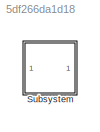
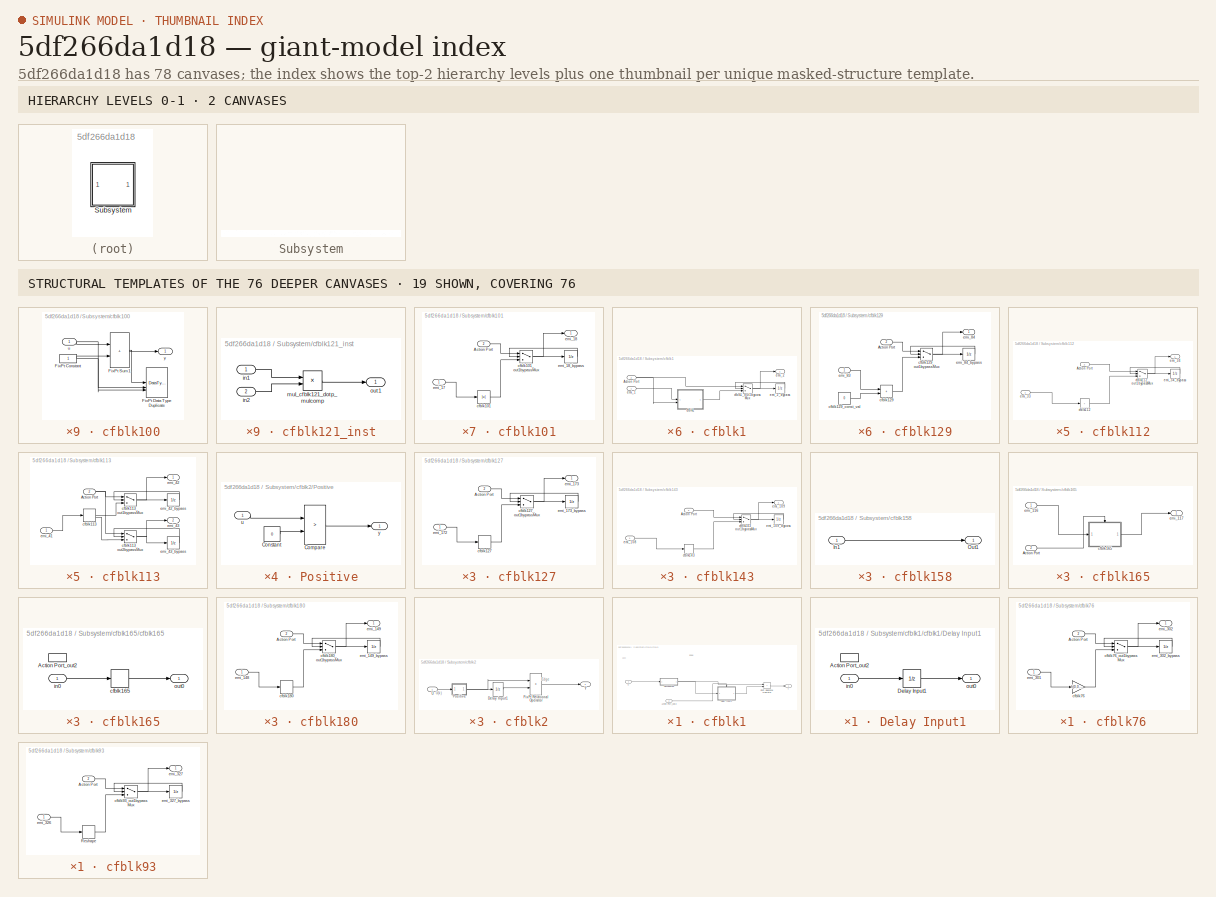
[diagram: thumbnail index - top-2 hierarchy levels (2 canvases) + 19 structural-template representatives of the remaining 76 canvases]
MODEL slx_5df266da1d18
KIND model
CONFIG AbsTol = auto
CONFIG EnableMultiTasking = off
CONFIG FixedStep = auto
CONFIG MaxStep = auto
CONFIG MinStep = auto
CONFIG RelTol = 1e-3
CONFIG SampleTimeConstraint = Unconstrained
CONFIG SolverName = VariableStepAuto
CONFIG StartTime = 0.0
CONFIG StopTime = 10.0
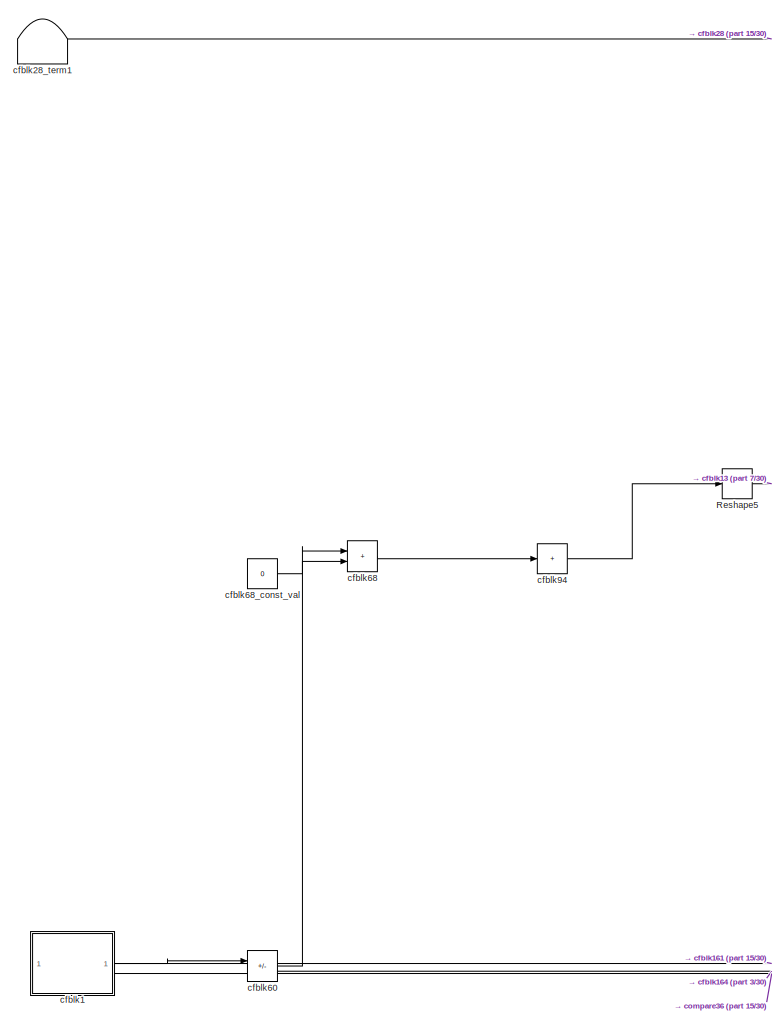
[diagram: Subsystem - part 1/30, left side, full height]
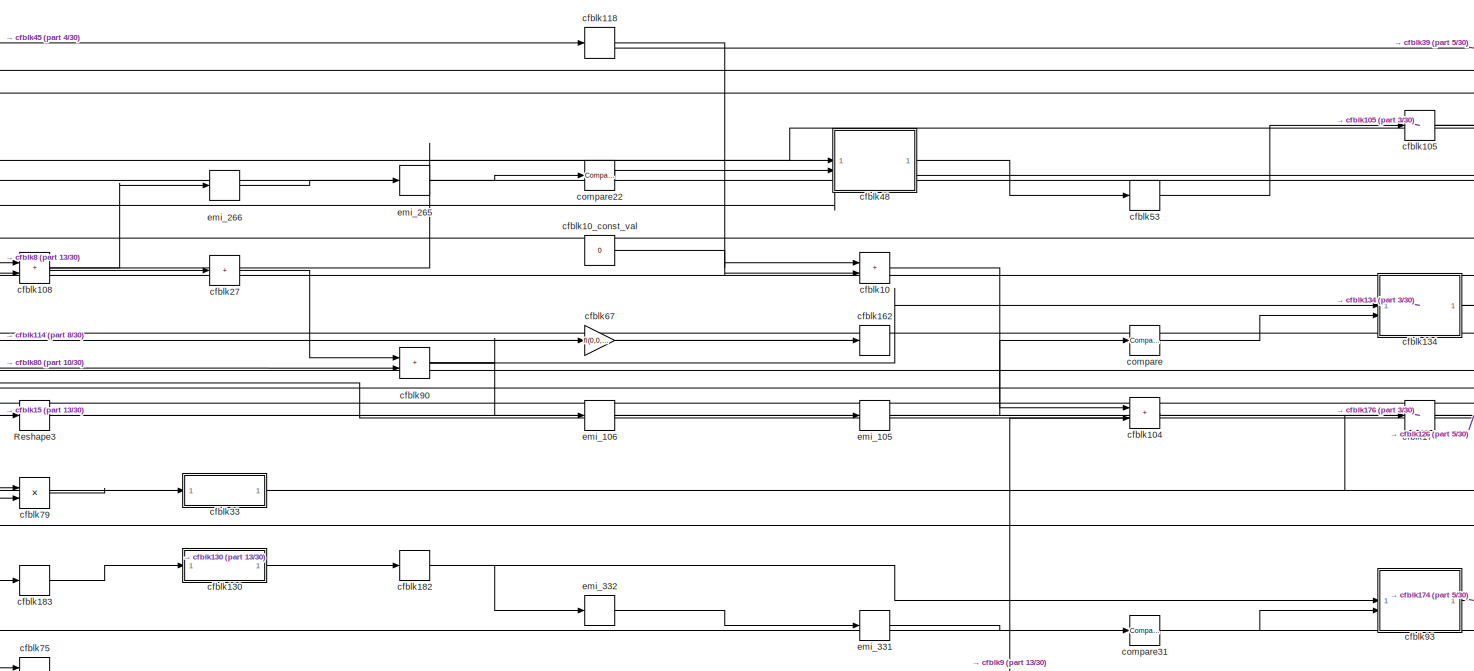
[diagram: Subsystem - part 2/30, central region]
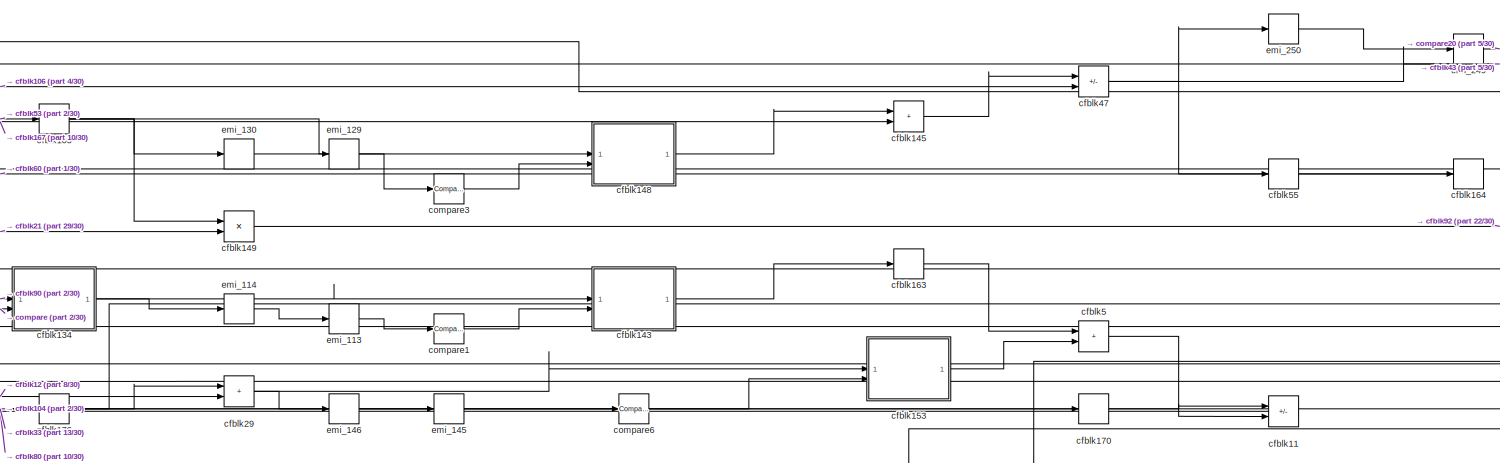
[diagram: Subsystem - part 3/30, top center region]
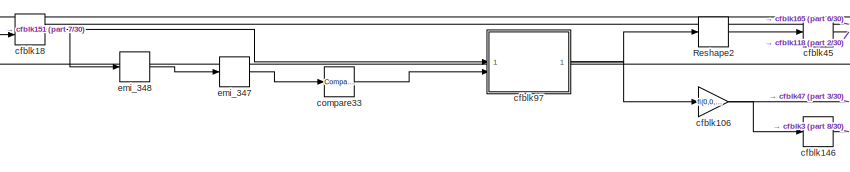
[diagram: Subsystem - part 4/30, top left region]
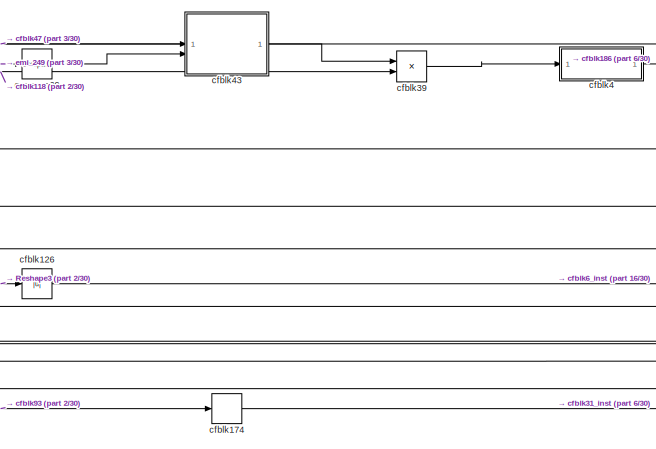
[diagram: Subsystem - part 5/30, top center region]
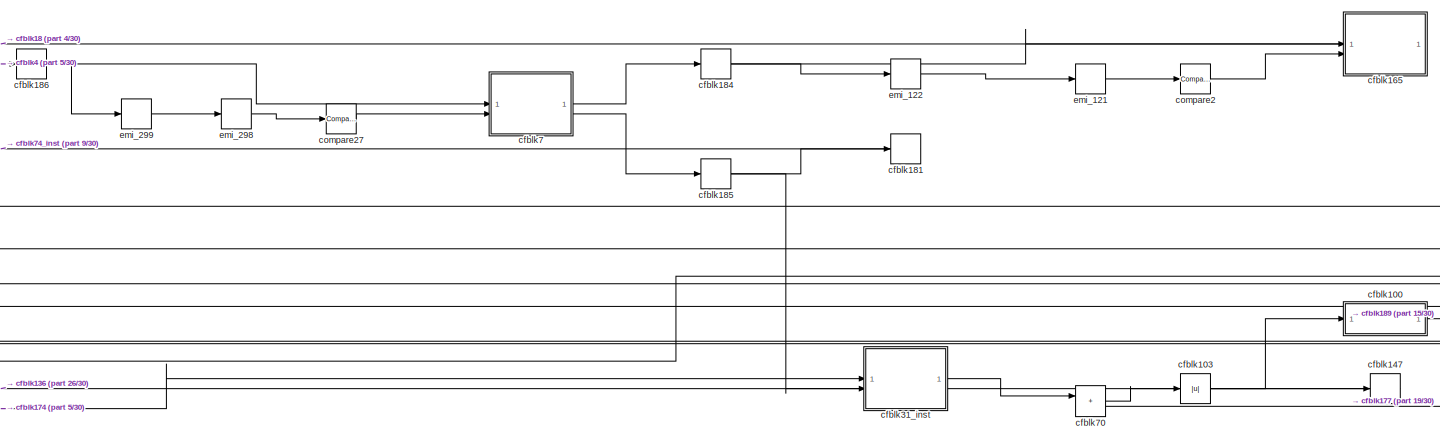
[diagram: Subsystem - part 6/30, top right region]
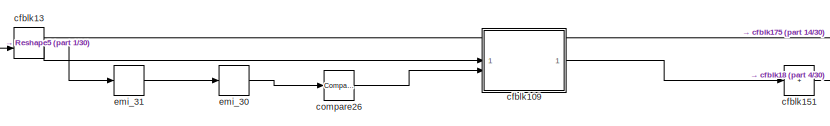
[diagram: Subsystem - part 7/30, top left region]
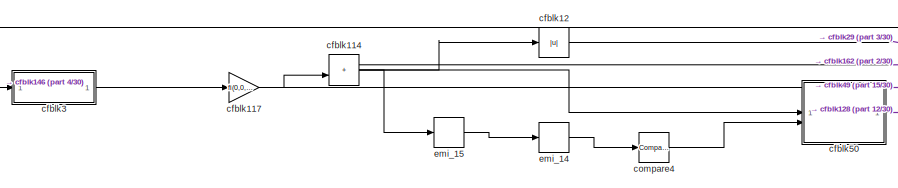
[diagram: Subsystem - part 8/30, top left region]
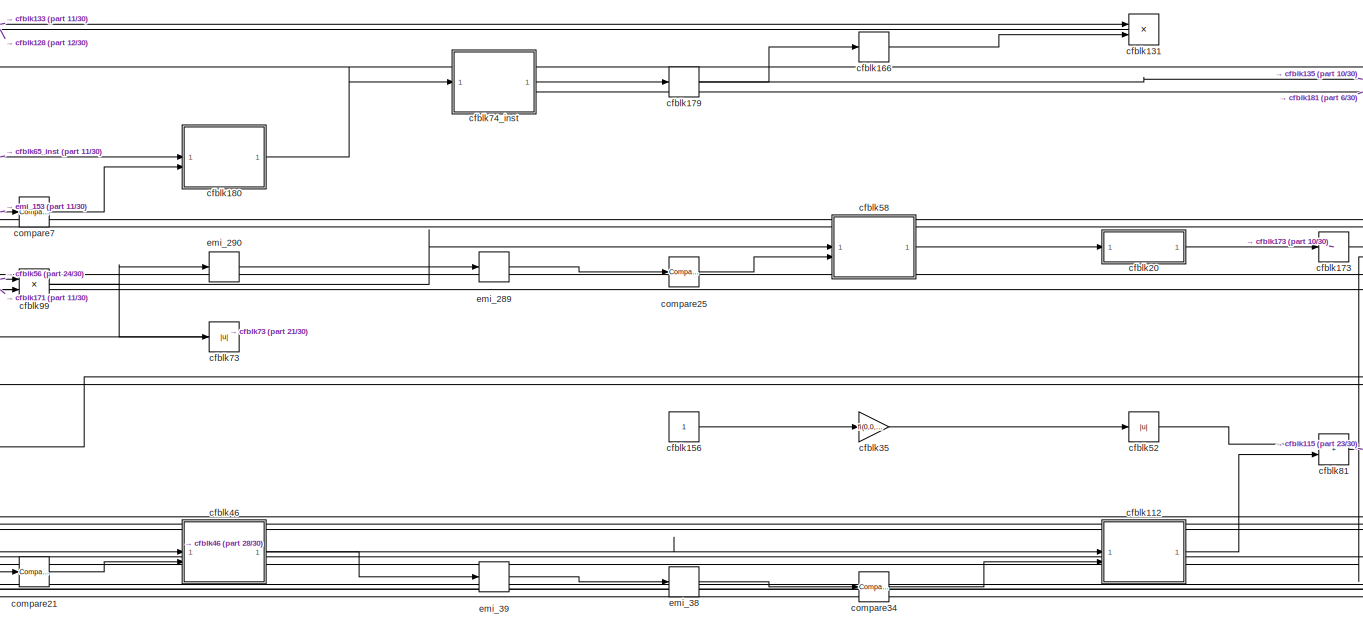
[diagram: Subsystem - part 9/30, central region]
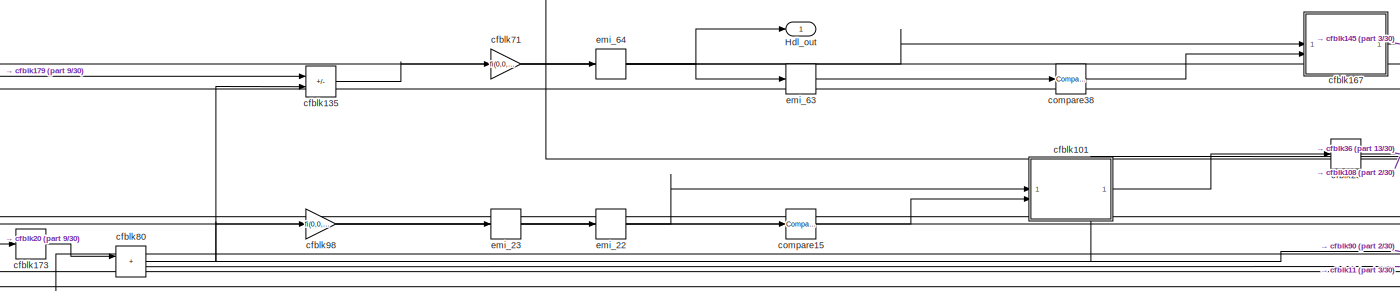
[diagram: Subsystem - part 10/30, top center region]
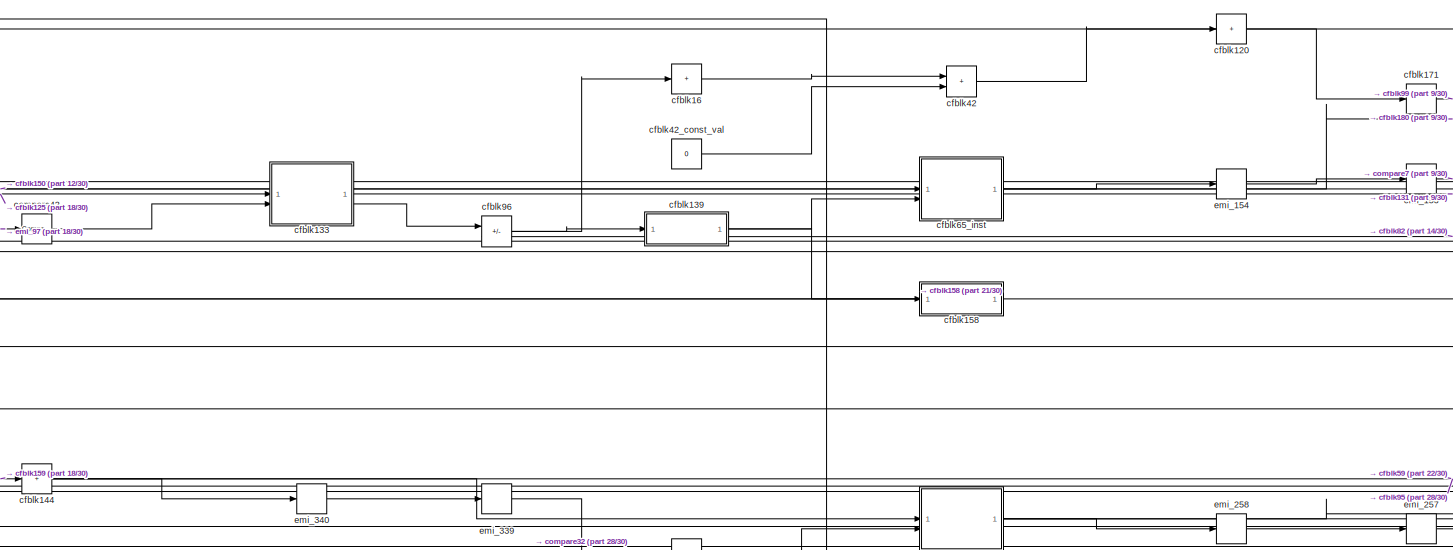
[diagram: Subsystem - part 11/30, central region]
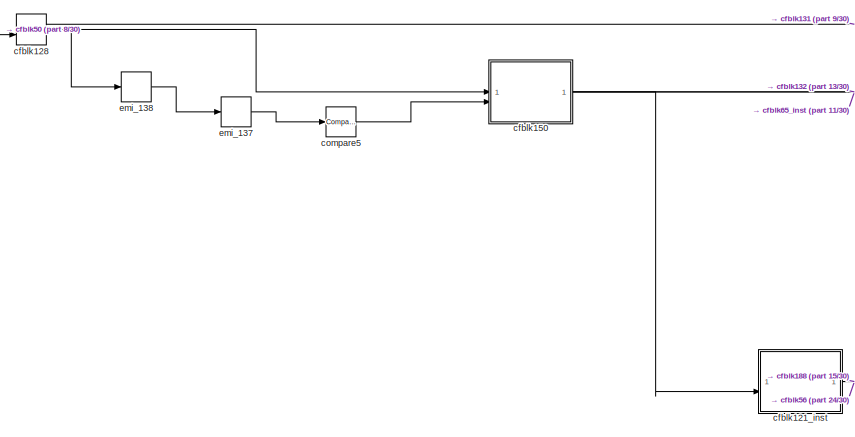
[diagram: Subsystem - part 12/30, middle left region]
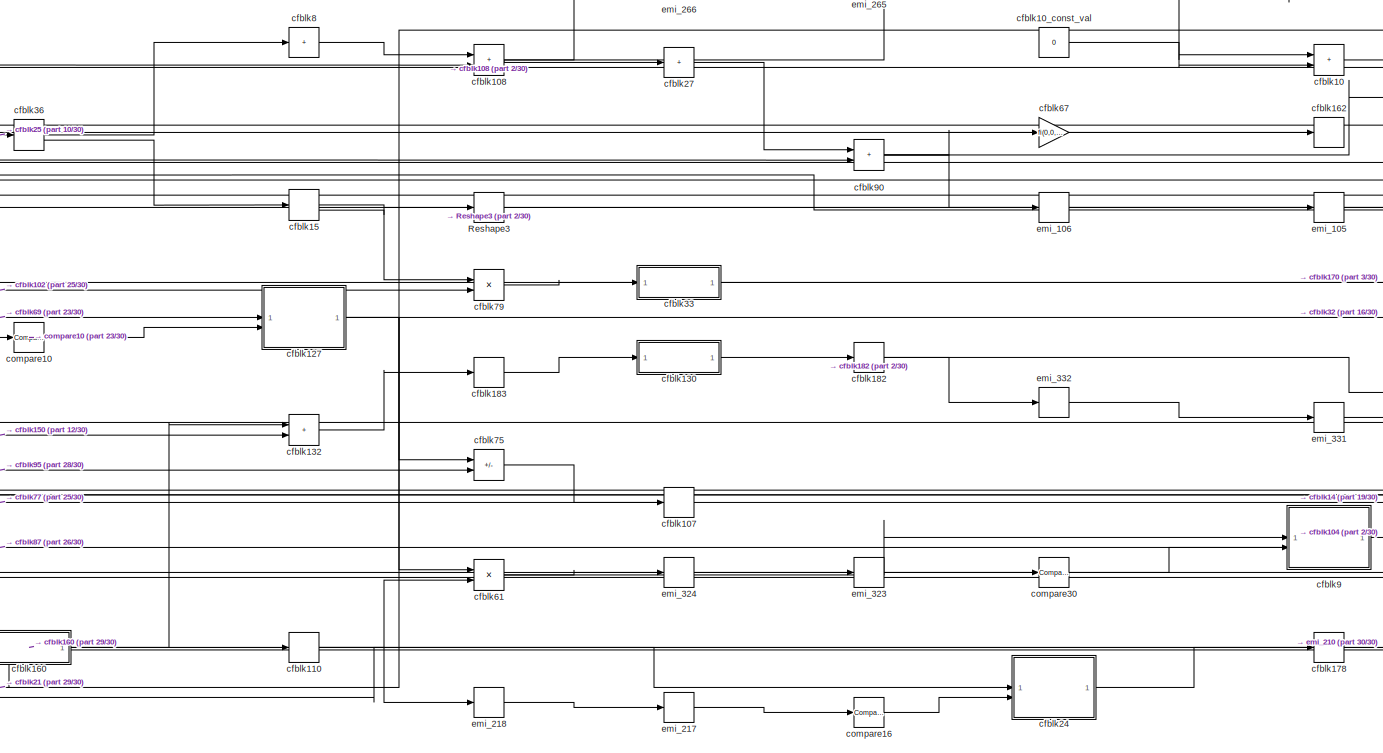
[diagram: Subsystem - part 13/30, central region]
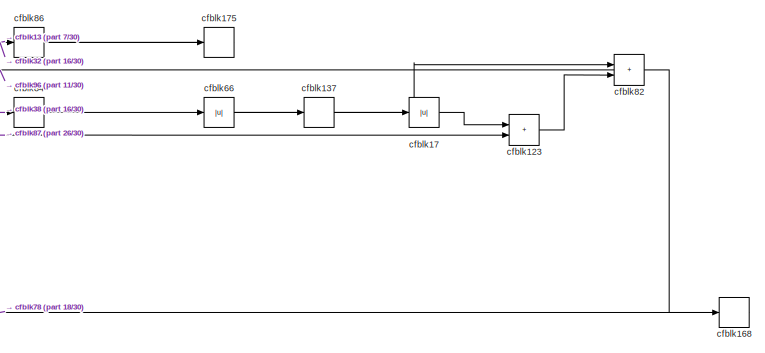
[diagram: Subsystem - part 14/30, middle right region]
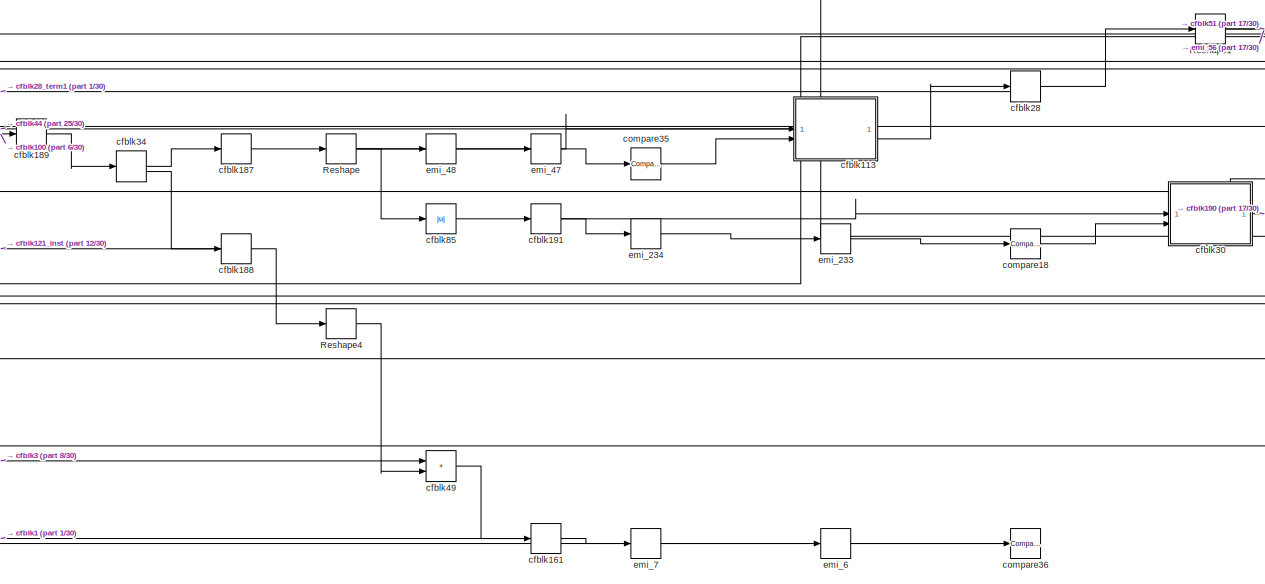
[diagram: Subsystem - part 15/30, middle right region]
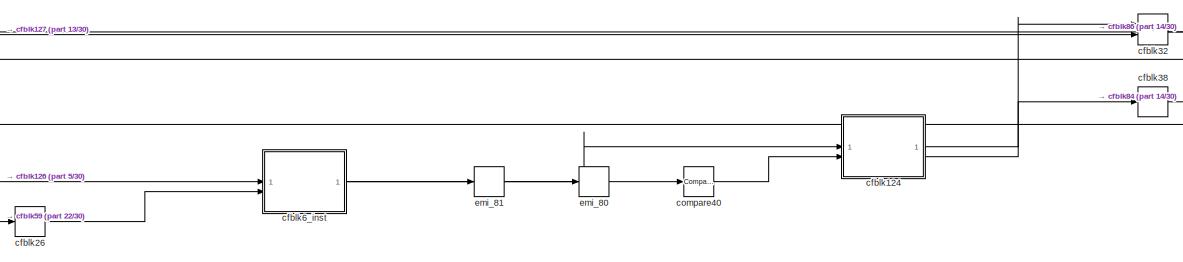
[diagram: Subsystem - part 16/30, middle right region]
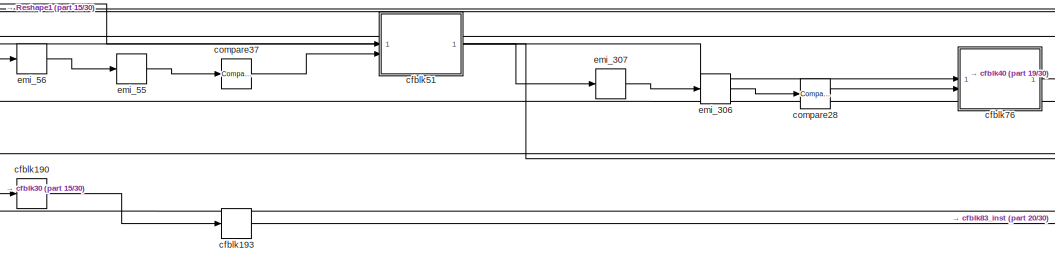
[diagram: Subsystem - part 17/30, middle right region]
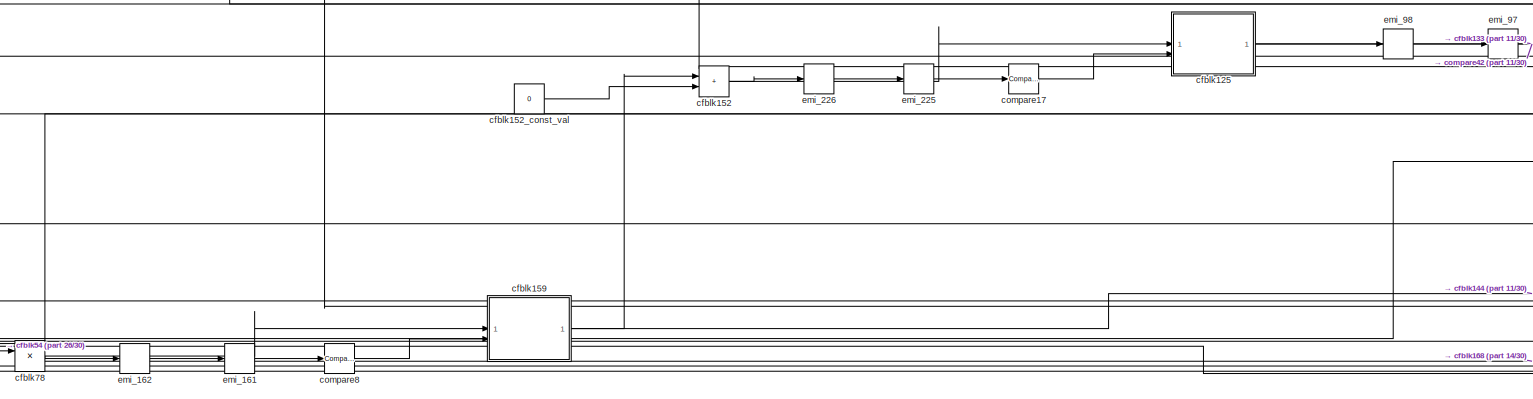
[diagram: Subsystem - part 18/30, central region]
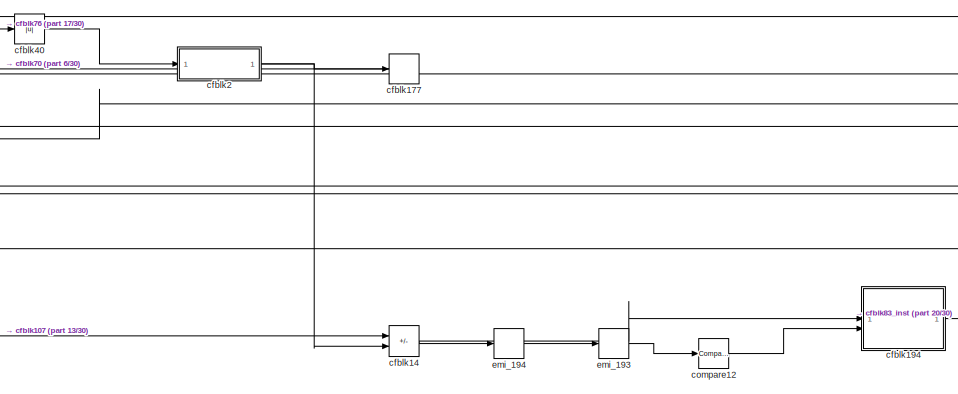
[diagram: Subsystem - part 19/30, middle right region]
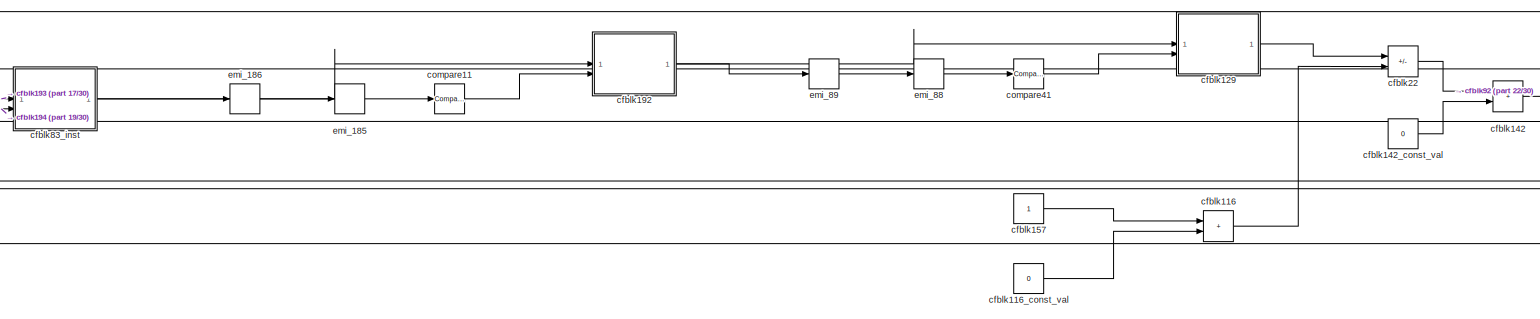
[diagram: Subsystem - part 20/30, middle right region]
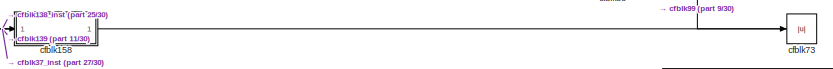
[diagram: Subsystem - part 21/30, central region]
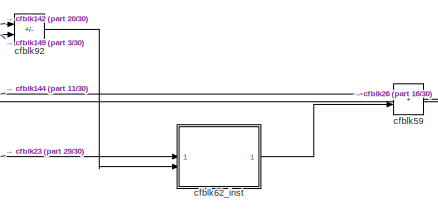
[diagram: Subsystem - part 22/30, middle right region]
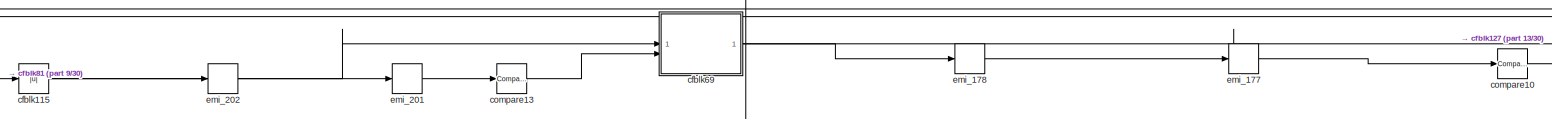
[diagram: Subsystem - part 23/30, central region]
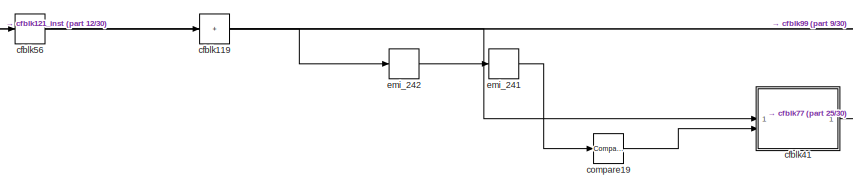
[diagram: Subsystem - part 24/30, middle left region]
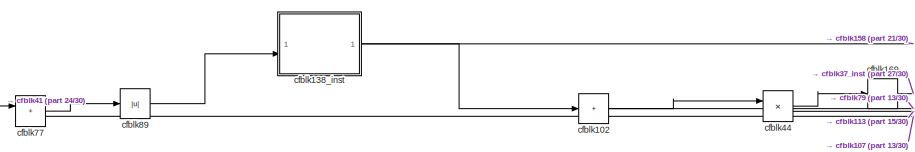
[diagram: Subsystem - part 25/30, middle left region]
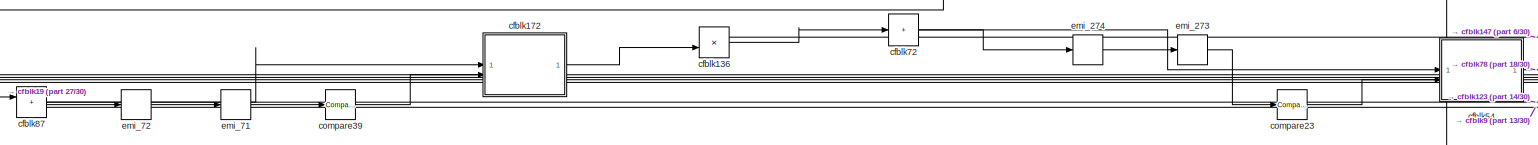
[diagram: Subsystem - part 26/30, bottom left region]
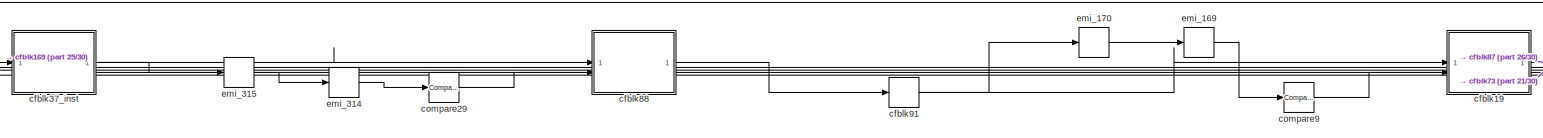
[diagram: Subsystem - part 27/30, bottom left region]
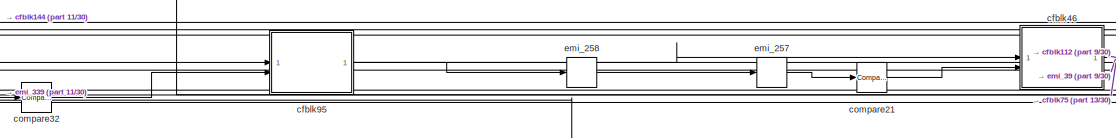
[diagram: Subsystem - part 28/30, bottom center region]
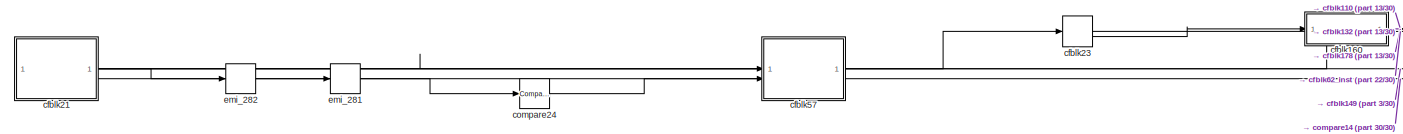
[diagram: Subsystem - part 29/30, bottom center region]
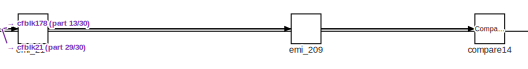
[diagram: Subsystem - part 30/30, bottom center region]
BLOCK [SubSystem] Subsystem
BLOCK [Outport] Subsystem/Hdl_out
  OutDataTypeStr = uint8
  SampleTime = 1
BLOCK [Reshape] Subsystem/Reshape
BLOCK [Reshape] Subsystem/Reshape1
BLOCK [Reshape] Subsystem/Reshape2
BLOCK [Reshape] Subsystem/Reshape3
BLOCK [Reshape] Subsystem/Reshape4
BLOCK [Reshape] Subsystem/Reshape5
BLOCK [SubSystem] Subsystem/cfblk1
BLOCK [Inport] Subsystem/cfblk1/Action Port
  OutDataTypeStr = boolean
  Port = 2
  SampleTime = 1
BLOCK [SubSystem] Subsystem/cfblk1/cfblk1
BLOCK [Inport] Subsystem/cfblk1/cfblk1/Action Port_out2
  OutDataTypeStr = boolean
  Port = 2
  SampleTime = 1
BLOCK [SubSystem] Subsystem/cfblk1/cfblk1/Delay Input1
  MinAlgLoopOccurrences = on
BLOCK [EnablePort] Subsystem/cfblk1/cfblk1/Delay Input1/Action Port_out2
  OutDataTypeStr = boolean
BLOCK [UnitDelay] Subsystem/cfblk1/cfblk1/Delay Input1/Delay Input1
  SampleTime = 1
BLOCK [Inport] Subsystem/cfblk1/cfblk1/Delay Input1/in0
  OutDataTypeStr = boolean
  SampleTime = 1
BLOCK [Outport] Subsystem/cfblk1/cfblk1/Delay Input1/out0
  InitialOutput = 0
  OutDataTypeStr = boolean
  SampleTime = 1
BLOCK [RelationalOperator] Subsystem/cfblk1/cfblk1/FixPt Relational Operator
  InputSameDT = off
  Operator = >
  OutDataTypeStr = fixdt(0,8,0)
  SampleTime = 1
BLOCK [SubSystem] Subsystem/cfblk1/cfblk1/Nonnegative
BLOCK [RelationalOperator] Subsystem/cfblk1/cfblk1/Nonnegative/Compare
  OutDataTypeStr = boolean
  SampleTime = 1
BLOCK [Constant] Subsystem/cfblk1/cfblk1/Nonnegative/Constant
  OutDataTypeStr = uint8
  SampleTime = 1
  Value = 0
BLOCK [Inport] Subsystem/cfblk1/cfblk1/Nonnegative/u
  OutDataTypeStr = uint8
  SampleTime = 1
BLOCK [Outport] Subsystem/cfblk1/cfblk1/Nonnegative/y
  InitialOutput = 0
  SampleTime = 1
BLOCK [Inport] Subsystem/cfblk1/cfblk1/U
  OutDataTypeStr = uint8
  SampleTime = 1
BLOCK [Outport] Subsystem/cfblk1/cfblk1/Y
  InitialOutput = 0
  SampleTime = 1
BLOCK [MultiPortSwitch] Subsystem/cfblk1/cfblk1_out1bypassMux
  DataPortOrder = Zero-based contiguous
  InputSameDT = off
  Inputs = 2
  OutDataTypeStr = uint8
  SampleTime = 1
  SaturateOnIntegerOverflow = off
  zeroidx = on
BLOCK [Inport] Subsystem/cfblk1/emi_1
  OutDataTypeStr = uint8
  PortDimensions = 1
  SampleTime = 1
BLOCK [Outport] Subsystem/cfblk1/emi_2
  InitialOutput = 0
  SampleTime = 1
BLOCK [UnitDelay] Subsystem/cfblk1/emi_2_bypass
  InitialCondition = fi(0,0,8,0,"hex","00")
  SampleTime = 1
BLOCK [Sum] Subsystem/cfblk10
  AccumDataTypeStr = uint8
  IconShape = rectangular
  OutDataTypeStr = uint8
  RndMeth = Nearest
  SampleTime = 1
BLOCK [SubSystem] Subsystem/cfblk100
BLOCK [Constant] Subsystem/cfblk100/FixPt Constant
  DisableCoverage = on
  OutDataTypeStr = Inherit: Inherit via back propagation
  SampleTime = -1
BLOCK [DataTypeDuplicate] Subsystem/cfblk100/FixPt Data Type Duplicate
  DisableCoverage = on
  NumInputPorts = 3
BLOCK [Sum] Subsystem/cfblk100/FixPt Sum1
  IconShape = rectangular
  InputSameDT = on
  LockScale = on
  OutDataTypeStr = Inherit: Inherit via back propagation
BLOCK [Inport] Subsystem/cfblk100/u
  OutDataTypeStr = uint8
  SampleTime = 1
BLOCK [Outport] Subsystem/cfblk100/y
  SampleTime = 1
BLOCK [SubSystem] Subsystem/cfblk101
BLOCK [Inport] Subsystem/cfblk101/Action Port
  OutDataTypeStr = boolean
  Port = 2
  SampleTime = 1
BLOCK [Abs] Subsystem/cfblk101/cfblk101
  OutDataTypeStr = uint8
  SampleTime = 1
  SaturateOnIntegerOverflow = off
BLOCK [MultiPortSwitch] Subsystem/cfblk101/cfblk101_out1bypassMux
  DataPortOrder = Zero-based contiguous
  InputSameDT = off
  Inputs = 2
  OutDataTypeStr = uint8
  SampleTime = 1
  SaturateOnIntegerOverflow = off
  zeroidx = on
BLOCK [Inport] Subsystem/cfblk101/emi_17
  OutDataTypeStr = uint8
  PortDimensions = 1
  SampleTime = 1
BLOCK [Outport] Subsystem/cfblk101/emi_18
  InitialOutput = 0
  SampleTime = 1
BLOCK [UnitDelay] Subsystem/cfblk101/emi_18_bypass
  InitialCondition = fi(0,0,8,0,"hex","00")
  SampleTime = 1
BLOCK [Sum] Subsystem/cfblk102
  IconShape = rectangular
  Inputs = +
  OutDataTypeStr = uint8
BLOCK [Abs] Subsystem/cfblk103
  OutDataTypeStr = uint8
  SampleTime = 1
  SaturateOnIntegerOverflow = off
BLOCK [Sum] Subsystem/cfblk104
  AccumDataTypeStr = uint8
  IconShape = rectangular
  OutDataTypeStr = uint8
  SampleTime = 1
BLOCK [MinMax] Subsystem/cfblk105
  OutDataTypeStr = uint8
BLOCK [Gain] Subsystem/cfblk106
  Gain = fi(0,0,8,7,"hex","80")
  OutDataTypeStr = uint8
  ParamDataTypeStr = fixdt(0, 8, 7)
  SampleTime = 1
BLOCK [MinMax] Subsystem/cfblk107
  OutDataTypeStr = uint8
BLOCK [Sum] Subsystem/cfblk108
  AccumDataTypeStr = uint8
  IconShape = rectangular
  OutDataTypeStr = uint8
  SampleTime = 1
BLOCK [SubSystem] Subsystem/cfblk109
BLOCK [Inport] Subsystem/cfblk109/Action Port
  OutDataTypeStr = boolean
  Port = 2
  SampleTime = 1
BLOCK [Abs] Subsystem/cfblk109/cfblk109
  OutDataTypeStr = uint8
  SampleTime = 1
  SaturateOnIntegerOverflow = off
BLOCK [MultiPortSwitch] Subsystem/cfblk109/cfblk109_out1bypassMux
  DataPortOrder = Zero-based contiguous
  InputSameDT = off
  Inputs = 2
  OutDataTypeStr = uint8
  SampleTime = 1
  SaturateOnIntegerOverflow = off
  zeroidx = on
BLOCK [Inport] Subsystem/cfblk109/emi_25
  OutDataTypeStr = uint8
  PortDimensions = 1
  SampleTime = 1
BLOCK [Outport] Subsystem/cfblk109/emi_26
  InitialOutput = 0
  SampleTime = 1
BLOCK [UnitDelay] Subsystem/cfblk109/emi_26_bypass
  InitialCondition = fi(0,0,8,0,"hex","00")
  SampleTime = 1
BLOCK [Constant] Subsystem/cfblk10_const_val
  OutDataTypeStr = uint8
  SampleTime = 1
  Value = 0
  VectorParams1D = off
BLOCK [Sum] Subsystem/cfblk11
  AccumDataTypeStr = uint8
  IconShape = rectangular
  Inputs = +-
  OutDataTypeStr = uint8
  SampleTime = 1
BLOCK [Signum] Subsystem/cfblk110
  SampleTime = 1
BLOCK [SubSystem] Subsystem/cfblk112
BLOCK [Inport] Subsystem/cfblk112/Action Port
  OutDataTypeStr = boolean
  Port = 2
  SampleTime = 1
BLOCK [Sum] Subsystem/cfblk112/cfblk112
  IconShape = rectangular
  Inputs = +
BLOCK [MultiPortSwitch] Subsystem/cfblk112/cfblk112_out1bypassMux
  DataPortOrder = Zero-based contiguous
  InputSameDT = off
  Inputs = 2
  OutDataTypeStr = uint8
  SampleTime = 1
  SaturateOnIntegerOverflow = off
  zeroidx = on
BLOCK [Inport] Subsystem/cfblk112/emi_33
  OutDataTypeStr = uint8
  PortDimensions = 1
  SampleTime = 1
BLOCK [Outport] Subsystem/cfblk112/emi_34
  InitialOutput = 0
  SampleTime = 1
BLOCK [UnitDelay] Subsystem/cfblk112/emi_34_bypass
  InitialCondition = fi(0,0,8,0,"hex","00")
  SampleTime = 1
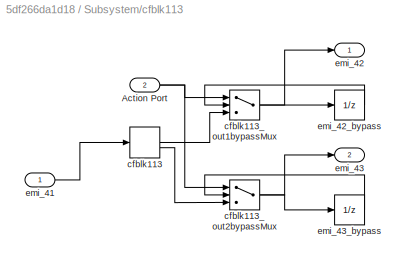
BLOCK [SubSystem] Subsystem/cfblk113
BLOCK [Inport] Subsystem/cfblk113/Action Port
  OutDataTypeStr = boolean
  Port = 2
  SampleTime = 1
BLOCK [ComplexToRealImag] Subsystem/cfblk113/cfblk113
  SampleTime = 1
BLOCK [MultiPortSwitch] Subsystem/cfblk113/cfblk113_out1bypassMux
  DataPortOrder = Zero-based contiguous
  InputSameDT = off
  Inputs = 2
  OutDataTypeStr = uint8
  SampleTime = 1
  SaturateOnIntegerOverflow = off
  zeroidx = on
BLOCK [MultiPortSwitch] Subsystem/cfblk113/cfblk113_out2bypassMux
  DataPortOrder = Zero-based contiguous
  InputSameDT = off
  Inputs = 2
  OutDataTypeStr = uint8
  SampleTime = 1
  SaturateOnIntegerOverflow = off
  zeroidx = on
BLOCK [Inport] Subsystem/cfblk113/emi_41
  OutDataTypeStr = uint8
  PortDimensions = 1
  SampleTime = 1
BLOCK [Outport] Subsystem/cfblk113/emi_42
  InitialOutput = 0
  SampleTime = 1
BLOCK [UnitDelay] Subsystem/cfblk113/emi_42_bypass
  InitialCondition = fi(0,0,8,0,"hex","00")
  SampleTime = 1
BLOCK [Outport] Subsystem/cfblk113/emi_43
  InitialOutput = 0
  Port = 2
  SampleTime = 1
BLOCK [UnitDelay] Subsystem/cfblk113/emi_43_bypass
  InitialCondition = fi(0,0,8,0,"hex","00")
  SampleTime = 1
BLOCK [Sum] Subsystem/cfblk114
  AccumDataTypeStr = uint8
  IconShape = rectangular
  OutDataTypeStr = uint8
  SampleTime = 1
BLOCK [Abs] Subsystem/cfblk115
  OutDataTypeStr = uint8
  SampleTime = 1
  SaturateOnIntegerOverflow = off
BLOCK [Sum] Subsystem/cfblk116
  AccumDataTypeStr = uint8
  IconShape = rectangular
  OutDataTypeStr = uint8
  RndMeth = Nearest
  SampleTime = 1
BLOCK [Constant] Subsystem/cfblk116_const_val
  OutDataTypeStr = uint8
  SampleTime = 1
  Value = 0
  VectorParams1D = off
BLOCK [Gain] Subsystem/cfblk117
  Gain = fi(0,0,8,7,"hex","80")
  OutDataTypeStr = uint8
  ParamDataTypeStr = fixdt(0, 8, 7)
  SampleTime = 1
BLOCK [ComplexToRealImag] Subsystem/cfblk118
  SampleTime = 1
BLOCK [Sum] Subsystem/cfblk119
  IconShape = rectangular
  Inputs = +
  OutDataTypeStr = uint8
BLOCK [Abs] Subsystem/cfblk12
  OutDataTypeStr = uint8
  SampleTime = 1
  SaturateOnIntegerOverflow = off
BLOCK [Sum] Subsystem/cfblk120
  IconShape = rectangular
  Inputs = +
  OutDataTypeStr = uint8
BLOCK [SubSystem] Subsystem/cfblk121_inst
BLOCK [Inport] Subsystem/cfblk121_inst/in1
  OutDataTypeStr = uint8
  SampleTime = 1
BLOCK [Inport] Subsystem/cfblk121_inst/in2
  OutDataTypeStr = uint8
  Port = 2
  SampleTime = 1
BLOCK [Product] Subsystem/cfblk121_inst/mul_cfblk121_dotp_mulcomp
  Inputs = **
  OutDataTypeStr = uint8
  SampleTime = 1
BLOCK [Outport] Subsystem/cfblk121_inst/out1
  OutDataTypeStr = uint8
  SampleTime = 1
BLOCK [Sum] Subsystem/cfblk123
  AccumDataTypeStr = uint8
  IconShape = rectangular
  OutDataTypeStr = uint8
  SampleTime = 1
BLOCK [SubSystem] Subsystem/cfblk124
BLOCK [Inport] Subsystem/cfblk124/Action Port
  OutDataTypeStr = boolean
  Port = 2
  SampleTime = 1
BLOCK [ComplexToRealImag] Subsystem/cfblk124/cfblk124
  SampleTime = 1
BLOCK [MultiPortSwitch] Subsystem/cfblk124/cfblk124_out1bypassMux
  DataPortOrder = Zero-based contiguous
  InputSameDT = off
  Inputs = 2
  OutDataTypeStr = uint8
  SampleTime = 1
  SaturateOnIntegerOverflow = off
  zeroidx = on
BLOCK [MultiPortSwitch] Subsystem/cfblk124/cfblk124_out2bypassMux
  DataPortOrder = Zero-based contiguous
  InputSameDT = off
  Inputs = 2
  OutDataTypeStr = uint8
  SampleTime = 1
  SaturateOnIntegerOverflow = off
  zeroidx = on
BLOCK [Inport] Subsystem/cfblk124/emi_74
  OutDataTypeStr = uint8
  PortDimensions = 1
  SampleTime = 1
BLOCK [Outport] Subsystem/cfblk124/emi_75
  InitialOutput = 0
  SampleTime = 1
BLOCK [UnitDelay] Subsystem/cfblk124/emi_75_bypass
  InitialCondition = fi(0,0,8,0,"hex","00")
  SampleTime = 1
BLOCK [Outport] Subsystem/cfblk124/emi_76
  InitialOutput = 0
  Port = 2
  SampleTime = 1
BLOCK [UnitDelay] Subsystem/cfblk124/emi_76_bypass
  InitialCondition = fi(0,0,8,0,"hex","00")
  SampleTime = 1
BLOCK [SubSystem] Subsystem/cfblk125
BLOCK [Inport] Subsystem/cfblk125/Action Port
  OutDataTypeStr = boolean
  Port = 2
  SampleTime = 1
BLOCK [Sum] Subsystem/cfblk125/cfblk125
  IconShape = rectangular
  Inputs = +
BLOCK [MultiPortSwitch] Subsystem/cfblk125/cfblk125_out1bypassMux
  DataPortOrder = Zero-based contiguous
  InputSameDT = off
  Inputs = 2
  OutDataTypeStr = uint8
  SampleTime = 1
  SaturateOnIntegerOverflow = off
  zeroidx = on
BLOCK [Inport] Subsystem/cfblk125/emi_220
  OutDataTypeStr = uint8
  PortDimensions = 1
  SampleTime = 1
BLOCK [Outport] Subsystem/cfblk125/emi_221
  InitialOutput = 0
  SampleTime = 1
BLOCK [UnitDelay] Subsystem/cfblk125/emi_221_bypass
  InitialCondition = fi(0,0,8,0,"hex","00")
  SampleTime = 1
BLOCK [Abs] Subsystem/cfblk126
  OutDataTypeStr = uint8
  SampleTime = 1
  SaturateOnIntegerOverflow = off
BLOCK [SubSystem] Subsystem/cfblk127
BLOCK [Inport] Subsystem/cfblk127/Action Port
  OutDataTypeStr = boolean
  Port = 2
  SampleTime = 1
BLOCK [Signum] Subsystem/cfblk127/cfblk127
  SampleTime = 1
BLOCK [MultiPortSwitch] Subsystem/cfblk127/cfblk127_out1bypassMux
  DataPortOrder = Zero-based contiguous
  InputSameDT = off
  Inputs = 2
  OutDataTypeStr = uint8
  SampleTime = 1
  SaturateOnIntegerOverflow = off
  zeroidx = on
BLOCK [Inport] Subsystem/cfblk127/emi_172
  OutDataTypeStr = uint8
  PortDimensions = 1
  SampleTime = 1
BLOCK [Outport] Subsystem/cfblk127/emi_173
  InitialOutput = 0
  SampleTime = 1
BLOCK [UnitDelay] Subsystem/cfblk127/emi_173_bypass
  InitialCondition = fi(0,0,8,0,"hex","00")
  SampleTime = 1
BLOCK [Sum] Subsystem/cfblk128
  AccumDataTypeStr = uint8
  IconShape = rectangular
  Inputs = +-
  OutDataTypeStr = uint8
  SampleTime = 1
BLOCK [SubSystem] Subsystem/cfblk129
BLOCK [Inport] Subsystem/cfblk129/Action Port
  OutDataTypeStr = boolean
  Port = 2
  SampleTime = 1
BLOCK [Sum] Subsystem/cfblk129/cfblk129
  AccumDataTypeStr = uint8
  IconShape = rectangular
  OutDataTypeStr = uint8
  RndMeth = Nearest
  SampleTime = 1
BLOCK [Constant] Subsystem/cfblk129/cfblk129_const_val
  OutDataTypeStr = uint8
  SampleTime = 1
  Value = 0
  VectorParams1D = off
BLOCK [MultiPortSwitch] Subsystem/cfblk129/cfblk129_out1bypassMux
  DataPortOrder = Zero-based contiguous
  InputSameDT = off
  Inputs = 2
  OutDataTypeStr = uint8
  SampleTime = 1
  SaturateOnIntegerOverflow = off
  zeroidx = on
BLOCK [Inport] Subsystem/cfblk129/emi_83
  OutDataTypeStr = uint8
  PortDimensions = 1
  SampleTime = 1
BLOCK [Outport] Subsystem/cfblk129/emi_84
  InitialOutput = 0
  SampleTime = 1
BLOCK [UnitDelay] Subsystem/cfblk129/emi_84_bypass
  InitialCondition = fi(0,0,8,0,"hex","00")
  SampleTime = 1
BLOCK [Sum] Subsystem/cfblk13
  AccumDataTypeStr = uint8
  IconShape = rectangular
  OutDataTypeStr = uint8
  SampleTime = 1
BLOCK [SubSystem] Subsystem/cfblk130
BLOCK [Constant] Subsystem/cfblk130/FixPt Constant
  DisableCoverage = on
  OutDataTypeStr = Inherit: Inherit via back propagation
  SampleTime = -1
BLOCK [DataTypeDuplicate] Subsystem/cfblk130/FixPt Data Type Duplicate
  DisableCoverage = on
  NumInputPorts = 3
BLOCK [Sum] Subsystem/cfblk130/FixPt Sum1
  IconShape = rectangular
  InputSameDT = on
  LockScale = on
  OutDataTypeStr = Inherit: Inherit via back propagation
BLOCK [Inport] Subsystem/cfblk130/u
  OutDataTypeStr = uint8
  SampleTime = 1
BLOCK [Outport] Subsystem/cfblk130/y
  SampleTime = 1
BLOCK [Product] Subsystem/cfblk131
  Inputs = */
  OutDataTypeStr = uint8
  RndMeth = Zero
  SampleTime = 1
  SaturateOnIntegerOverflow = on
BLOCK [Sum] Subsystem/cfblk132
  AccumDataTypeStr = uint8
  IconShape = rectangular
  OutDataTypeStr = uint8
  SampleTime = 1
BLOCK [SubSystem] Subsystem/cfblk133
BLOCK [Inport] Subsystem/cfblk133/Action Port
  OutDataTypeStr = boolean
  Port = 2
  SampleTime = 1
BLOCK [ComplexToRealImag] Subsystem/cfblk133/cfblk133
  SampleTime = 1
BLOCK [MultiPortSwitch] Subsystem/cfblk133/cfblk133_out1bypassMux
  DataPortOrder = Zero-based contiguous
  InputSameDT = off
  Inputs = 2
  OutDataTypeStr = uint8
  SampleTime = 1
  SaturateOnIntegerOverflow = off
  zeroidx = on
BLOCK [MultiPortSwitch] Subsystem/cfblk133/cfblk133_out2bypassMux
  DataPortOrder = Zero-based contiguous
  InputSameDT = off
  Inputs = 2
  OutDataTypeStr = uint8
  SampleTime = 1
  SaturateOnIntegerOverflow = off
  zeroidx = on
BLOCK [Inport] Subsystem/cfblk133/emi_91
  OutDataTypeStr = uint8
  PortDimensions = 1
  SampleTime = 1
BLOCK [Outport] Subsystem/cfblk133/emi_92
  InitialOutput = 0
  SampleTime = 1
BLOCK [UnitDelay] Subsystem/cfblk133/emi_92_bypass
  InitialCondition = fi(0,0,8,0,"hex","00")
  SampleTime = 1
BLOCK [Outport] Subsystem/cfblk133/emi_93
  InitialOutput = 0
  Port = 2
  SampleTime = 1
BLOCK [UnitDelay] Subsystem/cfblk133/emi_93_bypass
  InitialCondition = fi(0,0,8,0,"hex","00")
  SampleTime = 1
BLOCK [SubSystem] Subsystem/cfblk134
BLOCK [Inport] Subsystem/cfblk134/Action Port
  OutDataTypeStr = boolean
  Port = 2
  SampleTime = 1
BLOCK [Sum] Subsystem/cfblk134/cfblk134
  IconShape = rectangular
  Inputs = +
BLOCK [MultiPortSwitch] Subsystem/cfblk134/cfblk134_out1bypassMux
  DataPortOrder = Zero-based contiguous
  InputSameDT = off
  Inputs = 2
  OutDataTypeStr = uint8
  SampleTime = 1
  SaturateOnIntegerOverflow = off
  zeroidx = on
BLOCK [Inport] Subsystem/cfblk134/emi_100
  OutDataTypeStr = uint8
  PortDimensions = 1
  SampleTime = 1
BLOCK [Outport] Subsystem/cfblk134/emi_101
  InitialOutput = 0
  SampleTime = 1
BLOCK [UnitDelay] Subsystem/cfblk134/emi_101_bypass
  InitialCondition = fi(0,0,8,0,"hex","00")
  SampleTime = 1
BLOCK [Sum] Subsystem/cfblk135
  AccumDataTypeStr = uint8
  IconShape = rectangular
  Inputs = +-
  OutDataTypeStr = uint8
  SampleTime = 1
BLOCK [Product] Subsystem/cfblk136
  Inputs = */
  OutDataTypeStr = uint8
  RndMeth = Zero
  SampleTime = 1
  SaturateOnIntegerOverflow = on
BLOCK [Signum] Subsystem/cfblk137
  SampleTime = 1
BLOCK [SubSystem] Subsystem/cfblk138_inst
BLOCK [Inport] Subsystem/cfblk138_inst/in1
  OutDataTypeStr = uint8
  SampleTime = 1
BLOCK [Inport] Subsystem/cfblk138_inst/in2
  OutDataTypeStr = uint8
  Port = 2
  SampleTime = 1
BLOCK [Product] Subsystem/cfblk138_inst/mul_cfblk138_dotp_mulcomp
  Inputs = **
  OutDataTypeStr = uint8
  SampleTime = 1
BLOCK [Outport] Subsystem/cfblk138_inst/out1
  OutDataTypeStr = uint8
  SampleTime = 1
BLOCK [SubSystem] Subsystem/cfblk139
BLOCK [Constant] Subsystem/cfblk139/FixPt Constant
  DisableCoverage = on
  OutDataTypeStr = Inherit: Inherit via back propagation
  SampleTime = -1
BLOCK [DataTypeDuplicate] Subsystem/cfblk139/FixPt Data Type Duplicate
  DisableCoverage = on
  NumInputPorts = 3
BLOCK [Sum] Subsystem/cfblk139/FixPt Sum1
  IconShape = rectangular
  InputSameDT = on
  LockScale = on
  OutDataTypeStr = Inherit: Inherit via back propagation
BLOCK [Inport] Subsystem/cfblk139/u
  OutDataTypeStr = uint8
  SampleTime = 1
BLOCK [Outport] Subsystem/cfblk139/y
  SampleTime = 1
BLOCK [Sum] Subsystem/cfblk14
  AccumDataTypeStr = uint8
  IconShape = rectangular
  Inputs = +-
  OutDataTypeStr = uint8
  SampleTime = 1
BLOCK [Sum] Subsystem/cfblk142
  AccumDataTypeStr = uint8
  IconShape = rectangular
  OutDataTypeStr = uint8
  RndMeth = Nearest
  SampleTime = 1
BLOCK [Constant] Subsystem/cfblk142_const_val
  OutDataTypeStr = uint8
  SampleTime = 1
  Value = 0
  VectorParams1D = off
BLOCK [SubSystem] Subsystem/cfblk143
BLOCK [Inport] Subsystem/cfblk143/Action Port
  OutDataTypeStr = boolean
  Port = 2
  SampleTime = 1
BLOCK [MinMax] Subsystem/cfblk143/cfblk143
BLOCK [MultiPortSwitch] Subsystem/cfblk143/cfblk143_out1bypassMux
  DataPortOrder = Zero-based contiguous
  InputSameDT = off
  Inputs = 2
  OutDataTypeStr = uint8
  SampleTime = 1
  SaturateOnIntegerOverflow = off
  zeroidx = on
BLOCK [Inport] Subsystem/cfblk143/emi_108
  OutDataTypeStr = uint8
  PortDimensions = 1
  SampleTime = 1
BLOCK [Outport] Subsystem/cfblk143/emi_109
  InitialOutput = 0
  SampleTime = 1
BLOCK [UnitDelay] Subsystem/cfblk143/emi_109_bypass
  InitialCondition = fi(0,0,8,0,"hex","00")
  SampleTime = 1
BLOCK [Sum] Subsystem/cfblk144
  IconShape = rectangular
  Inputs = +
  OutDataTypeStr = uint8
BLOCK [Sum] Subsystem/cfblk145
  AccumDataTypeStr = uint8
  IconShape = rectangular
  OutDataTypeStr = uint8
  SampleTime = 1
BLOCK [Signum] Subsystem/cfblk146
  SampleTime = 1
BLOCK [Signum] Subsystem/cfblk147
  SampleTime = 1
BLOCK [SubSystem] Subsystem/cfblk148
BLOCK [Inport] Subsystem/cfblk148/Action Port
  OutDataTypeStr = boolean
  Port = 2
  SampleTime = 1
BLOCK [Signum] Subsystem/cfblk148/cfblk148
  SampleTime = 1
BLOCK [MultiPortSwitch] Subsystem/cfblk148/cfblk148_out1bypassMux
  DataPortOrder = Zero-based contiguous
  InputSameDT = off
  Inputs = 2
  OutDataTypeStr = uint8
  SampleTime = 1
  SaturateOnIntegerOverflow = off
  zeroidx = on
BLOCK [Inport] Subsystem/cfblk148/emi_124
  OutDataTypeStr = uint8
  PortDimensions = 1
  SampleTime = 1
BLOCK [Outport] Subsystem/cfblk148/emi_125
  InitialOutput = 0
  SampleTime = 1
BLOCK [UnitDelay] Subsystem/cfblk148/emi_125_bypass
  InitialCondition = fi(0,0,8,0,"hex","00")
  SampleTime = 1
BLOCK [Product] Subsystem/cfblk149
  Inputs = */
  OutDataTypeStr = uint8
  RndMeth = Zero
  SampleTime = 1
  SaturateOnIntegerOverflow = on
BLOCK [ComplexToRealImag] Subsystem/cfblk15
  SampleTime = 1
BLOCK [SubSystem] Subsystem/cfblk150
BLOCK [Inport] Subsystem/cfblk150/Action Port
  OutDataTypeStr = boolean
  Port = 2
  SampleTime = 1
BLOCK [SubSystem] Subsystem/cfblk150/cfblk150
BLOCK [Constant] Subsystem/cfblk150/cfblk150/FixPt Constant
  DisableCoverage = on
  OutDataTypeStr = Inherit: Inherit via back propagation
  SampleTime = -1
BLOCK [DataTypeDuplicate] Subsystem/cfblk150/cfblk150/FixPt Data Type Duplicate
  DisableCoverage = on
  NumInputPorts = 3
BLOCK [Sum] Subsystem/cfblk150/cfblk150/FixPt Sum1
  IconShape = rectangular
  InputSameDT = on
  LockScale = on
  OutDataTypeStr = Inherit: Inherit via back propagation
BLOCK [Inport] Subsystem/cfblk150/cfblk150/u
  OutDataTypeStr = uint8
  SampleTime = 1
BLOCK [Outport] Subsystem/cfblk150/cfblk150/y
  InitialOutput = 0
  SampleTime = 1
BLOCK [MultiPortSwitch] Subsystem/cfblk150/cfblk150_out1bypassMux
  DataPortOrder = Zero-based contiguous
  InputSameDT = off
  Inputs = 2
  OutDataTypeStr = uint8
  SampleTime = 1
  SaturateOnIntegerOverflow = off
  zeroidx = on
BLOCK [Inport] Subsystem/cfblk150/emi_132
  OutDataTypeStr = uint8
  PortDimensions = 1
  SampleTime = 1
BLOCK [Outport] Subsystem/cfblk150/emi_133
  InitialOutput = 0
  SampleTime = 1
BLOCK [UnitDelay] Subsystem/cfblk150/emi_133_bypass
  InitialCondition = fi(0,0,8,0,"hex","00")
  SampleTime = 1
BLOCK [Sum] Subsystem/cfblk151
  IconShape = rectangular
  Inputs = +
  OutDataTypeStr = uint8
BLOCK [Sum] Subsystem/cfblk152
  AccumDataTypeStr = uint8
  IconShape = rectangular
  OutDataTypeStr = uint8
  RndMeth = Nearest
  SampleTime = 1
BLOCK [Constant] Subsystem/cfblk152_const_val
  OutDataTypeStr = uint8
  SampleTime = 1
  Value = 0
  VectorParams1D = off
BLOCK [SubSystem] Subsystem/cfblk153
BLOCK [Inport] Subsystem/cfblk153/Action Port
  OutDataTypeStr = boolean
  Port = 2
  SampleTime = 1
BLOCK [Abs] Subsystem/cfblk153/cfblk153
  OutDataTypeStr = uint8
  SampleTime = 1
  SaturateOnIntegerOverflow = off
BLOCK [MultiPortSwitch] Subsystem/cfblk153/cfblk153_out1bypassMux
  DataPortOrder = Zero-based contiguous
  InputSameDT = off
  Inputs = 2
  OutDataTypeStr = uint8
  SampleTime = 1
  SaturateOnIntegerOverflow = off
  zeroidx = on
BLOCK [Inport] Subsystem/cfblk153/emi_140
  OutDataTypeStr = uint8
  PortDimensions = 1
  SampleTime = 1
BLOCK [Outport] Subsystem/cfblk153/emi_141
  InitialOutput = 0
  SampleTime = 1
BLOCK [UnitDelay] Subsystem/cfblk153/emi_141_bypass
  InitialCondition = fi(0,0,8,0,"hex","00")
  SampleTime = 1
BLOCK [Constant] Subsystem/cfblk156
  OutDataTypeStr = uint8
  SampleTime = 1
BLOCK [Constant] Subsystem/cfblk157
  OutDataTypeStr = uint8
  SampleTime = 1
BLOCK [SubSystem] Subsystem/cfblk158
BLOCK [Inport] Subsystem/cfblk158/In1
  OutDataTypeStr = uint8
  PortDimensions = 1
  SampleTime = 1
BLOCK [Outport] Subsystem/cfblk158/Out1
  InitialOutput = [0]
  SampleTime = 1
BLOCK [SubSystem] Subsystem/cfblk159
BLOCK [Inport] Subsystem/cfblk159/Action Port
  OutDataTypeStr = boolean
  Port = 2
  SampleTime = 1
BLOCK [SubSystem] Subsystem/cfblk159/cfblk159
BLOCK [Inport] Subsystem/cfblk159/cfblk159/In1
  OutDataTypeStr = uint8
  PortDimensions = 1
  SampleTime = 1
BLOCK [Outport] Subsystem/cfblk159/cfblk159/Out1
  InitialOutput = 0
  SampleTime = 1
BLOCK [MultiPortSwitch] Subsystem/cfblk159/cfblk159_out1bypassMux
  DataPortOrder = Zero-based contiguous
  InputSameDT = off
  Inputs = 2
  OutDataTypeStr = uint8
  SampleTime = 1
  SaturateOnIntegerOverflow = off
  zeroidx = on
BLOCK [Inport] Subsystem/cfblk159/emi_156
  OutDataTypeStr = uint8
  PortDimensions = 1
  SampleTime = 1
BLOCK [Outport] Subsystem/cfblk159/emi_157
  InitialOutput = 0
  SampleTime = 1
BLOCK [UnitDelay] Subsystem/cfblk159/emi_157_bypass
  InitialCondition = fi(0,0,8,0,"hex","00")
  SampleTime = 1
BLOCK [Sum] Subsystem/cfblk16
  IconShape = rectangular
  Inputs = +
  OutDataTypeStr = uint8
BLOCK [SubSystem] Subsystem/cfblk160
BLOCK [Inport] Subsystem/cfblk160/In1
  OutDataTypeStr = uint8
  PortDimensions = 1
  SampleTime = 1
BLOCK [Outport] Subsystem/cfblk160/Out1
  InitialOutput = [0]
  SampleTime = 1
BLOCK [Delay] Subsystem/cfblk161
  DelayLength = double(2)
  InitialCondition = 0
  InputPortMap = u0
  SampleTime = 1
BLOCK [Delay] Subsystem/cfblk162
  DelayLength = double(2)
  InitialCondition = 0
  InputPortMap = u0
  SampleTime = 1
BLOCK [Delay] Subsystem/cfblk163
  DelayLength = double(2)
  InitialCondition = 0
  InputPortMap = u0
  SampleTime = 1
BLOCK [Delay] Subsystem/cfblk164
  DelayLength = double(2)
  InitialCondition = 0
  InputPortMap = u0
  SampleTime = 1
BLOCK [SubSystem] Subsystem/cfblk165
BLOCK [Inport] Subsystem/cfblk165/Action Port
  OutDataTypeStr = boolean
  Port = 2
  SampleTime = 1
BLOCK [SubSystem] Subsystem/cfblk165/cfblk165
  MinAlgLoopOccurrences = on
BLOCK [EnablePort] Subsystem/cfblk165/cfblk165/Action Port_out2
  OutDataTypeStr = boolean
BLOCK [Delay] Subsystem/cfblk165/cfblk165/cfblk165
  DelayLength = double(2)
  InitialCondition = 0
  InputPortMap = u0
BLOCK [Inport] Subsystem/cfblk165/cfblk165/in0
  OutDataTypeStr = uint8
  SampleTime = 1
BLOCK [Outport] Subsystem/cfblk165/cfblk165/out0
  InitialOutput = 0
  OutDataTypeStr = uint8
  SampleTime = 1
BLOCK [Inport] Subsystem/cfblk165/emi_116
  OutDataTypeStr = uint8
  PortDimensions = 1
  SampleTime = 1
BLOCK [Outport] Subsystem/cfblk165/emi_117
  InitialOutput = 0
  SampleTime = 1
BLOCK [Delay] Subsystem/cfblk166
  DelayLength = double(2)
  InitialCondition = 0
  InputPortMap = u0
  SampleTime = 1
BLOCK [SubSystem] Subsystem/cfblk167
BLOCK [Inport] Subsystem/cfblk167/Action Port
  OutDataTypeStr = boolean
  Port = 2
  SampleTime = 1
BLOCK [SubSystem] Subsystem/cfblk167/cfblk167
  MinAlgLoopOccurrences = on
BLOCK [EnablePort] Subsystem/cfblk167/cfblk167/Action Port_out2
  OutDataTypeStr = boolean
BLOCK [Delay] Subsystem/cfblk167/cfblk167/cfblk167
  DelayLength = double(2)
  InitialCondition = 0
  InputPortMap = u0
BLOCK [Inport] Subsystem/cfblk167/cfblk167/in0
  OutDataTypeStr = uint8
  SampleTime = 1
BLOCK [Outport] Subsystem/cfblk167/cfblk167/out0
  InitialOutput = 0
  OutDataTypeStr = uint8
  SampleTime = 1
BLOCK [Inport] Subsystem/cfblk167/emi_58
  OutDataTypeStr = uint8
  PortDimensions = 1
  SampleTime = 1
BLOCK [Outport] Subsystem/cfblk167/emi_59
  InitialOutput = 0
  SampleTime = 1
BLOCK [Delay] Subsystem/cfblk168
  DelayLength = double(2)
  InitialCondition = 0
  InputPortMap = u0
  SampleTime = 1
BLOCK [Delay] Subsystem/cfblk169
  DelayLength = double(2)
  InitialCondition = 0
  InputPortMap = u0
  SampleTime = 1
BLOCK [Abs] Subsystem/cfblk17
  OutDataTypeStr = uint8
  SampleTime = 1
  SaturateOnIntegerOverflow = off
BLOCK [Delay] Subsystem/cfblk170
  DelayLength = double(2)
  InitialCondition = 0
  InputPortMap = u0
  SampleTime = 1
BLOCK [Delay] Subsystem/cfblk171
  DelayLength = double(2)
  InitialCondition = 0
  InputPortMap = u0
  SampleTime = 1
BLOCK [SubSystem] Subsystem/cfblk172
BLOCK [Inport] Subsystem/cfblk172/Action Port
  OutDataTypeStr = boolean
  Port = 2
  SampleTime = 1
BLOCK [SubSystem] Subsystem/cfblk172/cfblk172
  MinAlgLoopOccurrences = on
BLOCK [EnablePort] Subsystem/cfblk172/cfblk172/Action Port_out2
  OutDataTypeStr = boolean
BLOCK [Delay] Subsystem/cfblk172/cfblk172/cfblk172
  DelayLength = double(2)
  InitialCondition = 0
  InputPortMap = u0
BLOCK [Inport] Subsystem/cfblk172/cfblk172/in0
  OutDataTypeStr = uint8
  SampleTime = 1
BLOCK [Outport] Subsystem/cfblk172/cfblk172/out0
  InitialOutput = 0
  OutDataTypeStr = uint8
  SampleTime = 1
BLOCK [Inport] Subsystem/cfblk172/emi_66
  OutDataTypeStr = uint8
  PortDimensions = 1
  SampleTime = 1
BLOCK [Outport] Subsystem/cfblk172/emi_67
  InitialOutput = 0
  SampleTime = 1
BLOCK [Delay] Subsystem/cfblk173
  DelayLength = double(2)
  InitialCondition = 0
  InputPortMap = u0
  SampleTime = 1
BLOCK [Delay] Subsystem/cfblk174
  DelayLength = double(2)
  InitialCondition = 0
  InputPortMap = u0
  SampleTime = 1
BLOCK [Delay] Subsystem/cfblk175
  DelayLength = double(2)
  InitialCondition = 0
  InputPortMap = u0
  SampleTime = 1
BLOCK [Delay] Subsystem/cfblk176
  DelayLength = double(2)
  InitialCondition = 0
  InputPortMap = u0
  SampleTime = 1
BLOCK [Delay] Subsystem/cfblk177
  DelayLength = double(2)
  InitialCondition = 0
  InputPortMap = u0
  SampleTime = 1
BLOCK [Delay] Subsystem/cfblk178
  DelayLength = double(2)
  InitialCondition = 0
  InputPortMap = u0
  SampleTime = 1
BLOCK [DataTypeConversion] Subsystem/cfblk179
  OutDataTypeStr = fixdt(0,8,0)
BLOCK [Sum] Subsystem/cfblk18
  AccumDataTypeStr = uint8
  IconShape = rectangular
  Inputs = +-
  OutDataTypeStr = uint8
  SampleTime = 1
BLOCK [SubSystem] Subsystem/cfblk180
BLOCK [Inport] Subsystem/cfblk180/Action Port
  OutDataTypeStr = boolean
  Port = 2
  SampleTime = 1
BLOCK [DataTypeConversion] Subsystem/cfblk180/cfblk180
  OutDataTypeStr = fixdt(0,8,0)
BLOCK [MultiPortSwitch] Subsystem/cfblk180/cfblk180_out1bypassMux
  DataPortOrder = Zero-based contiguous
  InputSameDT = off
  Inputs = 2
  OutDataTypeStr = uint8
  SampleTime = 1
  SaturateOnIntegerOverflow = off
  zeroidx = on
BLOCK [Inport] Subsystem/cfblk180/emi_148
  OutDataTypeStr = uint8
  PortDimensions = 1
  SampleTime = 1
BLOCK [Outport] Subsystem/cfblk180/emi_149
  InitialOutput = 0
  SampleTime = 1
BLOCK [UnitDelay] Subsystem/cfblk180/emi_149_bypass
  InitialCondition = fi(0,0,8,0,"hex","00")
  SampleTime = 1
BLOCK [DataTypeConversion] Subsystem/cfblk181
  OutDataTypeStr = fixdt(0,8,0)
BLOCK [DataTypeConversion] Subsystem/cfblk182
  OutDataTypeStr = fixdt(0,8,0)
BLOCK [DataTypeConversion] Subsystem/cfblk183
  OutDataTypeStr = fixdt(0,8,0)
BLOCK [DataTypeConversion] Subsystem/cfblk184
  OutDataTypeStr = fixdt(0,8,0)
BLOCK [DataTypeConversion] Subsystem/cfblk185
  OutDataTypeStr = fixdt(0,8,0)
BLOCK [DataTypeConversion] Subsystem/cfblk186
  OutDataTypeStr = fixdt(0,8,0)
BLOCK [DataTypeConversion] Subsystem/cfblk187
  OutDataTypeStr = fixdt(0,8,0)
BLOCK [DataTypeConversion] Subsystem/cfblk188
  OutDataTypeStr = fixdt(0,8,0)
BLOCK [DataTypeConversion] Subsystem/cfblk189
  OutDataTypeStr = fixdt(0,8,0)
BLOCK [SubSystem] Subsystem/cfblk19
BLOCK [Inport] Subsystem/cfblk19/Action Port
  OutDataTypeStr = boolean
  Port = 2
  SampleTime = 1
BLOCK [Abs] Subsystem/cfblk19/cfblk19
  OutDataTypeStr = uint8
  SampleTime = 1
  SaturateOnIntegerOverflow = off
BLOCK [MultiPortSwitch] Subsystem/cfblk19/cfblk19_out1bypassMux
  DataPortOrder = Zero-based contiguous
  InputSameDT = off
  Inputs = 2
  OutDataTypeStr = uint8
  SampleTime = 1
  SaturateOnIntegerOverflow = off
  zeroidx = on
BLOCK [Inport] Subsystem/cfblk19/emi_164
  OutDataTypeStr = uint8
  PortDimensions = 1
  SampleTime = 1
BLOCK [Outport] Subsystem/cfblk19/emi_165
  InitialOutput = 0
  SampleTime = 1
BLOCK [UnitDelay] Subsystem/cfblk19/emi_165_bypass
  InitialCondition = fi(0,0,8,0,"hex","00")
  SampleTime = 1
BLOCK [DataTypeConversion] Subsystem/cfblk190
  OutDataTypeStr = fixdt(0,8,0)
BLOCK [DataTypeConversion] Subsystem/cfblk191
  OutDataTypeStr = fixdt(0,8,0)
BLOCK [SubSystem] Subsystem/cfblk192
BLOCK [Inport] Subsystem/cfblk192/Action Port
  OutDataTypeStr = boolean
  Port = 2
  SampleTime = 1
BLOCK [DataTypeConversion] Subsystem/cfblk192/cfblk192
  OutDataTypeStr = fixdt(0,8,0)
BLOCK [MultiPortSwitch] Subsystem/cfblk192/cfblk192_out1bypassMux
  DataPortOrder = Zero-based contiguous
  InputSameDT = off
  Inputs = 2
  OutDataTypeStr = uint8
  SampleTime = 1
  SaturateOnIntegerOverflow = off
  zeroidx = on
BLOCK [Inport] Subsystem/cfblk192/emi_180
  OutDataTypeStr = uint8
  PortDimensions = 1
  SampleTime = 1
BLOCK [Outport] Subsystem/cfblk192/emi_181
  InitialOutput = 0
  SampleTime = 1
BLOCK [UnitDelay] Subsystem/cfblk192/emi_181_bypass
  InitialCondition = fi(0,0,8,0,"hex","00")
  SampleTime = 1
BLOCK [DataTypeConversion] Subsystem/cfblk193
  OutDataTypeStr = fixdt(0,8,0)
BLOCK [SubSystem] Subsystem/cfblk194
BLOCK [Inport] Subsystem/cfblk194/Action Port
  OutDataTypeStr = boolean
  Port = 2
  SampleTime = 1
BLOCK [DataTypeConversion] Subsystem/cfblk194/cfblk194
  OutDataTypeStr = fixdt(0,8,0)
BLOCK [MultiPortSwitch] Subsystem/cfblk194/cfblk194_out1bypassMux
  DataPortOrder = Zero-based contiguous
  InputSameDT = off
  Inputs = 2
  OutDataTypeStr = uint8
  SampleTime = 1
  SaturateOnIntegerOverflow = off
  zeroidx = on
BLOCK [Inport] Subsystem/cfblk194/emi_188
  OutDataTypeStr = uint8
  PortDimensions = 1
  SampleTime = 1
BLOCK [Outport] Subsystem/cfblk194/emi_189
  InitialOutput = 0
  SampleTime = 1
BLOCK [UnitDelay] Subsystem/cfblk194/emi_189_bypass
  InitialCondition = fi(0,0,8,0,"hex","00")
  SampleTime = 1
BLOCK [SubSystem] Subsystem/cfblk2
BLOCK [UnitDelay] Subsystem/cfblk2/Delay Input1
  Description = Store in Global RAM
  DisableCoverage = on
  HasFrameUpgradeWarning = on
  InitialCondition = vinit
  SampleTime = -1
BLOCK [RelationalOperator] Subsystem/cfblk2/FixPt Relational Operator
  InputSameDT = off
  Operator = >
  OutDataTypeStr = fixdt(0, 8)
  ZeroCross = off
BLOCK [SubSystem] Subsystem/cfblk2/Positive
BLOCK [RelationalOperator] Subsystem/cfblk2/Positive/Compare
  Operator = >
  OutDataTypeStr = boolean
  ZeroCross = off
BLOCK [Constant] Subsystem/cfblk2/Positive/Constant
  DisableCoverage = on
  OutDataTypeStr = Inherit: Inherit via back propagation
  PreserveConstantTs = on
  SampleTime = -1
  Value = 0
BLOCK [Inport] Subsystem/cfblk2/Positive/u
  OutDataTypeStr = uint8
  SampleTime = 1
BLOCK [Outport] Subsystem/cfblk2/Positive/y
  SampleTime = 1
BLOCK [Inport] Subsystem/cfblk2/U
  OutDataTypeStr = uint8
  SampleTime = 1
BLOCK [Outport] Subsystem/cfblk2/Y
  SampleTime = 1
BLOCK [SubSystem] Subsystem/cfblk20
BLOCK [Constant] Subsystem/cfblk20/FixPt Constant
  DisableCoverage = on
  OutDataTypeStr = Inherit: Inherit via back propagation
  SampleTime = -1
BLOCK [DataTypeDuplicate] Subsystem/cfblk20/FixPt Data Type Duplicate
  DisableCoverage = on
  NumInputPorts = 3
BLOCK [Sum] Subsystem/cfblk20/FixPt Sum1
  IconShape = rectangular
  InputSameDT = on
  LockScale = on
  OutDataTypeStr = Inherit: Inherit via back propagation
BLOCK [Inport] Subsystem/cfblk20/u
  OutDataTypeStr = uint8
  SampleTime = 1
BLOCK [Outport] Subsystem/cfblk20/y
  SampleTime = 1
BLOCK [SubSystem] Subsystem/cfblk21
BLOCK [Inport] Subsystem/cfblk21/Action Port
  OutDataTypeStr = boolean
  Port = 2
  SampleTime = 1
BLOCK [Abs] Subsystem/cfblk21/cfblk21
  OutDataTypeStr = uint8
  SampleTime = 1
  SaturateOnIntegerOverflow = off
BLOCK [MultiPortSwitch] Subsystem/cfblk21/cfblk21_out1bypassMux
  DataPortOrder = Zero-based contiguous
  InputSameDT = off
  Inputs = 2
  OutDataTypeStr = uint8
  SampleTime = 1
  SaturateOnIntegerOverflow = off
  zeroidx = on
BLOCK [Inport] Subsystem/cfblk21/emi_204
  OutDataTypeStr = uint8
  PortDimensions = 1
  SampleTime = 1
BLOCK [Outport] Subsystem/cfblk21/emi_205
  InitialOutput = 0
  SampleTime = 1
BLOCK [UnitDelay] Subsystem/cfblk21/emi_205_bypass
  InitialCondition = fi(0,0,8,0,"hex","00")
  SampleTime = 1
BLOCK [Sum] Subsystem/cfblk22
  AccumDataTypeStr = uint8
  IconShape = rectangular
  Inputs = +-
  OutDataTypeStr = uint8
  SampleTime = 1
BLOCK [ComplexToRealImag] Subsystem/cfblk23
  SampleTime = 1
BLOCK [SubSystem] Subsystem/cfblk24
BLOCK [Inport] Subsystem/cfblk24/Action Port
  OutDataTypeStr = boolean
  Port = 2
  SampleTime = 1
BLOCK [Abs] Subsystem/cfblk24/cfblk24
  OutDataTypeStr = uint8
  SampleTime = 1
  SaturateOnIntegerOverflow = off
BLOCK [MultiPortSwitch] Subsystem/cfblk24/cfblk24_out1bypassMux
  DataPortOrder = Zero-based contiguous
  InputSameDT = off
  Inputs = 2
  OutDataTypeStr = uint8
  SampleTime = 1
  SaturateOnIntegerOverflow = off
  zeroidx = on
BLOCK [Inport] Subsystem/cfblk24/emi_212
  OutDataTypeStr = uint8
  PortDimensions = 1
  SampleTime = 1
BLOCK [Outport] Subsystem/cfblk24/emi_213
  InitialOutput = 0
  SampleTime = 1
BLOCK [UnitDelay] Subsystem/cfblk24/emi_213_bypass
  InitialCondition = fi(0,0,8,0,"hex","00")
  SampleTime = 1
BLOCK [MinMax] Subsystem/cfblk25
  OutDataTypeStr = uint8
BLOCK [MinMax] Subsystem/cfblk26
  OutDataTypeStr = uint8
BLOCK [Sum] Subsystem/cfblk27
  IconShape = rectangular
  Inputs = +
  OutDataTypeStr = uint8
BLOCK [ComplexToRealImag] Subsystem/cfblk28
  SampleTime = 1
BLOCK [Terminator] Subsystem/cfblk28_term1
BLOCK [Sum] Subsystem/cfblk29
  AccumDataTypeStr = uint8
  IconShape = rectangular
  OutDataTypeStr = uint8
  SampleTime = 1
BLOCK [SubSystem] Subsystem/cfblk3
BLOCK [UnitDelay] Subsystem/cfblk3/Delay Input1
  Description = Store in Global RAM
  DisableCoverage = on
  HasFrameUpgradeWarning = on
  InitialCondition = vinit
  SampleTime = -1
BLOCK [RelationalOperator] Subsystem/cfblk3/FixPt Relational Operator
  InputSameDT = off
  Operator = >
  OutDataTypeStr = fixdt(0, 8)
  ZeroCross = off
BLOCK [SubSystem] Subsystem/cfblk3/Nonnegative
BLOCK [RelationalOperator] Subsystem/cfblk3/Nonnegative/Compare
  OutDataTypeStr = boolean
  ZeroCross = off
BLOCK [Constant] Subsystem/cfblk3/Nonnegative/Constant
  DisableCoverage = on
  OutDataTypeStr = Inherit: Inherit via back propagation
  PreserveConstantTs = on
  SampleTime = -1
  Value = 0
BLOCK [Inport] Subsystem/cfblk3/Nonnegative/u
  OutDataTypeStr = uint8
  SampleTime = 1
BLOCK [Outport] Subsystem/cfblk3/Nonnegative/y
  SampleTime = 1
BLOCK [Inport] Subsystem/cfblk3/U
  OutDataTypeStr = uint8
  SampleTime = 1
BLOCK [Outport] Subsystem/cfblk3/Y
  SampleTime = 1
BLOCK [SubSystem] Subsystem/cfblk30
BLOCK [Inport] Subsystem/cfblk30/Action Port
  OutDataTypeStr = boolean
  Port = 2
  SampleTime = 1
BLOCK [SubSystem] Subsystem/cfblk30/cfblk30
BLOCK [Constant] Subsystem/cfblk30/cfblk30/FixPt Constant
  DisableCoverage = on
  OutDataTypeStr = Inherit: Inherit via back propagation
  SampleTime = -1
BLOCK [DataTypeDuplicate] Subsystem/cfblk30/cfblk30/FixPt Data Type Duplicate
  DisableCoverage = on
  NumInputPorts = 3
BLOCK [Sum] Subsystem/cfblk30/cfblk30/FixPt Sum1
  IconShape = rectangular
  InputSameDT = on
  LockScale = on
  OutDataTypeStr = Inherit: Inherit via back propagation
BLOCK [Inport] Subsystem/cfblk30/cfblk30/u
  OutDataTypeStr = uint8
  SampleTime = 1
BLOCK [Outport] Subsystem/cfblk30/cfblk30/y
  InitialOutput = 0
  SampleTime = 1
BLOCK [MultiPortSwitch] Subsystem/cfblk30/cfblk30_out1bypassMux
  DataPortOrder = Zero-based contiguous
  InputSameDT = off
  Inputs = 2
  OutDataTypeStr = uint8
  SampleTime = 1
  SaturateOnIntegerOverflow = off
  zeroidx = on
BLOCK [Inport] Subsystem/cfblk30/emi_228
  OutDataTypeStr = uint8
  PortDimensions = 1
  SampleTime = 1
BLOCK [Outport] Subsystem/cfblk30/emi_229
  InitialOutput = 0
  SampleTime = 1
BLOCK [UnitDelay] Subsystem/cfblk30/emi_229_bypass
  InitialCondition = fi(0,0,8,0,"hex","00")
  SampleTime = 1
BLOCK [SubSystem] Subsystem/cfblk31_inst
BLOCK [Inport] Subsystem/cfblk31_inst/in1
  OutDataTypeStr = uint8
  SampleTime = 1
BLOCK [Inport] Subsystem/cfblk31_inst/in2
  OutDataTypeStr = uint8
  Port = 2
  SampleTime = 1
BLOCK [Product] Subsystem/cfblk31_inst/mul_cfblk31_dotp_mulcomp
  Inputs = **
  OutDataTypeStr = uint8
  SampleTime = 1
BLOCK [Outport] Subsystem/cfblk31_inst/out1
  OutDataTypeStr = uint8
  SampleTime = 1
BLOCK [Sum] Subsystem/cfblk32
  AccumDataTypeStr = uint8
  IconShape = rectangular
  OutDataTypeStr = uint8
  SampleTime = 1
BLOCK [SubSystem] Subsystem/cfblk33
BLOCK [Constant] Subsystem/cfblk33/FixPt Constant
  DisableCoverage = on
  OutDataTypeStr = Inherit: Inherit via back propagation
  SampleTime = -1
BLOCK [DataTypeDuplicate] Subsystem/cfblk33/FixPt Data Type Duplicate
  DisableCoverage = on
  NumInputPorts = 3
BLOCK [Sum] Subsystem/cfblk33/FixPt Sum1
  IconShape = rectangular
  InputSameDT = on
  LockScale = on
  OutDataTypeStr = Inherit: Inherit via back propagation
BLOCK [Inport] Subsystem/cfblk33/u
  OutDataTypeStr = uint8
  SampleTime = 1
BLOCK [Outport] Subsystem/cfblk33/y
  SampleTime = 1
BLOCK [ComplexToRealImag] Subsystem/cfblk34
  SampleTime = 1
BLOCK [Gain] Subsystem/cfblk35
  Gain = fi(0,0,8,7,"hex","80")
  OutDataTypeStr = uint8
  ParamDataTypeStr = fixdt(0, 8, 7)
  SampleTime = 1
BLOCK [ComplexToRealImag] Subsystem/cfblk36
  SampleTime = 1
BLOCK [SubSystem] Subsystem/cfblk37_inst
BLOCK [Inport] Subsystem/cfblk37_inst/in1
  OutDataTypeStr = uint8
  SampleTime = 1
BLOCK [Inport] Subsystem/cfblk37_inst/in2
  OutDataTypeStr = uint8
  Port = 2
  SampleTime = 1
BLOCK [Product] Subsystem/cfblk37_inst/mul_cfblk37_dotp_mulcomp
  Inputs = **
  OutDataTypeStr = uint8
  SampleTime = 1
BLOCK [Outport] Subsystem/cfblk37_inst/out1
  OutDataTypeStr = uint8
  SampleTime = 1
BLOCK [MinMax] Subsystem/cfblk38
  OutDataTypeStr = uint8
BLOCK [Product] Subsystem/cfblk39
  Inputs = */
  OutDataTypeStr = uint8
  RndMeth = Zero
  SampleTime = 1
  SaturateOnIntegerOverflow = on
BLOCK [SubSystem] Subsystem/cfblk4
BLOCK [UnitDelay] Subsystem/cfblk4/Delay Input1
  Description = Store in Global RAM
  DisableCoverage = on
  HasFrameUpgradeWarning = on
  InitialCondition = vinit
  SampleTime = -1
BLOCK [RelationalOperator] Subsystem/cfblk4/FixPt Relational Operator
  InputSameDT = off
  Operator = >
  OutDataTypeStr = fixdt(0, 8)
  ZeroCross = off
BLOCK [SubSystem] Subsystem/cfblk4/Nonpositive
BLOCK [RelationalOperator] Subsystem/cfblk4/Nonpositive/Compare
  Operator = <=
  OutDataTypeStr = boolean
  ZeroCross = off
BLOCK [Constant] Subsystem/cfblk4/Nonpositive/Constant
  DisableCoverage = on
  OutDataTypeStr = Inherit: Inherit via back propagation
  PreserveConstantTs = on
  SampleTime = -1
  Value = 0
BLOCK [Inport] Subsystem/cfblk4/Nonpositive/u
  OutDataTypeStr = uint8
  SampleTime = 1
BLOCK [Outport] Subsystem/cfblk4/Nonpositive/y
  SampleTime = 1
BLOCK [Inport] Subsystem/cfblk4/U
  OutDataTypeStr = uint8
  SampleTime = 1
BLOCK [Outport] Subsystem/cfblk4/Y
  SampleTime = 1
BLOCK [Abs] Subsystem/cfblk40
  OutDataTypeStr = uint8
  SampleTime = 1
  SaturateOnIntegerOverflow = off
BLOCK [SubSystem] Subsystem/cfblk41
BLOCK [Inport] Subsystem/cfblk41/Action Port
  OutDataTypeStr = boolean
  Port = 2
  SampleTime = 1
BLOCK [MinMax] Subsystem/cfblk41/cfblk41
BLOCK [MultiPortSwitch] Subsystem/cfblk41/cfblk41_out1bypassMux
  DataPortOrder = Zero-based contiguous
  InputSameDT = off
  Inputs = 2
  OutDataTypeStr = uint8
  SampleTime = 1
  SaturateOnIntegerOverflow = off
  zeroidx = on
BLOCK [Inport] Subsystem/cfblk41/emi_236
  OutDataTypeStr = uint8
  PortDimensions = 1
  SampleTime = 1
BLOCK [Outport] Subsystem/cfblk41/emi_237
  InitialOutput = 0
  SampleTime = 1
BLOCK [UnitDelay] Subsystem/cfblk41/emi_237_bypass
  InitialCondition = fi(0,0,8,0,"hex","00")
  SampleTime = 1
BLOCK [Sum] Subsystem/cfblk42
  AccumDataTypeStr = uint8
  IconShape = rectangular
  OutDataTypeStr = uint8
  RndMeth = Nearest
  SampleTime = 1
BLOCK [Constant] Subsystem/cfblk42_const_val
  OutDataTypeStr = uint8
  SampleTime = 1
  Value = 0
  VectorParams1D = off
BLOCK [SubSystem] Subsystem/cfblk43
BLOCK [Inport] Subsystem/cfblk43/Action Port
  OutDataTypeStr = boolean
  Port = 2
  SampleTime = 1
BLOCK [Sum] Subsystem/cfblk43/cfblk43
  AccumDataTypeStr = uint8
  IconShape = rectangular
  OutDataTypeStr = uint8
  RndMeth = Nearest
  SampleTime = 1
BLOCK [Constant] Subsystem/cfblk43/cfblk43_const_val
  OutDataTypeStr = uint8
  SampleTime = 1
  Value = 0
  VectorParams1D = off
BLOCK [MultiPortSwitch] Subsystem/cfblk43/cfblk43_out1bypassMux
  DataPortOrder = Zero-based contiguous
  InputSameDT = off
  Inputs = 2
  OutDataTypeStr = uint8
  SampleTime = 1
  SaturateOnIntegerOverflow = off
  zeroidx = on
BLOCK [Inport] Subsystem/cfblk43/emi_244
  OutDataTypeStr = uint8
  PortDimensions = 1
  SampleTime = 1
BLOCK [Outport] Subsystem/cfblk43/emi_245
  InitialOutput = 0
  SampleTime = 1
BLOCK [UnitDelay] Subsystem/cfblk43/emi_245_bypass
  InitialCondition = fi(0,0,8,0,"hex","00")
  SampleTime = 1
BLOCK [Product] Subsystem/cfblk44
  Inputs = */
  OutDataTypeStr = uint8
  RndMeth = Zero
  SampleTime = 1
  SaturateOnIntegerOverflow = on
BLOCK [Signum] Subsystem/cfblk45
  SampleTime = 1
BLOCK [SubSystem] Subsystem/cfblk46
BLOCK [Inport] Subsystem/cfblk46/Action Port
  OutDataTypeStr = boolean
  Port = 2
  SampleTime = 1
BLOCK [Sum] Subsystem/cfblk46/cfblk46
  IconShape = rectangular
  Inputs = +
BLOCK [MultiPortSwitch] Subsystem/cfblk46/cfblk46_out1bypassMux
  DataPortOrder = Zero-based contiguous
  InputSameDT = off
  Inputs = 2
  OutDataTypeStr = uint8
  SampleTime = 1
  SaturateOnIntegerOverflow = off
  zeroidx = on
BLOCK [Inport] Subsystem/cfblk46/emi_252
  OutDataTypeStr = uint8
  PortDimensions = 1
  SampleTime = 1
BLOCK [Outport] Subsystem/cfblk46/emi_253
  InitialOutput = 0
  SampleTime = 1
BLOCK [UnitDelay] Subsystem/cfblk46/emi_253_bypass
  InitialCondition = fi(0,0,8,0,"hex","00")
  SampleTime = 1
BLOCK [Sum] Subsystem/cfblk47
  AccumDataTypeStr = uint8
  IconShape = rectangular
  Inputs = +-
  OutDataTypeStr = uint8
  SampleTime = 1
BLOCK [SubSystem] Subsystem/cfblk48
BLOCK [Inport] Subsystem/cfblk48/Action Port
  OutDataTypeStr = boolean
  Port = 2
  SampleTime = 1
BLOCK [SubSystem] Subsystem/cfblk48/cfblk48
BLOCK [Constant] Subsystem/cfblk48/cfblk48/FixPt Constant
  DisableCoverage = on
  OutDataTypeStr = Inherit: Inherit via back propagation
  SampleTime = -1
BLOCK [DataTypeDuplicate] Subsystem/cfblk48/cfblk48/FixPt Data Type Duplicate
  DisableCoverage = on
  NumInputPorts = 3
BLOCK [Sum] Subsystem/cfblk48/cfblk48/FixPt Sum1
  IconShape = rectangular
  InputSameDT = on
  LockScale = on
  OutDataTypeStr = Inherit: Inherit via back propagation
BLOCK [Inport] Subsystem/cfblk48/cfblk48/u
  OutDataTypeStr = uint8
  SampleTime = 1
BLOCK [Outport] Subsystem/cfblk48/cfblk48/y
  InitialOutput = 0
  SampleTime = 1
BLOCK [MultiPortSwitch] Subsystem/cfblk48/cfblk48_out1bypassMux
  DataPortOrder = Zero-based contiguous
  InputSameDT = off
  Inputs = 2
  OutDataTypeStr = uint8
  SampleTime = 1
  SaturateOnIntegerOverflow = off
  zeroidx = on
BLOCK [Inport] Subsystem/cfblk48/emi_260
  OutDataTypeStr = uint8
  PortDimensions = 1
  SampleTime = 1
BLOCK [Outport] Subsystem/cfblk48/emi_261
  InitialOutput = 0
  SampleTime = 1
BLOCK [UnitDelay] Subsystem/cfblk48/emi_261_bypass
  InitialCondition = fi(0,0,8,0,"hex","00")
  SampleTime = 1
BLOCK [Sum] Subsystem/cfblk49
  AccumDataTypeStr = uint8
  IconShape = rectangular
  OutDataTypeStr = uint8
  SampleTime = 1
BLOCK [Sum] Subsystem/cfblk5
  AccumDataTypeStr = uint8
  IconShape = rectangular
  OutDataTypeStr = uint8
  SampleTime = 1
BLOCK [SubSystem] Subsystem/cfblk50
BLOCK [Inport] Subsystem/cfblk50/Action Port
  OutDataTypeStr = boolean
  Port = 2
  SampleTime = 1
BLOCK [Abs] Subsystem/cfblk50/cfblk50
  OutDataTypeStr = uint8
  SampleTime = 1
  SaturateOnIntegerOverflow = off
BLOCK [MultiPortSwitch] Subsystem/cfblk50/cfblk50_out1bypassMux
  DataPortOrder = Zero-based contiguous
  InputSameDT = off
  Inputs = 2
  OutDataTypeStr = uint8
  SampleTime = 1
  SaturateOnIntegerOverflow = off
  zeroidx = on
BLOCK [Outport] Subsystem/cfblk50/emi_10
  InitialOutput = 0
  SampleTime = 1
BLOCK [UnitDelay] Subsystem/cfblk50/emi_10_bypass
  InitialCondition = fi(0,0,8,0,"hex","00")
  SampleTime = 1
BLOCK [Inport] Subsystem/cfblk50/emi_9
  OutDataTypeStr = uint8
  PortDimensions = 1
  SampleTime = 1
BLOCK [SubSystem] Subsystem/cfblk51
BLOCK [Inport] Subsystem/cfblk51/Action Port
  OutDataTypeStr = boolean
  Port = 2
  SampleTime = 1
BLOCK [Sum] Subsystem/cfblk51/cfblk51
  AccumDataTypeStr = uint8
  IconShape = rectangular
  OutDataTypeStr = uint8
  RndMeth = Nearest
  SampleTime = 1
BLOCK [Constant] Subsystem/cfblk51/cfblk51_const_val
  OutDataTypeStr = uint8
  SampleTime = 1
  Value = 0
  VectorParams1D = off
BLOCK [MultiPortSwitch] Subsystem/cfblk51/cfblk51_out1bypassMux
  DataPortOrder = Zero-based contiguous
  InputSameDT = off
  Inputs = 2
  OutDataTypeStr = uint8
  SampleTime = 1
  SaturateOnIntegerOverflow = off
  zeroidx = on
BLOCK [Inport] Subsystem/cfblk51/emi_50
  OutDataTypeStr = uint8
  PortDimensions = 1
  SampleTime = 1
BLOCK [Outport] Subsystem/cfblk51/emi_51
  InitialOutput = 0
  SampleTime = 1
BLOCK [UnitDelay] Subsystem/cfblk51/emi_51_bypass
  InitialCondition = fi(0,0,8,0,"hex","00")
  SampleTime = 1
BLOCK [Abs] Subsystem/cfblk52
  OutDataTypeStr = uint8
  SampleTime = 1
  SaturateOnIntegerOverflow = off
BLOCK [MinMax] Subsystem/cfblk53
  OutDataTypeStr = uint8
BLOCK [SubSystem] Subsystem/cfblk54
BLOCK [Inport] Subsystem/cfblk54/Action Port
  OutDataTypeStr = boolean
  Port = 2
  SampleTime = 1
BLOCK [Sum] Subsystem/cfblk54/cfblk54
  AccumDataTypeStr = uint8
  IconShape = rectangular
  OutDataTypeStr = uint8
  RndMeth = Nearest
  SampleTime = 1
BLOCK [Constant] Subsystem/cfblk54/cfblk54_const_val
  OutDataTypeStr = uint8
  SampleTime = 1
  Value = 0
  VectorParams1D = off
BLOCK [MultiPortSwitch] Subsystem/cfblk54/cfblk54_out1bypassMux
  DataPortOrder = Zero-based contiguous
  InputSameDT = off
  Inputs = 2
  OutDataTypeStr = uint8
  SampleTime = 1
  SaturateOnIntegerOverflow = off
  zeroidx = on
BLOCK [Inport] Subsystem/cfblk54/emi_268
  OutDataTypeStr = uint8
  PortDimensions = 1
  SampleTime = 1
BLOCK [Outport] Subsystem/cfblk54/emi_269
  InitialOutput = 0
  SampleTime = 1
BLOCK [UnitDelay] Subsystem/cfblk54/emi_269_bypass
  InitialCondition = fi(0,0,8,0,"hex","00")
  SampleTime = 1
BLOCK [MinMax] Subsystem/cfblk55
  OutDataTypeStr = uint8
BLOCK [Signum] Subsystem/cfblk56
  SampleTime = 1
BLOCK [SubSystem] Subsystem/cfblk57
BLOCK [Inport] Subsystem/cfblk57/Action Port
  OutDataTypeStr = boolean
  Port = 2
  SampleTime = 1
BLOCK [Signum] Subsystem/cfblk57/cfblk57
  SampleTime = 1
BLOCK [MultiPortSwitch] Subsystem/cfblk57/cfblk57_out1bypassMux
  DataPortOrder = Zero-based contiguous
  InputSameDT = off
  Inputs = 2
  OutDataTypeStr = uint8
  SampleTime = 1
  SaturateOnIntegerOverflow = off
  zeroidx = on
BLOCK [Inport] Subsystem/cfblk57/emi_276
  OutDataTypeStr = uint8
  PortDimensions = 1
  SampleTime = 1
BLOCK [Outport] Subsystem/cfblk57/emi_277
  InitialOutput = 0
  SampleTime = 1
BLOCK [UnitDelay] Subsystem/cfblk57/emi_277_bypass
  InitialCondition = fi(0,0,8,0,"hex","00")
  SampleTime = 1
BLOCK [SubSystem] Subsystem/cfblk58
BLOCK [Inport] Subsystem/cfblk58/Action Port
  OutDataTypeStr = boolean
  Port = 2
  SampleTime = 1
BLOCK [MinMax] Subsystem/cfblk58/cfblk58
BLOCK [MultiPortSwitch] Subsystem/cfblk58/cfblk58_out1bypassMux
  DataPortOrder = Zero-based contiguous
  InputSameDT = off
  Inputs = 2
  OutDataTypeStr = uint8
  SampleTime = 1
  SaturateOnIntegerOverflow = off
  zeroidx = on
BLOCK [Inport] Subsystem/cfblk58/emi_284
  OutDataTypeStr = uint8
  PortDimensions = 1
  SampleTime = 1
BLOCK [Outport] Subsystem/cfblk58/emi_285
  InitialOutput = 0
  SampleTime = 1
BLOCK [UnitDelay] Subsystem/cfblk58/emi_285_bypass
  InitialCondition = fi(0,0,8,0,"hex","00")
  SampleTime = 1
BLOCK [Sum] Subsystem/cfblk59
  AccumDataTypeStr = uint8
  IconShape = rectangular
  OutDataTypeStr = uint8
  SampleTime = 1
BLOCK [Sum] Subsystem/cfblk60
  AccumDataTypeStr = uint8
  IconShape = rectangular
  Inputs = +-
  OutDataTypeStr = uint8
  SampleTime = 1
BLOCK [Product] Subsystem/cfblk61
  Inputs = */
  OutDataTypeStr = uint8
  RndMeth = Zero
  SampleTime = 1
  SaturateOnIntegerOverflow = on
BLOCK [SubSystem] Subsystem/cfblk62_inst
BLOCK [Inport] Subsystem/cfblk62_inst/in1
  OutDataTypeStr = uint8
  SampleTime = 1
BLOCK [Inport] Subsystem/cfblk62_inst/in2
  OutDataTypeStr = uint8
  Port = 2
  SampleTime = 1
BLOCK [Product] Subsystem/cfblk62_inst/mul_cfblk62_dotp_mulcomp
  Inputs = **
  OutDataTypeStr = uint8
  SampleTime = 1
BLOCK [Outport] Subsystem/cfblk62_inst/out1
  OutDataTypeStr = uint8
  SampleTime = 1
BLOCK [SubSystem] Subsystem/cfblk65_inst
BLOCK [Inport] Subsystem/cfblk65_inst/in1
  OutDataTypeStr = uint8
  SampleTime = 1
BLOCK [Inport] Subsystem/cfblk65_inst/in2
  OutDataTypeStr = uint8
  Port = 2
  SampleTime = 1
BLOCK [Product] Subsystem/cfblk65_inst/mul_cfblk65_dotp_mulcomp
  Inputs = **
  OutDataTypeStr = uint8
  SampleTime = 1
BLOCK [Outport] Subsystem/cfblk65_inst/out1
  OutDataTypeStr = uint8
  SampleTime = 1
BLOCK [Abs] Subsystem/cfblk66
  OutDataTypeStr = uint8
  SampleTime = 1
  SaturateOnIntegerOverflow = off
BLOCK [Gain] Subsystem/cfblk67
  Gain = fi(0,0,8,7,"hex","80")
  OutDataTypeStr = uint8
  ParamDataTypeStr = fixdt(0, 8, 7)
  SampleTime = 1
BLOCK [Sum] Subsystem/cfblk68
  AccumDataTypeStr = uint8
  IconShape = rectangular
  OutDataTypeStr = uint8
  RndMeth = Nearest
  SampleTime = 1
BLOCK [Constant] Subsystem/cfblk68_const_val
  OutDataTypeStr = uint8
  SampleTime = 1
  Value = 0
  VectorParams1D = off
BLOCK [SubSystem] Subsystem/cfblk69
BLOCK [Inport] Subsystem/cfblk69/Action Port
  OutDataTypeStr = boolean
  Port = 2
  SampleTime = 1
BLOCK [Sum] Subsystem/cfblk69/cfblk69
  IconShape = rectangular
  Inputs = +
BLOCK [MultiPortSwitch] Subsystem/cfblk69/cfblk69_out1bypassMux
  DataPortOrder = Zero-based contiguous
  InputSameDT = off
  Inputs = 2
  OutDataTypeStr = uint8
  SampleTime = 1
  SaturateOnIntegerOverflow = off
  zeroidx = on
BLOCK [Inport] Subsystem/cfblk69/emi_196
  OutDataTypeStr = uint8
  PortDimensions = 1
  SampleTime = 1
BLOCK [Outport] Subsystem/cfblk69/emi_197
  InitialOutput = 0
  SampleTime = 1
BLOCK [UnitDelay] Subsystem/cfblk69/emi_197_bypass
  InitialCondition = fi(0,0,8,0,"hex","00")
  SampleTime = 1
BLOCK [SubSystem] Subsystem/cfblk6_inst
BLOCK [Inport] Subsystem/cfblk6_inst/in1
  OutDataTypeStr = uint8
  SampleTime = 1
BLOCK [Inport] Subsystem/cfblk6_inst/in2
  OutDataTypeStr = uint8
  Port = 2
  SampleTime = 1
BLOCK [Product] Subsystem/cfblk6_inst/mul_cfblk6_dotp_mulcomp
  Inputs = **
  OutDataTypeStr = uint8
  SampleTime = 1
BLOCK [Outport] Subsystem/cfblk6_inst/out1
  OutDataTypeStr = uint8
  SampleTime = 1
BLOCK [SubSystem] Subsystem/cfblk7
BLOCK [Inport] Subsystem/cfblk7/Action Port
  OutDataTypeStr = boolean
  Port = 2
  SampleTime = 1
BLOCK [ComplexToRealImag] Subsystem/cfblk7/cfblk7
  SampleTime = 1
BLOCK [MultiPortSwitch] Subsystem/cfblk7/cfblk7_out1bypassMux
  DataPortOrder = Zero-based contiguous
  InputSameDT = off
  Inputs = 2
  OutDataTypeStr = uint8
  SampleTime = 1
  SaturateOnIntegerOverflow = off
  zeroidx = on
BLOCK [MultiPortSwitch] Subsystem/cfblk7/cfblk7_out2bypassMux
  DataPortOrder = Zero-based contiguous
  InputSameDT = off
  Inputs = 2
  OutDataTypeStr = uint8
  SampleTime = 1
  SaturateOnIntegerOverflow = off
  zeroidx = on
BLOCK [Inport] Subsystem/cfblk7/emi_292
  OutDataTypeStr = uint8
  PortDimensions = 1
  SampleTime = 1
BLOCK [Outport] Subsystem/cfblk7/emi_293
  InitialOutput = 0
  SampleTime = 1
BLOCK [UnitDelay] Subsystem/cfblk7/emi_293_bypass
  InitialCondition = fi(0,0,8,0,"hex","00")
  SampleTime = 1
BLOCK [Outport] Subsystem/cfblk7/emi_294
  InitialOutput = 0
  Port = 2
  SampleTime = 1
BLOCK [UnitDelay] Subsystem/cfblk7/emi_294_bypass
  InitialCondition = fi(0,0,8,0,"hex","00")
  SampleTime = 1
BLOCK [Sum] Subsystem/cfblk70
  AccumDataTypeStr = uint8
  IconShape = rectangular
  OutDataTypeStr = uint8
  SampleTime = 1
BLOCK [Gain] Subsystem/cfblk71
  Gain = fi(0,0,8,7,"hex","80")
  OutDataTypeStr = uint8
  ParamDataTypeStr = fixdt(0, 8, 7)
  SampleTime = 1
BLOCK [Sum] Subsystem/cfblk72
  IconShape = rectangular
  Inputs = +
  OutDataTypeStr = uint8
BLOCK [Abs] Subsystem/cfblk73
  OutDataTypeStr = uint8
  SampleTime = 1
  SaturateOnIntegerOverflow = off
BLOCK [SubSystem] Subsystem/cfblk74_inst
BLOCK [Inport] Subsystem/cfblk74_inst/in1
  OutDataTypeStr = uint8
  SampleTime = 1
BLOCK [Inport] Subsystem/cfblk74_inst/in2
  OutDataTypeStr = uint8
  Port = 2
  SampleTime = 1
BLOCK [Product] Subsystem/cfblk74_inst/mul_cfblk74_dotp_mulcomp
  Inputs = **
  OutDataTypeStr = uint8
  SampleTime = 1
BLOCK [Outport] Subsystem/cfblk74_inst/out1
  OutDataTypeStr = uint8
  SampleTime = 1
BLOCK [Sum] Subsystem/cfblk75
  AccumDataTypeStr = uint8
  IconShape = rectangular
  Inputs = +-
  OutDataTypeStr = uint8
  SampleTime = 1
BLOCK [SubSystem] Subsystem/cfblk76
BLOCK [Inport] Subsystem/cfblk76/Action Port
  OutDataTypeStr = boolean
  Port = 2
  SampleTime = 1
BLOCK [Gain] Subsystem/cfblk76/cfblk76
  Gain = fi(0,0,8,7,"hex","80")
  OutDataTypeStr = fixdt(0, 16, 7)
  ParamDataTypeStr = fixdt(0, 8, 7)
  SampleTime = 1
BLOCK [MultiPortSwitch] Subsystem/cfblk76/cfblk76_out1bypassMux
  DataPortOrder = Zero-based contiguous
  InputSameDT = off
  Inputs = 2
  OutDataTypeStr = fixdt(0, 16, 7)
  SampleTime = 1
  SaturateOnIntegerOverflow = off
  zeroidx = on
BLOCK [Inport] Subsystem/cfblk76/emi_301
  OutDataTypeStr = uint8
  PortDimensions = 1
  SampleTime = 1
BLOCK [Outport] Subsystem/cfblk76/emi_302
  InitialOutput = 0
  SampleTime = 1
BLOCK [UnitDelay] Subsystem/cfblk76/emi_302_bypass
  InitialCondition = fi(0,0,16,7,"hex","0000")
  SampleTime = 1
BLOCK [Sum] Subsystem/cfblk77
  AccumDataTypeStr = uint8
  IconShape = rectangular
  OutDataTypeStr = uint8
  SampleTime = 1
BLOCK [Product] Subsystem/cfblk78
  Inputs = */
  OutDataTypeStr = uint8
  RndMeth = Zero
  SampleTime = 1
  SaturateOnIntegerOverflow = on
BLOCK [Product] Subsystem/cfblk79
  Inputs = */
  OutDataTypeStr = uint8
  RndMeth = Zero
  SampleTime = 1
  SaturateOnIntegerOverflow = on
BLOCK [Sum] Subsystem/cfblk8
  IconShape = rectangular
  Inputs = +
  OutDataTypeStr = uint8
BLOCK [Sum] Subsystem/cfblk80
  AccumDataTypeStr = uint8
  IconShape = rectangular
  OutDataTypeStr = uint8
  SampleTime = 1
BLOCK [Sum] Subsystem/cfblk81
  AccumDataTypeStr = uint8
  IconShape = rectangular
  OutDataTypeStr = uint8
  SampleTime = 1
BLOCK [Sum] Subsystem/cfblk82
  AccumDataTypeStr = uint8
  IconShape = rectangular
  OutDataTypeStr = uint8
  SampleTime = 1
BLOCK [SubSystem] Subsystem/cfblk83_inst
BLOCK [Inport] Subsystem/cfblk83_inst/in1
  OutDataTypeStr = uint8
  SampleTime = 1
BLOCK [Inport] Subsystem/cfblk83_inst/in2
  OutDataTypeStr = uint8
  Port = 2
  SampleTime = 1
BLOCK [Product] Subsystem/cfblk83_inst/mul_cfblk83_dotp_mulcomp
  Inputs = **
  OutDataTypeStr = uint8
  SampleTime = 1
BLOCK [Outport] Subsystem/cfblk83_inst/out1
  OutDataTypeStr = uint8
  SampleTime = 1
BLOCK [MinMax] Subsystem/cfblk84
  OutDataTypeStr = uint8
BLOCK [Abs] Subsystem/cfblk85
  OutDataTypeStr = uint8
  SampleTime = 1
  SaturateOnIntegerOverflow = off
BLOCK [Signum] Subsystem/cfblk86
  SampleTime = 1
BLOCK [Sum] Subsystem/cfblk87
  AccumDataTypeStr = uint8
  IconShape = rectangular
  OutDataTypeStr = uint8
  SampleTime = 1
BLOCK [SubSystem] Subsystem/cfblk88
BLOCK [Inport] Subsystem/cfblk88/Action Port
  OutDataTypeStr = boolean
  Port = 2
  SampleTime = 1
BLOCK [Sum] Subsystem/cfblk88/cfblk88
  AccumDataTypeStr = uint8
  IconShape = rectangular
  OutDataTypeStr = uint8
  RndMeth = Nearest
  SampleTime = 1
BLOCK [Constant] Subsystem/cfblk88/cfblk88_const_val
  OutDataTypeStr = uint8
  SampleTime = 1
  Value = 0
  VectorParams1D = off
BLOCK [MultiPortSwitch] Subsystem/cfblk88/cfblk88_out1bypassMux
  DataPortOrder = Zero-based contiguous
  InputSameDT = off
  Inputs = 2
  OutDataTypeStr = uint8
  SampleTime = 1
  SaturateOnIntegerOverflow = off
  zeroidx = on
BLOCK [Inport] Subsystem/cfblk88/emi_309
  OutDataTypeStr = uint8
  PortDimensions = 1
  SampleTime = 1
BLOCK [Outport] Subsystem/cfblk88/emi_310
  InitialOutput = 0
  SampleTime = 1
BLOCK [UnitDelay] Subsystem/cfblk88/emi_310_bypass
  InitialCondition = fi(0,0,8,0,"hex","00")
  SampleTime = 1
BLOCK [Abs] Subsystem/cfblk89
  OutDataTypeStr = uint8
  SampleTime = 1
  SaturateOnIntegerOverflow = off
BLOCK [SubSystem] Subsystem/cfblk9
BLOCK [Inport] Subsystem/cfblk9/Action Port
  OutDataTypeStr = boolean
  Port = 2
  SampleTime = 1
BLOCK [ComplexToRealImag] Subsystem/cfblk9/cfblk9
  SampleTime = 1
BLOCK [MultiPortSwitch] Subsystem/cfblk9/cfblk9_out1bypassMux
  DataPortOrder = Zero-based contiguous
  InputSameDT = off
  Inputs = 2
  OutDataTypeStr = uint8
  SampleTime = 1
  SaturateOnIntegerOverflow = off
  zeroidx = on
BLOCK [MultiPortSwitch] Subsystem/cfblk9/cfblk9_out2bypassMux
  DataPortOrder = Zero-based contiguous
  InputSameDT = off
  Inputs = 2
  OutDataTypeStr = uint8
  SampleTime = 1
  SaturateOnIntegerOverflow = off
  zeroidx = on
BLOCK [Inport] Subsystem/cfblk9/emi_317
  OutDataTypeStr = uint8
  PortDimensions = 1
  SampleTime = 1
BLOCK [Outport] Subsystem/cfblk9/emi_318
  InitialOutput = 0
  SampleTime = 1
BLOCK [UnitDelay] Subsystem/cfblk9/emi_318_bypass
  InitialCondition = fi(0,0,8,0,"hex","00")
  SampleTime = 1
BLOCK [Outport] Subsystem/cfblk9/emi_319
  InitialOutput = 0
  Port = 2
  SampleTime = 1
BLOCK [UnitDelay] Subsystem/cfblk9/emi_319_bypass
  InitialCondition = fi(0,0,8,0,"hex","00")
  SampleTime = 1
BLOCK [Sum] Subsystem/cfblk90
  AccumDataTypeStr = uint8
  IconShape = rectangular
  OutDataTypeStr = uint8
  SampleTime = 1
BLOCK [MinMax] Subsystem/cfblk91
  OutDataTypeStr = uint8
BLOCK [Sum] Subsystem/cfblk92
  AccumDataTypeStr = uint8
  IconShape = rectangular
  Inputs = +-
  OutDataTypeStr = uint8
  SampleTime = 1
BLOCK [SubSystem] Subsystem/cfblk93
BLOCK [Inport] Subsystem/cfblk93/Action Port
  OutDataTypeStr = boolean
  Port = 2
  SampleTime = 1
BLOCK [Reshape] Subsystem/cfblk93/Reshape
BLOCK [MultiPortSwitch] Subsystem/cfblk93/cfblk93_out1bypassMux
  DataPortOrder = Zero-based contiguous
  InputSameDT = off
  Inputs = 2
  OutDataTypeStr = uint8
  SampleTime = 1
  SaturateOnIntegerOverflow = off
  zeroidx = on
BLOCK [Inport] Subsystem/cfblk93/emi_326
  OutDataTypeStr = uint8
  PortDimensions = 1
  SampleTime = 1
BLOCK [Outport] Subsystem/cfblk93/emi_327
  InitialOutput = 0
  SampleTime = 1
BLOCK [UnitDelay] Subsystem/cfblk93/emi_327_bypass
  InitialCondition = fi(0,0,8,0,"hex","00")
  SampleTime = 1
BLOCK [Sum] Subsystem/cfblk94
  IconShape = rectangular
  Inputs = +
  OutDataTypeStr = uint8
BLOCK [SubSystem] Subsystem/cfblk95
BLOCK [Inport] Subsystem/cfblk95/Action Port
  OutDataTypeStr = boolean
  Port = 2
  SampleTime = 1
BLOCK [Sum] Subsystem/cfblk95/cfblk95
  AccumDataTypeStr = uint8
  IconShape = rectangular
  OutDataTypeStr = uint8
  RndMeth = Nearest
  SampleTime = 1
BLOCK [Constant] Subsystem/cfblk95/cfblk95_const_val
  OutDataTypeStr = uint8
  SampleTime = 1
  Value = 0
  VectorParams1D = off
BLOCK [MultiPortSwitch] Subsystem/cfblk95/cfblk95_out1bypassMux
  DataPortOrder = Zero-based contiguous
  InputSameDT = off
  Inputs = 2
  OutDataTypeStr = uint8
  SampleTime = 1
  SaturateOnIntegerOverflow = off
  zeroidx = on
BLOCK [Inport] Subsystem/cfblk95/emi_334
  OutDataTypeStr = uint8
  PortDimensions = 1
  SampleTime = 1
BLOCK [Outport] Subsystem/cfblk95/emi_335
  InitialOutput = 0
  SampleTime = 1
BLOCK [UnitDelay] Subsystem/cfblk95/emi_335_bypass
  InitialCondition = fi(0,0,8,0,"hex","00")
  SampleTime = 1
BLOCK [Sum] Subsystem/cfblk96
  AccumDataTypeStr = uint8
  IconShape = rectangular
  Inputs = +-
  OutDataTypeStr = uint8
  SampleTime = 1
BLOCK [SubSystem] Subsystem/cfblk97
BLOCK [Inport] Subsystem/cfblk97/Action Port
  OutDataTypeStr = boolean
  Port = 2
  SampleTime = 1
BLOCK [SubSystem] Subsystem/cfblk97/cfblk97
BLOCK [Constant] Subsystem/cfblk97/cfblk97/FixPt Constant
  DisableCoverage = on
  OutDataTypeStr = Inherit: Inherit via back propagation
  SampleTime = -1
BLOCK [DataTypeDuplicate] Subsystem/cfblk97/cfblk97/FixPt Data Type Duplicate
  DisableCoverage = on
  NumInputPorts = 3
BLOCK [Sum] Subsystem/cfblk97/cfblk97/FixPt Sum1
  IconShape = rectangular
  InputSameDT = on
  LockScale = on
  OutDataTypeStr = Inherit: Inherit via back propagation
BLOCK [Inport] Subsystem/cfblk97/cfblk97/u
  OutDataTypeStr = uint8
  SampleTime = 1
BLOCK [Outport] Subsystem/cfblk97/cfblk97/y
  InitialOutput = 0
  SampleTime = 1
BLOCK [MultiPortSwitch] Subsystem/cfblk97/cfblk97_out1bypassMux
  DataPortOrder = Zero-based contiguous
  InputSameDT = off
  Inputs = 2
  OutDataTypeStr = uint8
  SampleTime = 1
  SaturateOnIntegerOverflow = off
  zeroidx = on
BLOCK [Inport] Subsystem/cfblk97/emi_342
  OutDataTypeStr = uint8
  PortDimensions = 1
  SampleTime = 1
BLOCK [Outport] Subsystem/cfblk97/emi_343
  InitialOutput = 0
  SampleTime = 1
BLOCK [UnitDelay] Subsystem/cfblk97/emi_343_bypass
  InitialCondition = fi(0,0,8,0,"hex","00")
  SampleTime = 1
BLOCK [Gain] Subsystem/cfblk98
  Gain = fi(0,0,8,7,"hex","80")
  OutDataTypeStr = uint8
  ParamDataTypeStr = fixdt(0, 8, 7)
  SampleTime = 1
BLOCK [Product] Subsystem/cfblk99
  Inputs = */
  OutDataTypeStr = uint8
  RndMeth = Zero
  SampleTime = 1
  SaturateOnIntegerOverflow = on
BLOCK [Reference] Subsystem/compare  REF=simulink/Logic and Bit
Operations/Compare
To Constant
  SourceBlock = simulink/Logic and Bit\nOperations/Compare\nTo Constant
  SourceType = Compare To Constant
BLOCK [Reference] Subsystem/compare1  REF=simulink/Logic and Bit
Operations/Compare
To Constant
  SourceBlock = simulink/Logic and Bit\nOperations/Compare\nTo Constant
  SourceType = Compare To Constant
BLOCK [Reference] Subsystem/compare10  REF=simulink/Logic and Bit
Operations/Compare
To Constant
  SourceBlock = simulink/Logic and Bit\nOperations/Compare\nTo Constant
  SourceType = Compare To Constant
BLOCK [Reference] Subsystem/compare11  REF=simulink/Logic and Bit
Operations/Compare
To Constant
  SourceBlock = simulink/Logic and Bit\nOperations/Compare\nTo Constant
  SourceType = Compare To Constant
BLOCK [Reference] Subsystem/compare12  REF=simulink/Logic and Bit
Operations/Compare
To Constant
  SourceBlock = simulink/Logic and Bit\nOperations/Compare\nTo Constant
  SourceType = Compare To Constant
BLOCK [Reference] Subsystem/compare13  REF=simulink/Logic and Bit
Operations/Compare
To Constant
  SourceBlock = simulink/Logic and Bit\nOperations/Compare\nTo Constant
  SourceType = Compare To Constant
BLOCK [Reference] Subsystem/compare14  REF=simulink/Logic and Bit
Operations/Compare
To Constant
  SourceBlock = simulink/Logic and Bit\nOperations/Compare\nTo Constant
  SourceType = Compare To Constant
BLOCK [Reference] Subsystem/compare15  REF=simulink/Logic and Bit
Operations/Compare
To Constant
  SourceBlock = simulink/Logic and Bit\nOperations/Compare\nTo Constant
  SourceType = Compare To Constant
BLOCK [Reference] Subsystem/compare16  REF=simulink/Logic and Bit
Operations/Compare
To Constant
  SourceBlock = simulink/Logic and Bit\nOperations/Compare\nTo Constant
  SourceType = Compare To Constant
BLOCK [Reference] Subsystem/compare17  REF=simulink/Logic and Bit
Operations/Compare
To Constant
  SourceBlock = simulink/Logic and Bit\nOperations/Compare\nTo Constant
  SourceType = Compare To Constant
BLOCK [Reference] Subsystem/compare18  REF=simulink/Logic and Bit
Operations/Compare
To Constant
  SourceBlock = simulink/Logic and Bit\nOperations/Compare\nTo Constant
  SourceType = Compare To Constant
BLOCK [Reference] Subsystem/compare19  REF=simulink/Logic and Bit
Operations/Compare
To Constant
  SourceBlock = simulink/Logic and Bit\nOperations/Compare\nTo Constant
  SourceType = Compare To Constant
BLOCK [Reference] Subsystem/compare2  REF=simulink/Logic and Bit
Operations/Compare
To Constant
  SourceBlock = simulink/Logic and Bit\nOperations/Compare\nTo Constant
  SourceType = Compare To Constant
BLOCK [Reference] Subsystem/compare20  REF=simulink/Logic and Bit
Operations/Compare
To Constant
  SourceBlock = simulink/Logic and Bit\nOperations/Compare\nTo Constant
  SourceType = Compare To Constant
BLOCK [Reference] Subsystem/compare21  REF=simulink/Logic and Bit
Operations/Compare
To Constant
  SourceBlock = simulink/Logic and Bit\nOperations/Compare\nTo Constant
  SourceType = Compare To Constant
BLOCK [Reference] Subsystem/compare22  REF=simulink/Logic and Bit
Operations/Compare
To Constant
  SourceBlock = simulink/Logic and Bit\nOperations/Compare\nTo Constant
  SourceType = Compare To Constant
BLOCK [Reference] Subsystem/compare23  REF=simulink/Logic and Bit
Operations/Compare
To Constant
  SourceBlock = simulink/Logic and Bit\nOperations/Compare\nTo Constant
  SourceType = Compare To Constant
BLOCK [Reference] Subsystem/compare24  REF=simulink/Logic and Bit
Operations/Compare
To Constant
  SourceBlock = simulink/Logic and Bit\nOperations/Compare\nTo Constant
  SourceType = Compare To Constant
BLOCK [Reference] Subsystem/compare25  REF=simulink/Logic and Bit
Operations/Compare
To Constant
  SourceBlock = simulink/Logic and Bit\nOperations/Compare\nTo Constant
  SourceType = Compare To Constant
BLOCK [Reference] Subsystem/compare26  REF=simulink/Logic and Bit
Operations/Compare
To Constant
  SourceBlock = simulink/Logic and Bit\nOperations/Compare\nTo Constant
  SourceType = Compare To Constant
BLOCK [Reference] Subsystem/compare27  REF=simulink/Logic and Bit
Operations/Compare
To Constant
  SourceBlock = simulink/Logic and Bit\nOperations/Compare\nTo Constant
  SourceType = Compare To Constant
BLOCK [Reference] Subsystem/compare28  REF=simulink/Logic and Bit
Operations/Compare
To Constant
  SourceBlock = simulink/Logic and Bit\nOperations/Compare\nTo Constant
  SourceType = Compare To Constant
BLOCK [Reference] Subsystem/compare29  REF=simulink/Logic and Bit
Operations/Compare
To Constant
  SourceBlock = simulink/Logic and Bit\nOperations/Compare\nTo Constant
  SourceType = Compare To Constant
BLOCK [Reference] Subsystem/compare3  REF=simulink/Logic and Bit
Operations/Compare
To Constant
  SourceBlock = simulink/Logic and Bit\nOperations/Compare\nTo Constant
  SourceType = Compare To Constant
BLOCK [Reference] Subsystem/compare30  REF=simulink/Logic and Bit
Operations/Compare
To Constant
  SourceBlock = simulink/Logic and Bit\nOperations/Compare\nTo Constant
  SourceType = Compare To Constant
BLOCK [Reference] Subsystem/compare31  REF=simulink/Logic and Bit
Operations/Compare
To Constant
  SourceBlock = simulink/Logic and Bit\nOperations/Compare\nTo Constant
  SourceType = Compare To Constant
BLOCK [Reference] Subsystem/compare32  REF=simulink/Logic and Bit
Operations/Compare
To Constant
  SourceBlock = simulink/Logic and Bit\nOperations/Compare\nTo Constant
  SourceType = Compare To Constant
BLOCK [Reference] Subsystem/compare33  REF=simulink/Logic and Bit
Operations/Compare
To Constant
  SourceBlock = simulink/Logic and Bit\nOperations/Compare\nTo Constant
  SourceType = Compare To Constant
BLOCK [Reference] Subsystem/compare34  REF=simulink/Logic and Bit
Operations/Compare
To Constant
  SourceBlock = simulink/Logic and Bit\nOperations/Compare\nTo Constant
  SourceType = Compare To Constant
BLOCK [Reference] Subsystem/compare35  REF=simulink/Logic and Bit
Operations/Compare
To Constant
  SourceBlock = simulink/Logic and Bit\nOperations/Compare\nTo Constant
  SourceType = Compare To Constant
BLOCK [Reference] Subsystem/compare36  REF=simulink/Logic and Bit
Operations/Compare
To Constant
  SourceBlock = simulink/Logic and Bit\nOperations/Compare\nTo Constant
  SourceType = Compare To Constant
BLOCK [Reference] Subsystem/compare37  REF=simulink/Logic and Bit
Operations/Compare
To Constant
  SourceBlock = simulink/Logic and Bit\nOperations/Compare\nTo Constant
  SourceType = Compare To Constant
BLOCK [Reference] Subsystem/compare38  REF=simulink/Logic and Bit
Operations/Compare
To Constant
  SourceBlock = simulink/Logic and Bit\nOperations/Compare\nTo Constant
  SourceType = Compare To Constant
BLOCK [Reference] Subsystem/compare39  REF=simulink/Logic and Bit
Operations/Compare
To Constant
  SourceBlock = simulink/Logic and Bit\nOperations/Compare\nTo Constant
  SourceType = Compare To Constant
BLOCK [Reference] Subsystem/compare4  REF=simulink/Logic and Bit
Operations/Compare
To Constant
  SourceBlock = simulink/Logic and Bit\nOperations/Compare\nTo Constant
  SourceType = Compare To Constant
BLOCK [Reference] Subsystem/compare40  REF=simulink/Logic and Bit
Operations/Compare
To Constant
  SourceBlock = simulink/Logic and Bit\nOperations/Compare\nTo Constant
  SourceType = Compare To Constant
BLOCK [Reference] Subsystem/compare41  REF=simulink/Logic and Bit
Operations/Compare
To Constant
  SourceBlock = simulink/Logic and Bit\nOperations/Compare\nTo Constant
  SourceType = Compare To Constant
BLOCK [Reference] Subsystem/compare42  REF=simulink/Logic and Bit
Operations/Compare
To Constant
  SourceBlock = simulink/Logic and Bit\nOperations/Compare\nTo Constant
  SourceType = Compare To Constant
BLOCK [Reference] Subsystem/compare5  REF=simulink/Logic and Bit
Operations/Compare
To Constant
  SourceBlock = simulink/Logic and Bit\nOperations/Compare\nTo Constant
  SourceType = Compare To Constant
BLOCK [Reference] Subsystem/compare6  REF=simulink/Logic and Bit
Operations/Compare
To Constant
  SourceBlock = simulink/Logic and Bit\nOperations/Compare\nTo Constant
  SourceType = Compare To Constant
BLOCK [Reference] Subsystem/compare7  REF=simulink/Logic and Bit
Operations/Compare
To Constant
  SourceBlock = simulink/Logic and Bit\nOperations/Compare\nTo Constant
  SourceType = Compare To Constant
BLOCK [Reference] Subsystem/compare8  REF=simulink/Logic and Bit
Operations/Compare
To Constant
  SourceBlock = simulink/Logic and Bit\nOperations/Compare\nTo Constant
  SourceType = Compare To Constant
BLOCK [Reference] Subsystem/compare9  REF=simulink/Logic and Bit
Operations/Compare
To Constant
  SourceBlock = simulink/Logic and Bit\nOperations/Compare\nTo Constant
  SourceType = Compare To Constant
BLOCK [DataTypeConversion] Subsystem/emi_105
  OutDataTypeStr = fixdt(0,8,0)
BLOCK [Delay] Subsystem/emi_106
  DelayLength = double(2)
  InitialCondition = 0
  InputPortMap = u0
  SampleTime = 1
BLOCK [DataTypeConversion] Subsystem/emi_113
  OutDataTypeStr = fixdt(0,8,0)
BLOCK [Delay] Subsystem/emi_114
  DelayLength = double(2)
  InitialCondition = 0
  InputPortMap = u0
  SampleTime = 1
BLOCK [DataTypeConversion] Subsystem/emi_121
  OutDataTypeStr = fixdt(0,8,0)
BLOCK [Delay] Subsystem/emi_122
  DelayLength = double(2)
  InitialCondition = 0
  InputPortMap = u0
  SampleTime = 1
BLOCK [DataTypeConversion] Subsystem/emi_129
  OutDataTypeStr = fixdt(0,8,0)
BLOCK [Delay] Subsystem/emi_130
  DelayLength = double(2)
  InitialCondition = 1
  InputPortMap = u0
  SampleTime = 1
BLOCK [DataTypeConversion] Subsystem/emi_137
  OutDataTypeStr = fixdt(0,8,0)
BLOCK [Delay] Subsystem/emi_138
  DelayLength = double(2)
  InitialCondition = 255
  InputPortMap = u0
  SampleTime = 1
BLOCK [DataTypeConversion] Subsystem/emi_14
  OutDataTypeStr = fixdt(0,8,0)
BLOCK [DataTypeConversion] Subsystem/emi_145
  OutDataTypeStr = fixdt(0,8,0)
BLOCK [Delay] Subsystem/emi_146
  DelayLength = double(2)
  InitialCondition = 0
  InputPortMap = u0
  SampleTime = 1
BLOCK [Delay] Subsystem/emi_15
  DelayLength = double(2)
  InitialCondition = 0
  InputPortMap = u0
  SampleTime = 1
BLOCK [DataTypeConversion] Subsystem/emi_153
  OutDataTypeStr = fixdt(0,8,0)
BLOCK [Delay] Subsystem/emi_154
  DelayLength = double(2)
  InitialCondition = 255
  InputPortMap = u0
  SampleTime = 1
BLOCK [DataTypeConversion] Subsystem/emi_161
  OutDataTypeStr = fixdt(0,8,0)
BLOCK [Delay] Subsystem/emi_162
  DelayLength = double(2)
  InitialCondition = 255
  InputPortMap = u0
  SampleTime = 1
BLOCK [DataTypeConversion] Subsystem/emi_169
  OutDataTypeStr = fixdt(0,8,0)
BLOCK [Delay] Subsystem/emi_170
  DelayLength = double(2)
  InitialCondition = 255
  InputPortMap = u0
  SampleTime = 1
BLOCK [DataTypeConversion] Subsystem/emi_177
  OutDataTypeStr = fixdt(0,8,0)
BLOCK [Delay] Subsystem/emi_178
  DelayLength = double(2)
  InitialCondition = 255
  InputPortMap = u0
  SampleTime = 1
BLOCK [DataTypeConversion] Subsystem/emi_185
  OutDataTypeStr = fixdt(0,8,0)
BLOCK [Delay] Subsystem/emi_186
  DelayLength = double(2)
  InitialCondition = 0
  InputPortMap = u0
  SampleTime = 1
BLOCK [DataTypeConversion] Subsystem/emi_193
  OutDataTypeStr = fixdt(0,8,0)
BLOCK [Delay] Subsystem/emi_194
  DelayLength = double(2)
  InitialCondition = 255
  InputPortMap = u0
  SampleTime = 1
BLOCK [DataTypeConversion] Subsystem/emi_201
  OutDataTypeStr = fixdt(0,8,0)
BLOCK [Delay] Subsystem/emi_202
  DelayLength = double(2)
  InitialCondition = 255
  InputPortMap = u0
  SampleTime = 1
BLOCK [DataTypeConversion] Subsystem/emi_209
  OutDataTypeStr = fixdt(0,8,0)
BLOCK [Delay] Subsystem/emi_210
  DelayLength = double(2)
  InitialCondition = 0
  InputPortMap = u0
  SampleTime = 1
BLOCK [DataTypeConversion] Subsystem/emi_217
  OutDataTypeStr = fixdt(0,8,0)
BLOCK [Delay] Subsystem/emi_218
  DelayLength = double(2)
  InitialCondition = 0
  InputPortMap = u0
  SampleTime = 1
BLOCK [DataTypeConversion] Subsystem/emi_22
  OutDataTypeStr = fixdt(0,8,0)
BLOCK [DataTypeConversion] Subsystem/emi_225
  OutDataTypeStr = fixdt(0,8,0)
BLOCK [Delay] Subsystem/emi_226
  DelayLength = double(2)
  InitialCondition = 255
  InputPortMap = u0
  SampleTime = 1
BLOCK [Delay] Subsystem/emi_23
  DelayLength = double(2)
  InitialCondition = 0
  InputPortMap = u0
  SampleTime = 1
BLOCK [DataTypeConversion] Subsystem/emi_233
  OutDataTypeStr = fixdt(0,8,0)
BLOCK [Delay] Subsystem/emi_234
  DelayLength = double(2)
  InitialCondition = 1
  InputPortMap = u0
  SampleTime = 1
BLOCK [DataTypeConversion] Subsystem/emi_241
  OutDataTypeStr = fixdt(0,8,0)
BLOCK [Delay] Subsystem/emi_242
  DelayLength = double(2)
  InitialCondition = 255
  InputPortMap = u0
  SampleTime = 1
BLOCK [DataTypeConversion] Subsystem/emi_249
  OutDataTypeStr = fixdt(0,8,0)
BLOCK [Delay] Subsystem/emi_250
  DelayLength = double(2)
  InitialCondition = 0
  InputPortMap = u0
  SampleTime = 1
BLOCK [DataTypeConversion] Subsystem/emi_257
  OutDataTypeStr = fixdt(0,8,0)
BLOCK [Delay] Subsystem/emi_258
  DelayLength = double(2)
  InitialCondition = 255
  InputPortMap = u0
  SampleTime = 1
BLOCK [DataTypeConversion] Subsystem/emi_265
  OutDataTypeStr = fixdt(0,8,0)
BLOCK [Delay] Subsystem/emi_266
  DelayLength = double(2)
  InitialCondition = 0
  InputPortMap = u0
  SampleTime = 1
BLOCK [DataTypeConversion] Subsystem/emi_273
  OutDataTypeStr = fixdt(0,8,0)
BLOCK [Delay] Subsystem/emi_274
  DelayLength = double(2)
  InitialCondition = 255
  InputPortMap = u0
  SampleTime = 1
BLOCK [DataTypeConversion] Subsystem/emi_281
  OutDataTypeStr = fixdt(0,8,0)
BLOCK [Delay] Subsystem/emi_282
  DelayLength = double(2)
  InitialCondition = 0
  InputPortMap = u0
  SampleTime = 1
BLOCK [DataTypeConversion] Subsystem/emi_289
  OutDataTypeStr = fixdt(0,8,0)
BLOCK [Delay] Subsystem/emi_290
  DelayLength = double(2)
  InitialCondition = 255
  InputPortMap = u0
  SampleTime = 1
BLOCK [DataTypeConversion] Subsystem/emi_298
  OutDataTypeStr = fixdt(0,8,0)
BLOCK [Delay] Subsystem/emi_299
  DelayLength = double(2)
  InitialCondition = 0
  InputPortMap = u0
  SampleTime = 1
BLOCK [DataTypeConversion] Subsystem/emi_30
  OutDataTypeStr = fixdt(0,8,0)
BLOCK [DataTypeConversion] Subsystem/emi_306
  OutDataTypeStr = fixdt(0,8,0)
BLOCK [Delay] Subsystem/emi_307
  DelayLength = double(2)
  InitialCondition = 0
  InputPortMap = u0
  SampleTime = 1
BLOCK [Delay] Subsystem/emi_31
  DelayLength = double(2)
  InitialCondition = 0
  InputPortMap = u0
  SampleTime = 1
BLOCK [DataTypeConversion] Subsystem/emi_314
  OutDataTypeStr = fixdt(0,8,0)
BLOCK [Delay] Subsystem/emi_315
  DelayLength = double(2)
  InitialCondition = 255
  InputPortMap = u0
  SampleTime = 1
BLOCK [DataTypeConversion] Subsystem/emi_323
  OutDataTypeStr = fixdt(0,8,0)
BLOCK [Delay] Subsystem/emi_324
  DelayLength = double(2)
  InitialCondition = 255
  InputPortMap = u0
  SampleTime = 1
BLOCK [DataTypeConversion] Subsystem/emi_331
  OutDataTypeStr = fixdt(0,8,0)
BLOCK [Delay] Subsystem/emi_332
  DelayLength = double(2)
  InitialCondition = 1
  InputPortMap = u0
  SampleTime = 1
BLOCK [DataTypeConversion] Subsystem/emi_339
  OutDataTypeStr = fixdt(0,8,0)
BLOCK [Delay] Subsystem/emi_340
  DelayLength = double(2)
  InitialCondition = 255
  InputPortMap = u0
  SampleTime = 1
BLOCK [DataTypeConversion] Subsystem/emi_347
  OutDataTypeStr = fixdt(0,8,0)
BLOCK [Delay] Subsystem/emi_348
  DelayLength = double(2)
  InitialCondition = 0
  InputPortMap = u0
  SampleTime = 1
BLOCK [DataTypeConversion] Subsystem/emi_38
  OutDataTypeStr = fixdt(0,8,0)
BLOCK [Delay] Subsystem/emi_39
  DelayLength = double(2)
  InitialCondition = 255
  InputPortMap = u0
  SampleTime = 1
BLOCK [DataTypeConversion] Subsystem/emi_47
  OutDataTypeStr = fixdt(0,8,0)
BLOCK [Delay] Subsystem/emi_48
  DelayLength = double(2)
  InitialCondition = 1
  InputPortMap = u0
  SampleTime = 1
BLOCK [DataTypeConversion] Subsystem/emi_55
  OutDataTypeStr = fixdt(0,8,0)
BLOCK [Delay] Subsystem/emi_56
  DelayLength = double(2)
  InitialCondition = 0
  InputPortMap = u0
  SampleTime = 1
BLOCK [DataTypeConversion] Subsystem/emi_6
  OutDataTypeStr = fixdt(0,8,0)
BLOCK [DataTypeConversion] Subsystem/emi_63
  OutDataTypeStr = fixdt(0,8,0)
BLOCK [Delay] Subsystem/emi_64
  DelayLength = double(2)
  InitialCondition = 0
  InputPortMap = u0
  SampleTime = 1
BLOCK [Delay] Subsystem/emi_7
  DelayLength = double(2)
  InitialCondition = 0
  InputPortMap = u0
  SampleTime = 1
BLOCK [DataTypeConversion] Subsystem/emi_71
  OutDataTypeStr = fixdt(0,8,0)
BLOCK [Delay] Subsystem/emi_72
  DelayLength = double(2)
  InitialCondition = 255
  InputPortMap = u0
  SampleTime = 1
BLOCK [DataTypeConversion] Subsystem/emi_80
  OutDataTypeStr = fixdt(0,8,0)
BLOCK [Delay] Subsystem/emi_81
  DelayLength = double(2)
  InitialCondition = 255
  InputPortMap = u0
  SampleTime = 1
BLOCK [DataTypeConversion] Subsystem/emi_88
  OutDataTypeStr = fixdt(0,8,0)
BLOCK [Delay] Subsystem/emi_89
  DelayLength = double(2)
  InitialCondition = 0
  InputPortMap = u0
  SampleTime = 1
BLOCK [DataTypeConversion] Subsystem/emi_97
  OutDataTypeStr = fixdt(0,8,0)
BLOCK [Delay] Subsystem/emi_98
  DelayLength = double(2)
  InitialCondition = 255
  InputPortMap = u0
  SampleTime = 1
ANNOTATION Subsystem/cfblk1/cfblk1: Edge
ANNOTATION Subsystem/cfblk1/cfblk1: U(k)
ANNOTATION Subsystem/cfblk2: Edge
ANNOTATION Subsystem/cfblk2: U(k)
ANNOTATION Subsystem/cfblk3: Edge
ANNOTATION Subsystem/cfblk3: U(k)
ANNOTATION Subsystem/cfblk4: Edge
ANNOTATION Subsystem/cfblk4: U(k)
NET Subsystem/Reshape1:1 -> Subsystem/cfblk51:1, Subsystem/emi_56:1
LINE Subsystem/Reshape2:1 -> Subsystem/cfblk45:1
LINE Subsystem/Reshape3:1 -> Subsystem/cfblk126:1
LINE Subsystem/Reshape4:1 -> Subsystem/cfblk49:2
LINE Subsystem/Reshape5:1 -> Subsystem/cfblk13:2
NET Subsystem/Reshape:1 -> Subsystem/cfblk113:1, Subsystem/cfblk85:1, Subsystem/emi_48:1
NET Subsystem/cfblk1/Action Port:1 -> Subsystem/cfblk1/cfblk1:2, Subsystem/cfblk1/cfblk1_out1bypassMux:1
LINE Subsystem/cfblk1/cfblk1:1 -> Subsystem/cfblk1/cfblk1_out1bypassMux:3
NET Subsystem/cfblk1/cfblk1_out1bypassMux:1 -> Subsystem/cfblk1/emi_2:1, Subsystem/cfblk1/emi_2_bypass:1
LINE Subsystem/cfblk1/emi_1:1 -> Subsystem/cfblk1/cfblk1:1
LINE Subsystem/cfblk1/emi_2_bypass:1 -> Subsystem/cfblk1/cfblk1_out1bypassMux:2
LINE Subsystem/cfblk100:1 -> Subsystem/cfblk189:1
LINE Subsystem/cfblk101/Action Port:1 -> Subsystem/cfblk101/cfblk101_out1bypassMux:1
LINE Subsystem/cfblk101/cfblk101:1 -> Subsystem/cfblk101/cfblk101_out1bypassMux:3
NET Subsystem/cfblk101/cfblk101_out1bypassMux:1 -> Subsystem/cfblk101/emi_18:1, Subsystem/cfblk101/emi_18_bypass:1
LINE Subsystem/cfblk101/emi_17:1 -> Subsystem/cfblk101/cfblk101:1
LINE Subsystem/cfblk101/emi_18_bypass:1 -> Subsystem/cfblk101/cfblk101_out1bypassMux:2
LINE Subsystem/cfblk101:1 -> Subsystem/cfblk25:1
NET Subsystem/cfblk102:1 -> Subsystem/cfblk44:1, Subsystem/cfblk79:2
NET Subsystem/cfblk103:1 -> Subsystem/cfblk100:1, Subsystem/cfblk147:1
LINE Subsystem/cfblk104:1 -> Subsystem/cfblk176:1
NET Subsystem/cfblk105:1 -> Subsystem/cfblk148:1, Subsystem/cfblk149:1, Subsystem/emi_130:1
NET Subsystem/cfblk106:1 -> Subsystem/cfblk146:1, Subsystem/cfblk47:2
NET Subsystem/cfblk107:1 -> Subsystem/cfblk14:1, Subsystem/cfblk77:2
NET Subsystem/cfblk108:1 -> Subsystem/cfblk27:1, Subsystem/cfblk48:1, Subsystem/emi_266:1
LINE Subsystem/cfblk109/Action Port:1 -> Subsystem/cfblk109/cfblk109_out1bypassMux:1
LINE Subsystem/cfblk109/cfblk109:1 -> Subsystem/cfblk109/cfblk109_out1bypassMux:3
NET Subsystem/cfblk109/cfblk109_out1bypassMux:1 -> Subsystem/cfblk109/emi_26:1, Subsystem/cfblk109/emi_26_bypass:1
LINE Subsystem/cfblk109/emi_25:1 -> Subsystem/cfblk109/cfblk109:1
LINE Subsystem/cfblk109/emi_26_bypass:1 -> Subsystem/cfblk109/cfblk109_out1bypassMux:2
LINE Subsystem/cfblk109:1 -> Subsystem/cfblk151:1
LINE Subsystem/cfblk10:1 -> Subsystem/cfblk104:1
LINE Subsystem/cfblk10_const_val:1 -> Subsystem/cfblk10:2
NET Subsystem/cfblk110:1 -> Subsystem/cfblk24:1, Subsystem/cfblk61:2, Subsystem/emi_218:1
LINE Subsystem/cfblk112/Action Port:1 -> Subsystem/cfblk112/cfblk112_out1bypassMux:1
LINE Subsystem/cfblk112/cfblk112:1 -> Subsystem/cfblk112/cfblk112_out1bypassMux:3
NET Subsystem/cfblk112/cfblk112_out1bypassMux:1 -> Subsystem/cfblk112/emi_34:1, Subsystem/cfblk112/emi_34_bypass:1
LINE Subsystem/cfblk112/emi_33:1 -> Subsystem/cfblk112/cfblk112:1
LINE Subsystem/cfblk112/emi_34_bypass:1 -> Subsystem/cfblk112/cfblk112_out1bypassMux:2
LINE Subsystem/cfblk112:1 -> Subsystem/cfblk81:2
NET Subsystem/cfblk113/Action Port:1 -> Subsystem/cfblk113/cfblk113_out1bypassMux:1, Subsystem/cfblk113/cfblk113_out2bypassMux:1
LINE Subsystem/cfblk113/cfblk113:1 -> Subsystem/cfblk113/cfblk113_out1bypassMux:3
LINE Subsystem/cfblk113/cfblk113:2 -> Subsystem/cfblk113/cfblk113_out2bypassMux:3
NET Subsystem/cfblk113/cfblk113_out1bypassMux:1 -> Subsystem/cfblk113/emi_42:1, Subsystem/cfblk113/emi_42_bypass:1
NET Subsystem/cfblk113/cfblk113_out2bypassMux:1 -> Subsystem/cfblk113/emi_43:1, Subsystem/cfblk113/emi_43_bypass:1
LINE Subsystem/cfblk113/emi_41:1 -> Subsystem/cfblk113/cfblk113:1
LINE Subsystem/cfblk113/emi_42_bypass:1 -> Subsystem/cfblk113/cfblk113_out1bypassMux:2
LINE Subsystem/cfblk113/emi_43_bypass:1 -> Subsystem/cfblk113/cfblk113_out2bypassMux:2
LINE Subsystem/cfblk113:1 -> Subsystem/cfblk44:2
LINE Subsystem/cfblk113:2 -> Subsystem/cfblk28:1
NET Subsystem/cfblk114:1 -> Subsystem/cfblk12:1, Subsystem/cfblk50:1, Subsystem/emi_15:1
NET Subsystem/cfblk115:1 -> Subsystem/cfblk69:1, Subsystem/emi_202:1
LINE Subsystem/cfblk116:1 -> Subsystem/cfblk22:2
LINE Subsystem/cfblk116_const_val:1 -> Subsystem/cfblk116:2
LINE Subsystem/cfblk117:1 -> Subsystem/cfblk114:2
LINE Subsystem/cfblk118:1 -> Subsystem/cfblk10:1
LINE Subsystem/cfblk118:2 -> Subsystem/cfblk39:2
NET Subsystem/cfblk119:1 -> Subsystem/cfblk41:1, Subsystem/emi_242:1
LINE Subsystem/cfblk11:1 -> Subsystem/cfblk80:2
LINE Subsystem/cfblk120:1 -> Subsystem/cfblk171:1
LINE Subsystem/cfblk121_inst/in1:1 -> Subsystem/cfblk121_inst/mul_cfblk121_dotp_mulcomp:1
LINE Subsystem/cfblk121_inst/in2:1 -> Subsystem/cfblk121_inst/mul_cfblk121_dotp_mulcomp:2
LINE Subsystem/cfblk121_inst/mul_cfblk121_dotp_mulcomp:1 -> Subsystem/cfblk121_inst/out1:1
LINE Subsystem/cfblk121_inst:1 -> Subsystem/cfblk56:1
LINE Subsystem/cfblk123:1 -> Subsystem/cfblk82:2
NET Subsystem/cfblk124/Action Port:1 -> Subsystem/cfblk124/cfblk124_out1bypassMux:1, Subsystem/cfblk124/cfblk124_out2bypassMux:1
LINE Subsystem/cfblk124/cfblk124:1 -> Subsystem/cfblk124/cfblk124_out1bypassMux:3
LINE Subsystem/cfblk124/cfblk124:2 -> Subsystem/cfblk124/cfblk124_out2bypassMux:3
NET Subsystem/cfblk124/cfblk124_out1bypassMux:1 -> Subsystem/cfblk124/emi_75:1, Subsystem/cfblk124/emi_75_bypass:1
NET Subsystem/cfblk124/cfblk124_out2bypassMux:1 -> Subsystem/cfblk124/emi_76:1, Subsystem/cfblk124/emi_76_bypass:1
LINE Subsystem/cfblk124/emi_74:1 -> Subsystem/cfblk124/cfblk124:1
LINE Subsystem/cfblk124/emi_75_bypass:1 -> Subsystem/cfblk124/cfblk124_out1bypassMux:2
LINE Subsystem/cfblk124/emi_76_bypass:1 -> Subsystem/cfblk124/cfblk124_out2bypassMux:2
LINE Subsystem/cfblk124:1 -> Subsystem/cfblk38:1
LINE Subsystem/cfblk124:2 -> Subsystem/cfblk32:1
LINE Subsystem/cfblk125/Action Port:1 -> Subsystem/cfblk125/cfblk125_out1bypassMux:1
LINE Subsystem/cfblk125/cfblk125:1 -> Subsystem/cfblk125/cfblk125_out1bypassMux:3
NET Subsystem/cfblk125/cfblk125_out1bypassMux:1 -> Subsystem/cfblk125/emi_221:1, Subsystem/cfblk125/emi_221_bypass:1
LINE Subsystem/cfblk125/emi_220:1 -> Subsystem/cfblk125/cfblk125:1
LINE Subsystem/cfblk125/emi_221_bypass:1 -> Subsystem/cfblk125/cfblk125_out1bypassMux:2
NET Subsystem/cfblk125:1 -> Subsystem/cfblk133:1, Subsystem/emi_98:1
LINE Subsystem/cfblk126:1 -> Subsystem/cfblk6_inst:1
LINE Subsystem/cfblk127/Action Port:1 -> Subsystem/cfblk127/cfblk127_out1bypassMux:1
LINE Subsystem/cfblk127/cfblk127:1 -> Subsystem/cfblk127/cfblk127_out1bypassMux:3
NET Subsystem/cfblk127/cfblk127_out1bypassMux:1 -> Subsystem/cfblk127/emi_173:1, Subsystem/cfblk127/emi_173_bypass:1
LINE Subsystem/cfblk127/emi_172:1 -> Subsystem/cfblk127/cfblk127:1
LINE Subsystem/cfblk127/emi_173_bypass:1 -> Subsystem/cfblk127/cfblk127_out1bypassMux:2
NET Subsystem/cfblk127:1 -> Subsystem/cfblk32:2, Subsystem/cfblk61:1, Subsystem/cfblk75:1
NET Subsystem/cfblk128:1 -> Subsystem/cfblk150:1, Subsystem/emi_138:1
LINE Subsystem/cfblk129/Action Port:1 -> Subsystem/cfblk129/cfblk129_out1bypassMux:1
LINE Subsystem/cfblk129/cfblk129:1 -> Subsystem/cfblk129/cfblk129_out1bypassMux:3
LINE Subsystem/cfblk129/cfblk129_const_val:1 -> Subsystem/cfblk129/cfblk129:2
NET Subsystem/cfblk129/cfblk129_out1bypassMux:1 -> Subsystem/cfblk129/emi_84:1, Subsystem/cfblk129/emi_84_bypass:1
LINE Subsystem/cfblk129/emi_83:1 -> Subsystem/cfblk129/cfblk129:1
LINE Subsystem/cfblk129/emi_84_bypass:1 -> Subsystem/cfblk129/cfblk129_out1bypassMux:2
LINE Subsystem/cfblk129:1 -> Subsystem/cfblk22:1
LINE Subsystem/cfblk12:1 -> Subsystem/cfblk29:2
LINE Subsystem/cfblk130:1 -> Subsystem/cfblk182:1
LINE Subsystem/cfblk131:1 -> Subsystem/cfblk128:1
LINE Subsystem/cfblk132:1 -> Subsystem/cfblk183:1
NET Subsystem/cfblk133/Action Port:1 -> Subsystem/cfblk133/cfblk133_out1bypassMux:1, Subsystem/cfblk133/cfblk133_out2bypassMux:1
LINE Subsystem/cfblk133/cfblk133:1 -> Subsystem/cfblk133/cfblk133_out1bypassMux:3
LINE Subsystem/cfblk133/cfblk133:2 -> Subsystem/cfblk133/cfblk133_out2bypassMux:3
NET Subsystem/cfblk133/cfblk133_out1bypassMux:1 -> Subsystem/cfblk133/emi_92:1, Subsystem/cfblk133/emi_92_bypass:1
NET Subsystem/cfblk133/cfblk133_out2bypassMux:1 -> Subsystem/cfblk133/emi_93:1, Subsystem/cfblk133/emi_93_bypass:1
LINE Subsystem/cfblk133/emi_91:1 -> Subsystem/cfblk133/cfblk133:1
LINE Subsystem/cfblk133/emi_92_bypass:1 -> Subsystem/cfblk133/cfblk133_out1bypassMux:2
LINE Subsystem/cfblk133/emi_93_bypass:1 -> Subsystem/cfblk133/cfblk133_out2bypassMux:2
LINE Subsystem/cfblk133:1 -> Subsystem/cfblk131:1
LINE Subsystem/cfblk133:2 -> Subsystem/cfblk96:1
LINE Subsystem/cfblk134/Action Port:1 -> Subsystem/cfblk134/cfblk134_out1bypassMux:1
LINE Subsystem/cfblk134/cfblk134:1 -> Subsystem/cfblk134/cfblk134_out1bypassMux:3
NET Subsystem/cfblk134/cfblk134_out1bypassMux:1 -> Subsystem/cfblk134/emi_101:1, Subsystem/cfblk134/emi_101_bypass:1
LINE Subsystem/cfblk134/emi_100:1 -> Subsystem/cfblk134/cfblk134:1
LINE Subsystem/cfblk134/emi_101_bypass:1 -> Subsystem/cfblk134/cfblk134_out1bypassMux:2
NET Subsystem/cfblk134:1 -> Subsystem/cfblk143:1, Subsystem/emi_114:1
LINE Subsystem/cfblk135:1 -> Subsystem/cfblk71:1
LINE Subsystem/cfblk136:1 -> Subsystem/cfblk72:1
LINE Subsystem/cfblk137:1 -> Subsystem/cfblk17:1
LINE Subsystem/cfblk138_inst/in1:1 -> Subsystem/cfblk138_inst/mul_cfblk138_dotp_mulcomp:1
LINE Subsystem/cfblk138_inst/in2:1 -> Subsystem/cfblk138_inst/mul_cfblk138_dotp_mulcomp:2
LINE Subsystem/cfblk138_inst/mul_cfblk138_dotp_mulcomp:1 -> Subsystem/cfblk138_inst/out1:1
LINE Subsystem/cfblk138_inst:1 -> Subsystem/cfblk102:1
NET Subsystem/cfblk139:1 -> Subsystem/cfblk158:1, Subsystem/cfblk65_inst:2
NET Subsystem/cfblk13:1 -> Subsystem/cfblk109:1, Subsystem/emi_31:1
LINE Subsystem/cfblk142:1 -> Subsystem/cfblk92:1
LINE Subsystem/cfblk142_const_val:1 -> Subsystem/cfblk142:2
LINE Subsystem/cfblk143/Action Port:1 -> Subsystem/cfblk143/cfblk143_out1bypassMux:1
LINE Subsystem/cfblk143/cfblk143:1 -> Subsystem/cfblk143/cfblk143_out1bypassMux:3
NET Subsystem/cfblk143/cfblk143_out1bypassMux:1 -> Subsystem/cfblk143/emi_109:1, Subsystem/cfblk143/emi_109_bypass:1
LINE Subsystem/cfblk143/emi_108:1 -> Subsystem/cfblk143/cfblk143:1
LINE Subsystem/cfblk143/emi_109_bypass:1 -> Subsystem/cfblk143/cfblk143_out1bypassMux:2
LINE Subsystem/cfblk143:1 -> Subsystem/cfblk163:1
NET Subsystem/cfblk144:1 -> Subsystem/cfblk59:1, Subsystem/cfblk95:1, Subsystem/emi_340:1
LINE Subsystem/cfblk145:1 -> Subsystem/cfblk47:1
LINE Subsystem/cfblk146:1 -> Subsystem/cfblk3:1
LINE Subsystem/cfblk147:1 -> Subsystem/cfblk136:1
LINE Subsystem/cfblk148/Action Port:1 -> Subsystem/cfblk148/cfblk148_out1bypassMux:1
LINE Subsystem/cfblk148/cfblk148:1 -> Subsystem/cfblk148/cfblk148_out1bypassMux:3
NET Subsystem/cfblk148/cfblk148_out1bypassMux:1 -> Subsystem/cfblk148/emi_125:1, Subsystem/cfblk148/emi_125_bypass:1
LINE Subsystem/cfblk148/emi_124:1 -> Subsystem/cfblk148/cfblk148:1
LINE Subsystem/cfblk148/emi_125_bypass:1 -> Subsystem/cfblk148/cfblk148_out1bypassMux:2
LINE Subsystem/cfblk148:1 -> Subsystem/cfblk145:1
LINE Subsystem/cfblk149:1 -> Subsystem/cfblk92:2
NET Subsystem/cfblk14:1 -> Subsystem/cfblk194:1, Subsystem/emi_194:1
LINE Subsystem/cfblk150/Action Port:1 -> Subsystem/cfblk150/cfblk150_out1bypassMux:1
LINE Subsystem/cfblk150/cfblk150:1 -> Subsystem/cfblk150/cfblk150_out1bypassMux:3
NET Subsystem/cfblk150/cfblk150_out1bypassMux:1 -> Subsystem/cfblk150/emi_133:1, Subsystem/cfblk150/emi_133_bypass:1
LINE Subsystem/cfblk150/emi_132:1 -> Subsystem/cfblk150/cfblk150:1
LINE Subsystem/cfblk150/emi_133_bypass:1 -> Subsystem/cfblk150/cfblk150_out1bypassMux:2
NET Subsystem/cfblk150:1 -> Subsystem/cfblk121_inst:2, Subsystem/cfblk132:2, Subsystem/cfblk65_inst:1
LINE Subsystem/cfblk151:1 -> Subsystem/cfblk18:2
NET Subsystem/cfblk152:1 -> Subsystem/cfblk125:1, Subsystem/emi_226:1
LINE Subsystem/cfblk152_const_val:1 -> Subsystem/cfblk152:2
LINE Subsystem/cfblk153/Action Port:1 -> Subsystem/cfblk153/cfblk153_out1bypassMux:1
LINE Subsystem/cfblk153/cfblk153:1 -> Subsystem/cfblk153/cfblk153_out1bypassMux:3
NET Subsystem/cfblk153/cfblk153_out1bypassMux:1 -> Subsystem/cfblk153/emi_141:1, Subsystem/cfblk153/emi_141_bypass:1
LINE Subsystem/cfblk153/emi_140:1 -> Subsystem/cfblk153/cfblk153:1
LINE Subsystem/cfblk153/emi_141_bypass:1 -> Subsystem/cfblk153/cfblk153_out1bypassMux:2
LINE Subsystem/cfblk153:1 -> Subsystem/cfblk5:2
LINE Subsystem/cfblk156:1 -> Subsystem/cfblk35:1
LINE Subsystem/cfblk157:1 -> Subsystem/cfblk116:1
LINE Subsystem/cfblk158/In1:1 -> Subsystem/cfblk158/Out1:1
LINE Subsystem/cfblk158:1 -> Subsystem/cfblk138_inst:1
LINE Subsystem/cfblk159/Action Port:1 -> Subsystem/cfblk159/cfblk159_out1bypassMux:1
LINE Subsystem/cfblk159/cfblk159/In1:1 -> Subsystem/cfblk159/cfblk159/Out1:1
LINE Subsystem/cfblk159/cfblk159:1 -> Subsystem/cfblk159/cfblk159_out1bypassMux:3
NET Subsystem/cfblk159/cfblk159_out1bypassMux:1 -> Subsystem/cfblk159/emi_157:1, Subsystem/cfblk159/emi_157_bypass:1
LINE Subsystem/cfblk159/emi_156:1 -> Subsystem/cfblk159/cfblk159:1
LINE Subsystem/cfblk159/emi_157_bypass:1 -> Subsystem/cfblk159/cfblk159_out1bypassMux:2
NET Subsystem/cfblk159:1 -> Subsystem/cfblk144:1, Subsystem/cfblk152:1
LINE Subsystem/cfblk15:1 -> Subsystem/Reshape3:1
LINE Subsystem/cfblk15:2 -> Subsystem/cfblk79:1
LINE Subsystem/cfblk160/In1:1 -> Subsystem/cfblk160/Out1:1
NET Subsystem/cfblk160:1 -> Subsystem/cfblk110:1, Subsystem/cfblk132:1
NET Subsystem/cfblk161:1 -> Subsystem/cfblk1:1, Subsystem/emi_7:1
LINE Subsystem/cfblk162:1 -> Subsystem/cfblk114:1
LINE Subsystem/cfblk163:1 -> Subsystem/cfblk5:1
LINE Subsystem/cfblk164:1 -> Subsystem/cfblk60:2
LINE Subsystem/cfblk165/Action Port:1 -> Subsystem/cfblk165/cfblk165:enable
LINE Subsystem/cfblk165/cfblk165/cfblk165:1 -> Subsystem/cfblk165/cfblk165/out0:1
LINE Subsystem/cfblk165/cfblk165/in0:1 -> Subsystem/cfblk165/cfblk165/cfblk165:1
LINE Subsystem/cfblk165/cfblk165:1 -> Subsystem/cfblk165/emi_117:1
LINE Subsystem/cfblk165/emi_116:1 -> Subsystem/cfblk165/cfblk165:1
LINE Subsystem/cfblk165:1 -> Subsystem/cfblk18:1
LINE Subsystem/cfblk166:1 -> Subsystem/cfblk131:2
LINE Subsystem/cfblk167/Action Port:1 -> Subsystem/cfblk167/cfblk167:enable
LINE Subsystem/cfblk167/cfblk167/cfblk167:1 -> Subsystem/cfblk167/cfblk167/out0:1
LINE Subsystem/cfblk167/cfblk167/in0:1 -> Subsystem/cfblk167/cfblk167/cfblk167:1
LINE Subsystem/cfblk167/cfblk167:1 -> Subsystem/cfblk167/emi_59:1
LINE Subsystem/cfblk167/emi_58:1 -> Subsystem/cfblk167/cfblk167:1
LINE Subsystem/cfblk167:1 -> Subsystem/cfblk145:2
LINE Subsystem/cfblk168:1 -> Subsystem/cfblk78:2
LINE Subsystem/cfblk169:1 -> Subsystem/cfblk37_inst:1
LINE Subsystem/cfblk16:1 -> Subsystem/cfblk42:1
LINE Subsystem/cfblk170:1 -> Subsystem/cfblk11:1
LINE Subsystem/cfblk171:1 -> Subsystem/cfblk99:2
LINE Subsystem/cfblk172/Action Port:1 -> Subsystem/cfblk172/cfblk172:enable
LINE Subsystem/cfblk172/cfblk172/cfblk172:1 -> Subsystem/cfblk172/cfblk172/out0:1
LINE Subsystem/cfblk172/cfblk172/in0:1 -> Subsystem/cfblk172/cfblk172/cfblk172:1
LINE Subsystem/cfblk172/cfblk172:1 -> Subsystem/cfblk172/emi_67:1
LINE Subsystem/cfblk172/emi_66:1 -> Subsystem/cfblk172/cfblk172:1
LINE Subsystem/cfblk172:1 -> Subsystem/cfblk136:2
LINE Subsystem/cfblk173:1 -> Subsystem/cfblk80:1
LINE Subsystem/cfblk174:1 -> Subsystem/cfblk31_inst:1
LINE Subsystem/cfblk175:1 -> Subsystem/cfblk13:1
LINE Subsystem/cfblk176:1 -> Subsystem/cfblk29:1
LINE Subsystem/cfblk177:1 -> Subsystem/cfblk70:2
NET Subsystem/cfblk178:1 -> Subsystem/cfblk21:1, Subsystem/emi_210:1
NET Subsystem/cfblk179:1 -> Subsystem/cfblk135:1, Subsystem/cfblk166:1
LINE Subsystem/cfblk17:1 -> Subsystem/cfblk123:1
LINE Subsystem/cfblk180/Action Port:1 -> Subsystem/cfblk180/cfblk180_out1bypassMux:1
LINE Subsystem/cfblk180/cfblk180:1 -> Subsystem/cfblk180/cfblk180_out1bypassMux:3
NET Subsystem/cfblk180/cfblk180_out1bypassMux:1 -> Subsystem/cfblk180/emi_149:1, Subsystem/cfblk180/emi_149_bypass:1
LINE Subsystem/cfblk180/emi_148:1 -> Subsystem/cfblk180/cfblk180:1
LINE Subsystem/cfblk180/emi_149_bypass:1 -> Subsystem/cfblk180/cfblk180_out1bypassMux:2
LINE Subsystem/cfblk180:1 -> Subsystem/cfblk74_inst:1
LINE Subsystem/cfblk181:1 -> Subsystem/cfblk74_inst:2
NET Subsystem/cfblk182:1 -> Subsystem/cfblk93:1, Subsystem/emi_332:1
LINE Subsystem/cfblk183:1 -> Subsystem/cfblk130:1
NET Subsystem/cfblk184:1 -> Subsystem/cfblk165:1, Subsystem/emi_122:1
NET Subsystem/cfblk185:1 -> Subsystem/cfblk181:1, Subsystem/cfblk31_inst:2
NET Subsystem/cfblk186:1 -> Subsystem/cfblk7:1, Subsystem/emi_299:1
LINE Subsystem/cfblk187:1 -> Subsystem/Reshape:1
NET Subsystem/cfblk188:1 -> Subsystem/Reshape4:1, Subsystem/cfblk121_inst:1
LINE Subsystem/cfblk189:1 -> Subsystem/cfblk34:1
NET Subsystem/cfblk18:1 -> Subsystem/cfblk97:1, Subsystem/emi_348:1
LINE Subsystem/cfblk19/Action Port:1 -> Subsystem/cfblk19/cfblk19_out1bypassMux:1
LINE Subsystem/cfblk19/cfblk19:1 -> Subsystem/cfblk19/cfblk19_out1bypassMux:3
NET Subsystem/cfblk19/cfblk19_out1bypassMux:1 -> Subsystem/cfblk19/emi_165:1, Subsystem/cfblk19/emi_165_bypass:1
LINE Subsystem/cfblk19/emi_164:1 -> Subsystem/cfblk19/cfblk19:1
LINE Subsystem/cfblk19/emi_165_bypass:1 -> Subsystem/cfblk19/cfblk19_out1bypassMux:2
LINE Subsystem/cfblk190:1 -> Subsystem/cfblk193:1
NET Subsystem/cfblk191:1 -> Subsystem/cfblk30:1, Subsystem/emi_234:1
LINE Subsystem/cfblk192/Action Port:1 -> Subsystem/cfblk192/cfblk192_out1bypassMux:1
LINE Subsystem/cfblk192/cfblk192:1 -> Subsystem/cfblk192/cfblk192_out1bypassMux:3
NET Subsystem/cfblk192/cfblk192_out1bypassMux:1 -> Subsystem/cfblk192/emi_181:1, Subsystem/cfblk192/emi_181_bypass:1
LINE Subsystem/cfblk192/emi_180:1 -> Subsystem/cfblk192/cfblk192:1
LINE Subsystem/cfblk192/emi_181_bypass:1 -> Subsystem/cfblk192/cfblk192_out1bypassMux:2
NET Subsystem/cfblk192:1 -> Subsystem/cfblk129:1, Subsystem/emi_89:1
LINE Subsystem/cfblk193:1 -> Subsystem/cfblk83_inst:1
LINE Subsystem/cfblk194/Action Port:1 -> Subsystem/cfblk194/cfblk194_out1bypassMux:1
LINE Subsystem/cfblk194/cfblk194:1 -> Subsystem/cfblk194/cfblk194_out1bypassMux:3
NET Subsystem/cfblk194/cfblk194_out1bypassMux:1 -> Subsystem/cfblk194/emi_189:1, Subsystem/cfblk194/emi_189_bypass:1
LINE Subsystem/cfblk194/emi_188:1 -> Subsystem/cfblk194/cfblk194:1
LINE Subsystem/cfblk194/emi_189_bypass:1 -> Subsystem/cfblk194/cfblk194_out1bypassMux:2
LINE Subsystem/cfblk194:1 -> Subsystem/cfblk83_inst:2
LINE Subsystem/cfblk19:1 -> Subsystem/cfblk87:1
LINE Subsystem/cfblk1:1 -> Subsystem/cfblk60:1
LINE Subsystem/cfblk20:1 -> Subsystem/cfblk173:1
LINE Subsystem/cfblk21/Action Port:1 -> Subsystem/cfblk21/cfblk21_out1bypassMux:1
LINE Subsystem/cfblk21/cfblk21:1 -> Subsystem/cfblk21/cfblk21_out1bypassMux:3
NET Subsystem/cfblk21/cfblk21_out1bypassMux:1 -> Subsystem/cfblk21/emi_205:1, Subsystem/cfblk21/emi_205_bypass:1
LINE Subsystem/cfblk21/emi_204:1 -> Subsystem/cfblk21/cfblk21:1
LINE Subsystem/cfblk21/emi_205_bypass:1 -> Subsystem/cfblk21/cfblk21_out1bypassMux:2
NET Subsystem/cfblk21:1 -> Subsystem/cfblk149:2, Subsystem/cfblk57:1, Subsystem/emi_282:1
LINE Subsystem/cfblk22:1 -> Subsystem/cfblk142:1
LINE Subsystem/cfblk23:1 -> Subsystem/cfblk62_inst:1
LINE Subsystem/cfblk23:2 -> Subsystem/cfblk160:1
LINE Subsystem/cfblk24/Action Port:1 -> Subsystem/cfblk24/cfblk24_out1bypassMux:1
LINE Subsystem/cfblk24/cfblk24:1 -> Subsystem/cfblk24/cfblk24_out1bypassMux:3
NET Subsystem/cfblk24/cfblk24_out1bypassMux:1 -> Subsystem/cfblk24/emi_213:1, Subsystem/cfblk24/emi_213_bypass:1
LINE Subsystem/cfblk24/emi_212:1 -> Subsystem/cfblk24/cfblk24:1
LINE Subsystem/cfblk24/emi_213_bypass:1 -> Subsystem/cfblk24/cfblk24_out1bypassMux:2
LINE Subsystem/cfblk24:1 -> Subsystem/cfblk178:1
LINE Subsystem/cfblk25:1 -> Subsystem/cfblk36:1
LINE Subsystem/cfblk26:1 -> Subsystem/cfblk6_inst:2
LINE Subsystem/cfblk27:1 -> Subsystem/cfblk90:1
LINE Subsystem/cfblk28:1 -> Subsystem/Reshape1:1
LINE Subsystem/cfblk28:2 -> Subsystem/cfblk28_term1:1
NET Subsystem/cfblk29:1 -> Subsystem/cfblk153:1, Subsystem/emi_146:1
NET Subsystem/cfblk2:1 -> Subsystem/cfblk14:2, Subsystem/cfblk177:1
LINE Subsystem/cfblk30/Action Port:1 -> Subsystem/cfblk30/cfblk30_out1bypassMux:1
LINE Subsystem/cfblk30/cfblk30:1 -> Subsystem/cfblk30/cfblk30_out1bypassMux:3
NET Subsystem/cfblk30/cfblk30_out1bypassMux:1 -> Subsystem/cfblk30/emi_229:1, Subsystem/cfblk30/emi_229_bypass:1
LINE Subsystem/cfblk30/emi_228:1 -> Subsystem/cfblk30/cfblk30:1
LINE Subsystem/cfblk30/emi_229_bypass:1 -> Subsystem/cfblk30/cfblk30_out1bypassMux:2
LINE Subsystem/cfblk30:1 -> Subsystem/cfblk190:1
LINE Subsystem/cfblk31_inst/in1:1 -> Subsystem/cfblk31_inst/mul_cfblk31_dotp_mulcomp:1
LINE Subsystem/cfblk31_inst/in2:1 -> Subsystem/cfblk31_inst/mul_cfblk31_dotp_mulcomp:2
LINE Subsystem/cfblk31_inst/mul_cfblk31_dotp_mulcomp:1 -> Subsystem/cfblk31_inst/out1:1
LINE Subsystem/cfblk31_inst:1 -> Subsystem/cfblk70:1
LINE Subsystem/cfblk32:1 -> Subsystem/cfblk86:1
LINE Subsystem/cfblk33:1 -> Subsystem/cfblk170:1
LINE Subsystem/cfblk34:1 -> Subsystem/cfblk187:1
LINE Subsystem/cfblk34:2 -> Subsystem/cfblk188:1
LINE Subsystem/cfblk35:1 -> Subsystem/cfblk52:1
LINE Subsystem/cfblk36:1 -> Subsystem/cfblk8:1
LINE Subsystem/cfblk36:2 -> Subsystem/cfblk15:1
LINE Subsystem/cfblk37_inst/in1:1 -> Subsystem/cfblk37_inst/mul_cfblk37_dotp_mulcomp:1
LINE Subsystem/cfblk37_inst/in2:1 -> Subsystem/cfblk37_inst/mul_cfblk37_dotp_mulcomp:2
LINE Subsystem/cfblk37_inst/mul_cfblk37_dotp_mulcomp:1 -> Subsystem/cfblk37_inst/out1:1
NET Subsystem/cfblk37_inst:1 -> Subsystem/cfblk88:1, Subsystem/emi_315:1
LINE Subsystem/cfblk38:1 -> Subsystem/cfblk84:1
LINE Subsystem/cfblk39:1 -> Subsystem/cfblk4:1
NET Subsystem/cfblk3:1 -> Subsystem/cfblk117:1, Subsystem/cfblk49:1
LINE Subsystem/cfblk40:1 -> Subsystem/cfblk2:1
LINE Subsystem/cfblk41/Action Port:1 -> Subsystem/cfblk41/cfblk41_out1bypassMux:1
LINE Subsystem/cfblk41/cfblk41:1 -> Subsystem/cfblk41/cfblk41_out1bypassMux:3
NET Subsystem/cfblk41/cfblk41_out1bypassMux:1 -> Subsystem/cfblk41/emi_237:1, Subsystem/cfblk41/emi_237_bypass:1
LINE Subsystem/cfblk41/emi_236:1 -> Subsystem/cfblk41/cfblk41:1
LINE Subsystem/cfblk41/emi_237_bypass:1 -> Subsystem/cfblk41/cfblk41_out1bypassMux:2
LINE Subsystem/cfblk41:1 -> Subsystem/cfblk77:1
LINE Subsystem/cfblk42:1 -> Subsystem/cfblk120:1
LINE Subsystem/cfblk42_const_val:1 -> Subsystem/cfblk42:2
LINE Subsystem/cfblk43/Action Port:1 -> Subsystem/cfblk43/cfblk43_out1bypassMux:1
LINE Subsystem/cfblk43/cfblk43:1 -> Subsystem/cfblk43/cfblk43_out1bypassMux:3
LINE Subsystem/cfblk43/cfblk43_const_val:1 -> Subsystem/cfblk43/cfblk43:2
NET Subsystem/cfblk43/cfblk43_out1bypassMux:1 -> Subsystem/cfblk43/emi_245:1, Subsystem/cfblk43/emi_245_bypass:1
LINE Subsystem/cfblk43/emi_244:1 -> Subsystem/cfblk43/cfblk43:1
LINE Subsystem/cfblk43/emi_245_bypass:1 -> Subsystem/cfblk43/cfblk43_out1bypassMux:2
LINE Subsystem/cfblk43:1 -> Subsystem/cfblk39:1
LINE Subsystem/cfblk44:1 -> Subsystem/cfblk169:1
LINE Subsystem/cfblk45:1 -> Subsystem/cfblk118:1
LINE Subsystem/cfblk46/Action Port:1 -> Subsystem/cfblk46/cfblk46_out1bypassMux:1
LINE Subsystem/cfblk46/cfblk46:1 -> Subsystem/cfblk46/cfblk46_out1bypassMux:3
NET Subsystem/cfblk46/cfblk46_out1bypassMux:1 -> Subsystem/cfblk46/emi_253:1, Subsystem/cfblk46/emi_253_bypass:1
LINE Subsystem/cfblk46/emi_252:1 -> Subsystem/cfblk46/cfblk46:1
LINE Subsystem/cfblk46/emi_253_bypass:1 -> Subsystem/cfblk46/cfblk46_out1bypassMux:2
NET Subsystem/cfblk46:1 -> Subsystem/cfblk112:1, Subsystem/emi_39:1
NET Subsystem/cfblk47:1 -> Subsystem/cfblk43:1, Subsystem/cfblk55:1, Subsystem/emi_250:1
LINE Subsystem/cfblk48/Action Port:1 -> Subsystem/cfblk48/cfblk48_out1bypassMux:1
LINE Subsystem/cfblk48/cfblk48:1 -> Subsystem/cfblk48/cfblk48_out1bypassMux:3
NET Subsystem/cfblk48/cfblk48_out1bypassMux:1 -> Subsystem/cfblk48/emi_261:1, Subsystem/cfblk48/emi_261_bypass:1
LINE Subsystem/cfblk48/emi_260:1 -> Subsystem/cfblk48/cfblk48:1
LINE Subsystem/cfblk48/emi_261_bypass:1 -> Subsystem/cfblk48/cfblk48_out1bypassMux:2
LINE Subsystem/cfblk48:1 -> Subsystem/cfblk53:1
LINE Subsystem/cfblk49:1 -> Subsystem/cfblk161:1
LINE Subsystem/cfblk4:1 -> Subsystem/cfblk186:1
LINE Subsystem/cfblk50/Action Port:1 -> Subsystem/cfblk50/cfblk50_out1bypassMux:1
LINE Subsystem/cfblk50/cfblk50:1 -> Subsystem/cfblk50/cfblk50_out1bypassMux:3
NET Subsystem/cfblk50/cfblk50_out1bypassMux:1 -> Subsystem/cfblk50/emi_10:1, Subsystem/cfblk50/emi_10_bypass:1
LINE Subsystem/cfblk50/emi_10_bypass:1 -> Subsystem/cfblk50/cfblk50_out1bypassMux:2
LINE Subsystem/cfblk50/emi_9:1 -> Subsystem/cfblk50/cfblk50:1
LINE Subsystem/cfblk50:1 -> Subsystem/cfblk128:2
LINE Subsystem/cfblk51/Action Port:1 -> Subsystem/cfblk51/cfblk51_out1bypassMux:1
LINE Subsystem/cfblk51/cfblk51:1 -> Subsystem/cfblk51/cfblk51_out1bypassMux:3
LINE Subsystem/cfblk51/cfblk51_const_val:1 -> Subsystem/cfblk51/cfblk51:2
NET Subsystem/cfblk51/cfblk51_out1bypassMux:1 -> Subsystem/cfblk51/emi_51:1, Subsystem/cfblk51/emi_51_bypass:1
LINE Subsystem/cfblk51/emi_50:1 -> Subsystem/cfblk51/cfblk51:1
LINE Subsystem/cfblk51/emi_51_bypass:1 -> Subsystem/cfblk51/cfblk51_out1bypassMux:2
NET Subsystem/cfblk51:1 -> Subsystem/cfblk76:1, Subsystem/emi_307:1
LINE Subsystem/cfblk52:1 -> Subsystem/cfblk81:1
LINE Subsystem/cfblk53:1 -> Subsystem/cfblk105:1
LINE Subsystem/cfblk54/Action Port:1 -> Subsystem/cfblk54/cfblk54_out1bypassMux:1
LINE Subsystem/cfblk54/cfblk54:1 -> Subsystem/cfblk54/cfblk54_out1bypassMux:3
LINE Subsystem/cfblk54/cfblk54_const_val:1 -> Subsystem/cfblk54/cfblk54:2
NET Subsystem/cfblk54/cfblk54_out1bypassMux:1 -> Subsystem/cfblk54/emi_269:1, Subsystem/cfblk54/emi_269_bypass:1
LINE Subsystem/cfblk54/emi_268:1 -> Subsystem/cfblk54/cfblk54:1
LINE Subsystem/cfblk54/emi_269_bypass:1 -> Subsystem/cfblk54/cfblk54_out1bypassMux:2
LINE Subsystem/cfblk54:1 -> Subsystem/cfblk78:1
LINE Subsystem/cfblk55:1 -> Subsystem/cfblk164:1
NET Subsystem/cfblk56:1 -> Subsystem/cfblk119:1, Subsystem/cfblk99:1
LINE Subsystem/cfblk57/Action Port:1 -> Subsystem/cfblk57/cfblk57_out1bypassMux:1
LINE Subsystem/cfblk57/cfblk57:1 -> Subsystem/cfblk57/cfblk57_out1bypassMux:3
NET Subsystem/cfblk57/cfblk57_out1bypassMux:1 -> Subsystem/cfblk57/emi_277:1, Subsystem/cfblk57/emi_277_bypass:1
LINE Subsystem/cfblk57/emi_276:1 -> Subsystem/cfblk57/cfblk57:1
LINE Subsystem/cfblk57/emi_277_bypass:1 -> Subsystem/cfblk57/cfblk57_out1bypassMux:2
LINE Subsystem/cfblk57:1 -> Subsystem/cfblk23:1
LINE Subsystem/cfblk58/Action Port:1 -> Subsystem/cfblk58/cfblk58_out1bypassMux:1
LINE Subsystem/cfblk58/cfblk58:1 -> Subsystem/cfblk58/cfblk58_out1bypassMux:3
NET Subsystem/cfblk58/cfblk58_out1bypassMux:1 -> Subsystem/cfblk58/emi_285:1, Subsystem/cfblk58/emi_285_bypass:1
LINE Subsystem/cfblk58/emi_284:1 -> Subsystem/cfblk58/cfblk58:1
LINE Subsystem/cfblk58/emi_285_bypass:1 -> Subsystem/cfblk58/cfblk58_out1bypassMux:2
LINE Subsystem/cfblk58:1 -> Subsystem/cfblk20:1
LINE Subsystem/cfblk59:1 -> Subsystem/cfblk26:1
LINE Subsystem/cfblk5:1 -> Subsystem/cfblk11:2
LINE Subsystem/cfblk60:1 -> Subsystem/cfblk68:1
NET Subsystem/cfblk61:1 -> Subsystem/cfblk9:1, Subsystem/emi_324:1
LINE Subsystem/cfblk62_inst/in1:1 -> Subsystem/cfblk62_inst/mul_cfblk62_dotp_mulcomp:1
LINE Subsystem/cfblk62_inst/in2:1 -> Subsystem/cfblk62_inst/mul_cfblk62_dotp_mulcomp:2
LINE Subsystem/cfblk62_inst/mul_cfblk62_dotp_mulcomp:1 -> Subsystem/cfblk62_inst/out1:1
LINE Subsystem/cfblk62_inst:1 -> Subsystem/cfblk59:2
LINE Subsystem/cfblk65_inst/in1:1 -> Subsystem/cfblk65_inst/mul_cfblk65_dotp_mulcomp:1
LINE Subsystem/cfblk65_inst/in2:1 -> Subsystem/cfblk65_inst/mul_cfblk65_dotp_mulcomp:2
LINE Subsystem/cfblk65_inst/mul_cfblk65_dotp_mulcomp:1 -> Subsystem/cfblk65_inst/out1:1
NET Subsystem/cfblk65_inst:1 -> Subsystem/cfblk180:1, Subsystem/emi_154:1
NET Subsystem/cfblk66:1 -> Subsystem/cfblk137:1, Subsystem/cfblk82:1
LINE Subsystem/cfblk67:1 -> Subsystem/cfblk162:1
LINE Subsystem/cfblk68:1 -> Subsystem/cfblk94:1
LINE Subsystem/cfblk68_const_val:1 -> Subsystem/cfblk68:2
LINE Subsystem/cfblk69/Action Port:1 -> Subsystem/cfblk69/cfblk69_out1bypassMux:1
LINE Subsystem/cfblk69/cfblk69:1 -> Subsystem/cfblk69/cfblk69_out1bypassMux:3
NET Subsystem/cfblk69/cfblk69_out1bypassMux:1 -> Subsystem/cfblk69/emi_197:1, Subsystem/cfblk69/emi_197_bypass:1
LINE Subsystem/cfblk69/emi_196:1 -> Subsystem/cfblk69/cfblk69:1
LINE Subsystem/cfblk69/emi_197_bypass:1 -> Subsystem/cfblk69/cfblk69_out1bypassMux:2
NET Subsystem/cfblk69:1 -> Subsystem/cfblk127:1, Subsystem/emi_178:1
LINE Subsystem/cfblk6_inst/in1:1 -> Subsystem/cfblk6_inst/mul_cfblk6_dotp_mulcomp:1
LINE Subsystem/cfblk6_inst/in2:1 -> Subsystem/cfblk6_inst/mul_cfblk6_dotp_mulcomp:2
LINE Subsystem/cfblk6_inst/mul_cfblk6_dotp_mulcomp:1 -> Subsystem/cfblk6_inst/out1:1
NET Subsystem/cfblk6_inst:1 -> Subsystem/cfblk124:1, Subsystem/emi_81:1
NET Subsystem/cfblk7/Action Port:1 -> Subsystem/cfblk7/cfblk7_out1bypassMux:1, Subsystem/cfblk7/cfblk7_out2bypassMux:1
LINE Subsystem/cfblk7/cfblk7:1 -> Subsystem/cfblk7/cfblk7_out1bypassMux:3
LINE Subsystem/cfblk7/cfblk7:2 -> Subsystem/cfblk7/cfblk7_out2bypassMux:3
NET Subsystem/cfblk7/cfblk7_out1bypassMux:1 -> Subsystem/cfblk7/emi_293:1, Subsystem/cfblk7/emi_293_bypass:1
NET Subsystem/cfblk7/cfblk7_out2bypassMux:1 -> Subsystem/cfblk7/emi_294:1, Subsystem/cfblk7/emi_294_bypass:1
LINE Subsystem/cfblk7/emi_292:1 -> Subsystem/cfblk7/cfblk7:1
LINE Subsystem/cfblk7/emi_293_bypass:1 -> Subsystem/cfblk7/cfblk7_out1bypassMux:2
LINE Subsystem/cfblk7/emi_294_bypass:1 -> Subsystem/cfblk7/cfblk7_out2bypassMux:2
LINE Subsystem/cfblk70:1 -> Subsystem/cfblk103:1
NET Subsystem/cfblk71:1 -> Subsystem/cfblk167:1, Subsystem/emi_64:1
NET Subsystem/cfblk72:1 -> Subsystem/cfblk54:1, Subsystem/emi_274:1
LINE Subsystem/cfblk73:1 -> Subsystem/cfblk37_inst:2
LINE Subsystem/cfblk74_inst/in1:1 -> Subsystem/cfblk74_inst/mul_cfblk74_dotp_mulcomp:1
LINE Subsystem/cfblk74_inst/in2:1 -> Subsystem/cfblk74_inst/mul_cfblk74_dotp_mulcomp:2
LINE Subsystem/cfblk74_inst/mul_cfblk74_dotp_mulcomp:1 -> Subsystem/cfblk74_inst/out1:1
LINE Subsystem/cfblk74_inst:1 -> Subsystem/cfblk179:1
LINE Subsystem/cfblk75:1 -> Subsystem/cfblk107:1
LINE Subsystem/cfblk76/Action Port:1 -> Subsystem/cfblk76/cfblk76_out1bypassMux:1
LINE Subsystem/cfblk76/cfblk76:1 -> Subsystem/cfblk76/cfblk76_out1bypassMux:3
NET Subsystem/cfblk76/cfblk76_out1bypassMux:1 -> Subsystem/cfblk76/emi_302:1, Subsystem/cfblk76/emi_302_bypass:1
LINE Subsystem/cfblk76/emi_301:1 -> Subsystem/cfblk76/cfblk76:1
LINE Subsystem/cfblk76/emi_302_bypass:1 -> Subsystem/cfblk76/cfblk76_out1bypassMux:2
LINE Subsystem/cfblk76:1 -> Subsystem/cfblk40:1
LINE Subsystem/cfblk77:1 -> Subsystem/cfblk89:1
NET Subsystem/cfblk78:1 -> Subsystem/cfblk159:1, Subsystem/emi_162:1
LINE Subsystem/cfblk79:1 -> Subsystem/cfblk33:1
LINE Subsystem/cfblk7:1 -> Subsystem/cfblk184:1
LINE Subsystem/cfblk7:2 -> Subsystem/cfblk185:1
NET Subsystem/cfblk80:1 -> Subsystem/cfblk108:2, Subsystem/cfblk135:2, Subsystem/cfblk90:2, Subsystem/cfblk98:1
LINE Subsystem/cfblk81:1 -> Subsystem/cfblk115:1
NET Subsystem/cfblk82:1 -> Subsystem/cfblk168:1, Subsystem/cfblk96:2
LINE Subsystem/cfblk83_inst/in1:1 -> Subsystem/cfblk83_inst/mul_cfblk83_dotp_mulcomp:1
LINE Subsystem/cfblk83_inst/in2:1 -> Subsystem/cfblk83_inst/mul_cfblk83_dotp_mulcomp:2
LINE Subsystem/cfblk83_inst/mul_cfblk83_dotp_mulcomp:1 -> Subsystem/cfblk83_inst/out1:1
NET Subsystem/cfblk83_inst:1 -> Subsystem/cfblk192:1, Subsystem/emi_186:1
LINE Subsystem/cfblk84:1 -> Subsystem/cfblk66:1
LINE Subsystem/cfblk85:1 -> Subsystem/cfblk191:1
LINE Subsystem/cfblk86:1 -> Subsystem/cfblk175:1
NET Subsystem/cfblk87:1 -> Subsystem/cfblk123:2, Subsystem/cfblk172:1, Subsystem/emi_72:1
LINE Subsystem/cfblk88/Action Port:1 -> Subsystem/cfblk88/cfblk88_out1bypassMux:1
LINE Subsystem/cfblk88/cfblk88:1 -> Subsystem/cfblk88/cfblk88_out1bypassMux:3
LINE Subsystem/cfblk88/cfblk88_const_val:1 -> Subsystem/cfblk88/cfblk88:2
NET Subsystem/cfblk88/cfblk88_out1bypassMux:1 -> Subsystem/cfblk88/emi_310:1, Subsystem/cfblk88/emi_310_bypass:1
LINE Subsystem/cfblk88/emi_309:1 -> Subsystem/cfblk88/cfblk88:1
LINE Subsystem/cfblk88/emi_310_bypass:1 -> Subsystem/cfblk88/cfblk88_out1bypassMux:2
LINE Subsystem/cfblk88:1 -> Subsystem/cfblk91:1
LINE Subsystem/cfblk89:1 -> Subsystem/cfblk138_inst:2
LINE Subsystem/cfblk8:1 -> Subsystem/cfblk108:1
NET Subsystem/cfblk9/Action Port:1 -> Subsystem/cfblk9/cfblk9_out1bypassMux:1, Subsystem/cfblk9/cfblk9_out2bypassMux:1
LINE Subsystem/cfblk9/cfblk9:1 -> Subsystem/cfblk9/cfblk9_out1bypassMux:3
LINE Subsystem/cfblk9/cfblk9:2 -> Subsystem/cfblk9/cfblk9_out2bypassMux:3
NET Subsystem/cfblk9/cfblk9_out1bypassMux:1 -> Subsystem/cfblk9/emi_318:1, Subsystem/cfblk9/emi_318_bypass:1
NET Subsystem/cfblk9/cfblk9_out2bypassMux:1 -> Subsystem/cfblk9/emi_319:1, Subsystem/cfblk9/emi_319_bypass:1
LINE Subsystem/cfblk9/emi_317:1 -> Subsystem/cfblk9/cfblk9:1
LINE Subsystem/cfblk9/emi_318_bypass:1 -> Subsystem/cfblk9/cfblk9_out1bypassMux:2
LINE Subsystem/cfblk9/emi_319_bypass:1 -> Subsystem/cfblk9/cfblk9_out2bypassMux:2
NET Subsystem/cfblk90:1 -> Subsystem/cfblk134:1, Subsystem/cfblk67:1, Subsystem/emi_106:1
NET Subsystem/cfblk91:1 -> Subsystem/cfblk19:1, Subsystem/emi_170:1
LINE Subsystem/cfblk92:1 -> Subsystem/cfblk62_inst:2
LINE Subsystem/cfblk93/Action Port:1 -> Subsystem/cfblk93/cfblk93_out1bypassMux:1
LINE Subsystem/cfblk93/Reshape:1 -> Subsystem/cfblk93/cfblk93_out1bypassMux:3
NET Subsystem/cfblk93/cfblk93_out1bypassMux:1 -> Subsystem/cfblk93/emi_327:1, Subsystem/cfblk93/emi_327_bypass:1
LINE Subsystem/cfblk93/emi_326:1 -> Subsystem/cfblk93/Reshape:1
LINE Subsystem/cfblk93/emi_327_bypass:1 -> Subsystem/cfblk93/cfblk93_out1bypassMux:2
LINE Subsystem/cfblk93:1 -> Subsystem/cfblk174:1
LINE Subsystem/cfblk94:1 -> Subsystem/Reshape5:1
LINE Subsystem/cfblk95/Action Port:1 -> Subsystem/cfblk95/cfblk95_out1bypassMux:1
LINE Subsystem/cfblk95/cfblk95:1 -> Subsystem/cfblk95/cfblk95_out1bypassMux:3
LINE Subsystem/cfblk95/cfblk95_const_val:1 -> Subsystem/cfblk95/cfblk95:2
NET Subsystem/cfblk95/cfblk95_out1bypassMux:1 -> Subsystem/cfblk95/emi_335:1, Subsystem/cfblk95/emi_335_bypass:1
LINE Subsystem/cfblk95/emi_334:1 -> Subsystem/cfblk95/cfblk95:1
LINE Subsystem/cfblk95/emi_335_bypass:1 -> Subsystem/cfblk95/cfblk95_out1bypassMux:2
NET Subsystem/cfblk95:1 -> Subsystem/cfblk46:1, Subsystem/cfblk75:2, Subsystem/emi_258:1
NET Subsystem/cfblk96:1 -> Subsystem/cfblk139:1, Subsystem/cfblk16:1
LINE Subsystem/cfblk97/Action Port:1 -> Subsystem/cfblk97/cfblk97_out1bypassMux:1
LINE Subsystem/cfblk97/cfblk97:1 -> Subsystem/cfblk97/cfblk97_out1bypassMux:3
NET Subsystem/cfblk97/cfblk97_out1bypassMux:1 -> Subsystem/cfblk97/emi_343:1, Subsystem/cfblk97/emi_343_bypass:1
LINE Subsystem/cfblk97/emi_342:1 -> Subsystem/cfblk97/cfblk97:1
LINE Subsystem/cfblk97/emi_343_bypass:1 -> Subsystem/cfblk97/cfblk97_out1bypassMux:2
NET Subsystem/cfblk97:1 -> Subsystem/Reshape2:1, Subsystem/cfblk106:1
NET Subsystem/cfblk98:1 -> Subsystem/cfblk101:1, Subsystem/emi_23:1
NET Subsystem/cfblk99:1 -> Subsystem/cfblk58:1, Subsystem/cfblk73:1, Subsystem/emi_290:1
LINE Subsystem/cfblk9:1 -> Subsystem/cfblk104:2
LINE Subsystem/cfblk9:2 -> Subsystem/cfblk87:2
LINE Subsystem/compare10:1 -> Subsystem/cfblk127:2
LINE Subsystem/compare11:1 -> Subsystem/cfblk192:2
LINE Subsystem/compare12:1 -> Subsystem/cfblk194:2
LINE Subsystem/compare13:1 -> Subsystem/cfblk69:2
LINE Subsystem/compare14:1 -> Subsystem/cfblk21:2
LINE Subsystem/compare15:1 -> Subsystem/cfblk101:2
LINE Subsystem/compare16:1 -> Subsystem/cfblk24:2
LINE Subsystem/compare17:1 -> Subsystem/cfblk125:2
LINE Subsystem/compare18:1 -> Subsystem/cfblk30:2
LINE Subsystem/compare19:1 -> Subsystem/cfblk41:2
LINE Subsystem/compare1:1 -> Subsystem/cfblk143:2
LINE Subsystem/compare20:1 -> Subsystem/cfblk43:2
LINE Subsystem/compare21:1 -> Subsystem/cfblk46:2
LINE Subsystem/compare22:1 -> Subsystem/cfblk48:2
LINE Subsystem/compare23:1 -> Subsystem/cfblk54:2
LINE Subsystem/compare24:1 -> Subsystem/cfblk57:2
LINE Subsystem/compare25:1 -> Subsystem/cfblk58:2
LINE Subsystem/compare26:1 -> Subsystem/cfblk109:2
LINE Subsystem/compare27:1 -> Subsystem/cfblk7:2
LINE Subsystem/compare28:1 -> Subsystem/cfblk76:2
LINE Subsystem/compare29:1 -> Subsystem/cfblk88:2
LINE Subsystem/compare2:1 -> Subsystem/cfblk165:2
LINE Subsystem/compare30:1 -> Subsystem/cfblk9:2
LINE Subsystem/compare31:1 -> Subsystem/cfblk93:2
LINE Subsystem/compare32:1 -> Subsystem/cfblk95:2
LINE Subsystem/compare33:1 -> Subsystem/cfblk97:2
LINE Subsystem/compare34:1 -> Subsystem/cfblk112:2
LINE Subsystem/compare35:1 -> Subsystem/cfblk113:2
LINE Subsystem/compare36:1 -> Subsystem/cfblk1:2
LINE Subsystem/compare37:1 -> Subsystem/cfblk51:2
LINE Subsystem/compare38:1 -> Subsystem/cfblk167:2
LINE Subsystem/compare39:1 -> Subsystem/cfblk172:2
LINE Subsystem/compare3:1 -> Subsystem/cfblk148:2
LINE Subsystem/compare40:1 -> Subsystem/cfblk124:2
LINE Subsystem/compare41:1 -> Subsystem/cfblk129:2
LINE Subsystem/compare42:1 -> Subsystem/cfblk133:2
LINE Subsystem/compare4:1 -> Subsystem/cfblk50:2
LINE Subsystem/compare5:1 -> Subsystem/cfblk150:2
LINE Subsystem/compare6:1 -> Subsystem/cfblk153:2
LINE Subsystem/compare7:1 -> Subsystem/cfblk180:2
LINE Subsystem/compare8:1 -> Subsystem/cfblk159:2
LINE Subsystem/compare9:1 -> Subsystem/cfblk19:2
LINE Subsystem/compare:1 -> Subsystem/cfblk134:2
LINE Subsystem/emi_105:1 -> Subsystem/compare:1
LINE Subsystem/emi_106:1 -> Subsystem/emi_105:1
LINE Subsystem/emi_113:1 -> Subsystem/compare1:1
LINE Subsystem/emi_114:1 -> Subsystem/emi_113:1
LINE Subsystem/emi_121:1 -> Subsystem/compare2:1
LINE Subsystem/emi_122:1 -> Subsystem/emi_121:1
LINE Subsystem/emi_129:1 -> Subsystem/compare3:1
LINE Subsystem/emi_130:1 -> Subsystem/emi_129:1
LINE Subsystem/emi_137:1 -> Subsystem/compare5:1
LINE Subsystem/emi_138:1 -> Subsystem/emi_137:1
LINE Subsystem/emi_145:1 -> Subsystem/compare6:1
LINE Subsystem/emi_146:1 -> Subsystem/emi_145:1
LINE Subsystem/emi_14:1 -> Subsystem/compare4:1
LINE Subsystem/emi_153:1 -> Subsystem/compare7:1
LINE Subsystem/emi_154:1 -> Subsystem/emi_153:1
LINE Subsystem/emi_15:1 -> Subsystem/emi_14:1
LINE Subsystem/emi_161:1 -> Subsystem/compare8:1
LINE Subsystem/emi_162:1 -> Subsystem/emi_161:1
LINE Subsystem/emi_169:1 -> Subsystem/compare9:1
LINE Subsystem/emi_170:1 -> Subsystem/emi_169:1
LINE Subsystem/emi_177:1 -> Subsystem/compare10:1
LINE Subsystem/emi_178:1 -> Subsystem/emi_177:1
LINE Subsystem/emi_185:1 -> Subsystem/compare11:1
LINE Subsystem/emi_186:1 -> Subsystem/emi_185:1
LINE Subsystem/emi_193:1 -> Subsystem/compare12:1
LINE Subsystem/emi_194:1 -> Subsystem/emi_193:1
LINE Subsystem/emi_201:1 -> Subsystem/compare13:1
LINE Subsystem/emi_202:1 -> Subsystem/emi_201:1
LINE Subsystem/emi_209:1 -> Subsystem/compare14:1
LINE Subsystem/emi_210:1 -> Subsystem/emi_209:1
LINE Subsystem/emi_217:1 -> Subsystem/compare16:1
LINE Subsystem/emi_218:1 -> Subsystem/emi_217:1
LINE Subsystem/emi_225:1 -> Subsystem/compare17:1
LINE Subsystem/emi_226:1 -> Subsystem/emi_225:1
LINE Subsystem/emi_22:1 -> Subsystem/compare15:1
LINE Subsystem/emi_233:1 -> Subsystem/compare18:1
LINE Subsystem/emi_234:1 -> Subsystem/emi_233:1
LINE Subsystem/emi_23:1 -> Subsystem/emi_22:1
LINE Subsystem/emi_241:1 -> Subsystem/compare19:1
LINE Subsystem/emi_242:1 -> Subsystem/emi_241:1
LINE Subsystem/emi_249:1 -> Subsystem/compare20:1
LINE Subsystem/emi_250:1 -> Subsystem/emi_249:1
LINE Subsystem/emi_257:1 -> Subsystem/compare21:1
LINE Subsystem/emi_258:1 -> Subsystem/emi_257:1
LINE Subsystem/emi_265:1 -> Subsystem/compare22:1
LINE Subsystem/emi_266:1 -> Subsystem/emi_265:1
LINE Subsystem/emi_273:1 -> Subsystem/compare23:1
LINE Subsystem/emi_274:1 -> Subsystem/emi_273:1
LINE Subsystem/emi_281:1 -> Subsystem/compare24:1
LINE Subsystem/emi_282:1 -> Subsystem/emi_281:1
LINE Subsystem/emi_289:1 -> Subsystem/compare25:1
LINE Subsystem/emi_290:1 -> Subsystem/emi_289:1
LINE Subsystem/emi_298:1 -> Subsystem/compare27:1
LINE Subsystem/emi_299:1 -> Subsystem/emi_298:1
LINE Subsystem/emi_306:1 -> Subsystem/compare28:1
LINE Subsystem/emi_307:1 -> Subsystem/emi_306:1
LINE Subsystem/emi_30:1 -> Subsystem/compare26:1
LINE Subsystem/emi_314:1 -> Subsystem/compare29:1
LINE Subsystem/emi_315:1 -> Subsystem/emi_314:1
LINE Subsystem/emi_31:1 -> Subsystem/emi_30:1
LINE Subsystem/emi_323:1 -> Subsystem/compare30:1
LINE Subsystem/emi_324:1 -> Subsystem/emi_323:1
LINE Subsystem/emi_331:1 -> Subsystem/compare31:1
LINE Subsystem/emi_332:1 -> Subsystem/emi_331:1
LINE Subsystem/emi_339:1 -> Subsystem/compare32:1
LINE Subsystem/emi_340:1 -> Subsystem/emi_339:1
LINE Subsystem/emi_347:1 -> Subsystem/compare33:1
LINE Subsystem/emi_348:1 -> Subsystem/emi_347:1
LINE Subsystem/emi_38:1 -> Subsystem/compare34:1
LINE Subsystem/emi_39:1 -> Subsystem/emi_38:1
LINE Subsystem/emi_47:1 -> Subsystem/compare35:1
LINE Subsystem/emi_48:1 -> Subsystem/emi_47:1
LINE Subsystem/emi_55:1 -> Subsystem/compare37:1
LINE Subsystem/emi_56:1 -> Subsystem/emi_55:1
LINE Subsystem/emi_63:1 -> Subsystem/compare38:1
NET Subsystem/emi_64:1 -> Subsystem/Hdl_out:1, Subsystem/emi_63:1
LINE Subsystem/emi_6:1 -> Subsystem/compare36:1
LINE Subsystem/emi_71:1 -> Subsystem/compare39:1
LINE Subsystem/emi_72:1 -> Subsystem/emi_71:1
LINE Subsystem/emi_7:1 -> Subsystem/emi_6:1
LINE Subsystem/emi_80:1 -> Subsystem/compare40:1
LINE Subsystem/emi_81:1 -> Subsystem/emi_80:1
LINE Subsystem/emi_88:1 -> Subsystem/compare41:1
LINE Subsystem/emi_89:1 -> Subsystem/emi_88:1
LINE Subsystem/emi_97:1 -> Subsystem/compare42:1
LINE Subsystem/emi_98:1 -> Subsystem/emi_97:1
note: NET lines group one-source signal fan-out (src -> all destinations, sorted); 1:1 wires keep LINE
